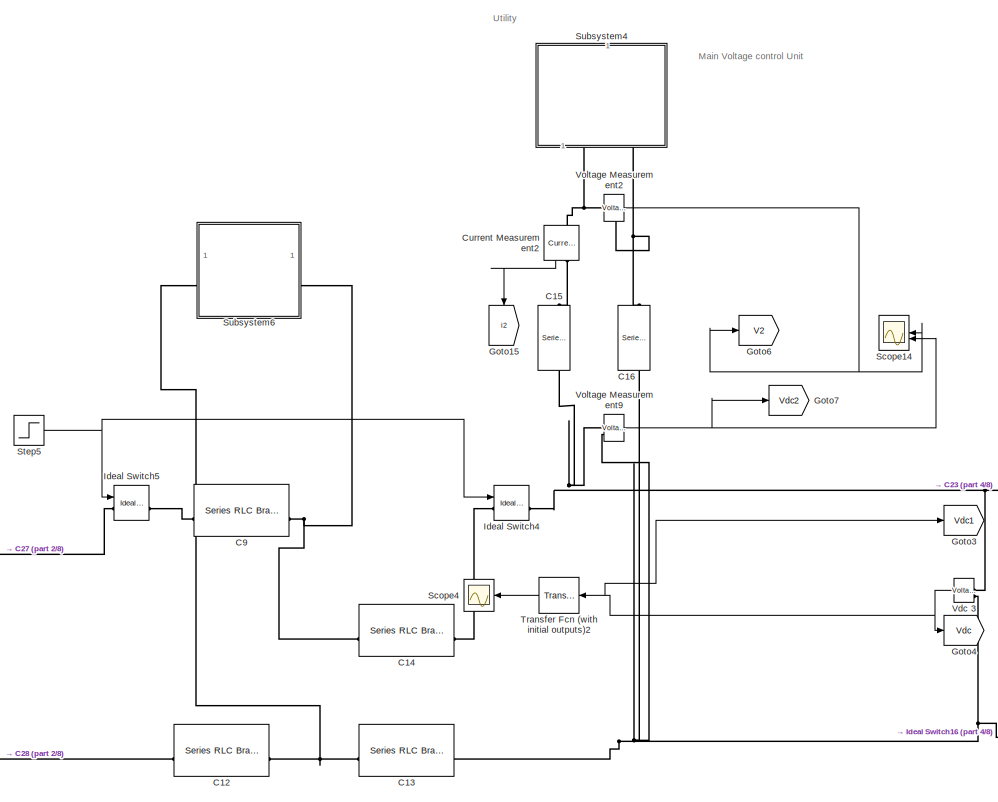
[diagram: root canvas - part 1/8, top center region]
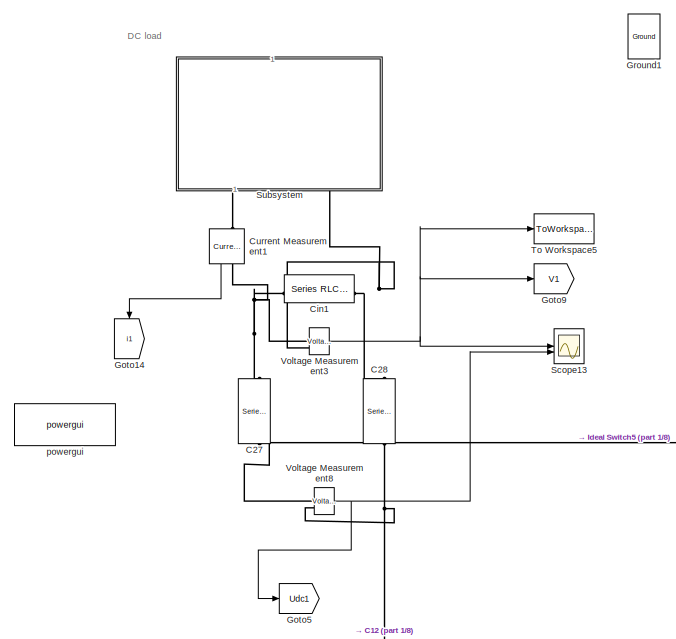
[diagram: root canvas - part 2/8, top center region]
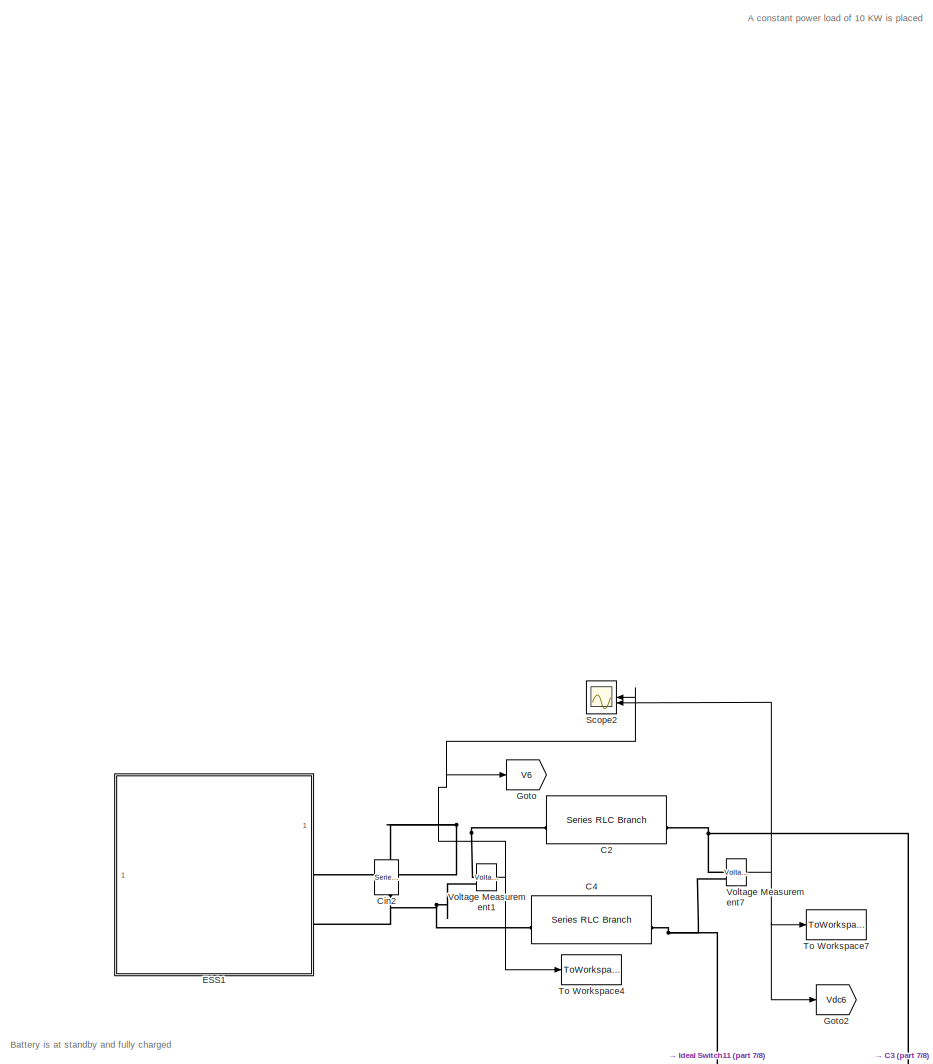
[diagram: root canvas - part 3/8, middle left region]
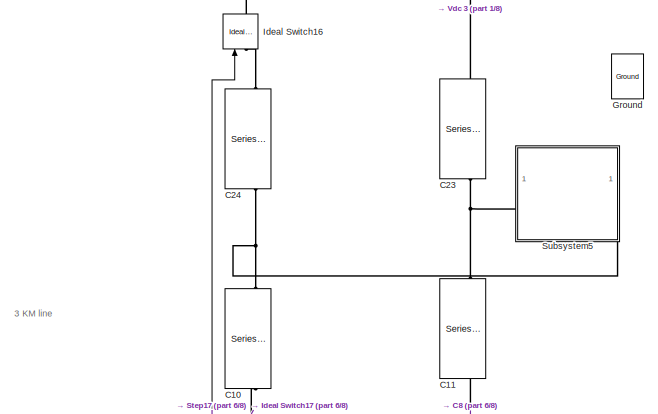
[diagram: root canvas - part 4/8, middle right region]
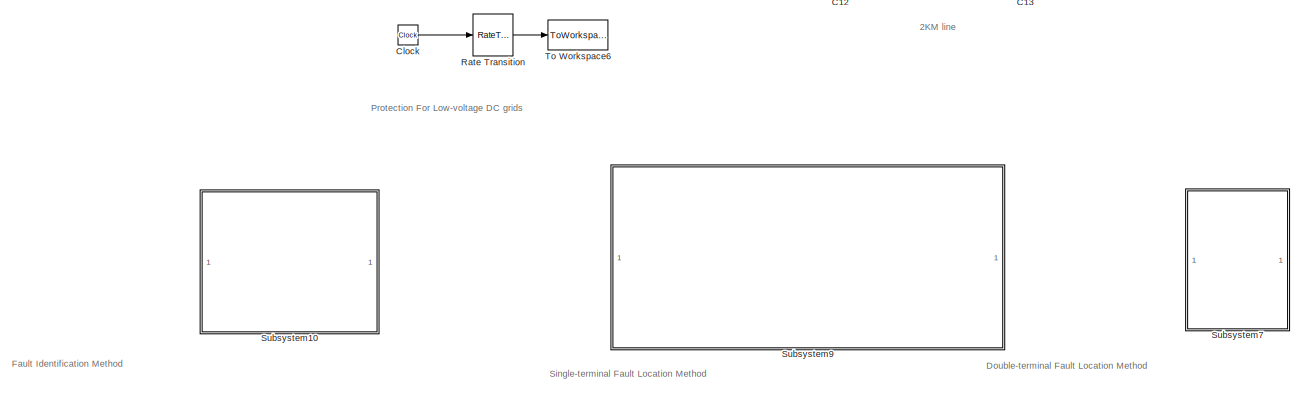
[diagram: root canvas - part 5/8, central region]
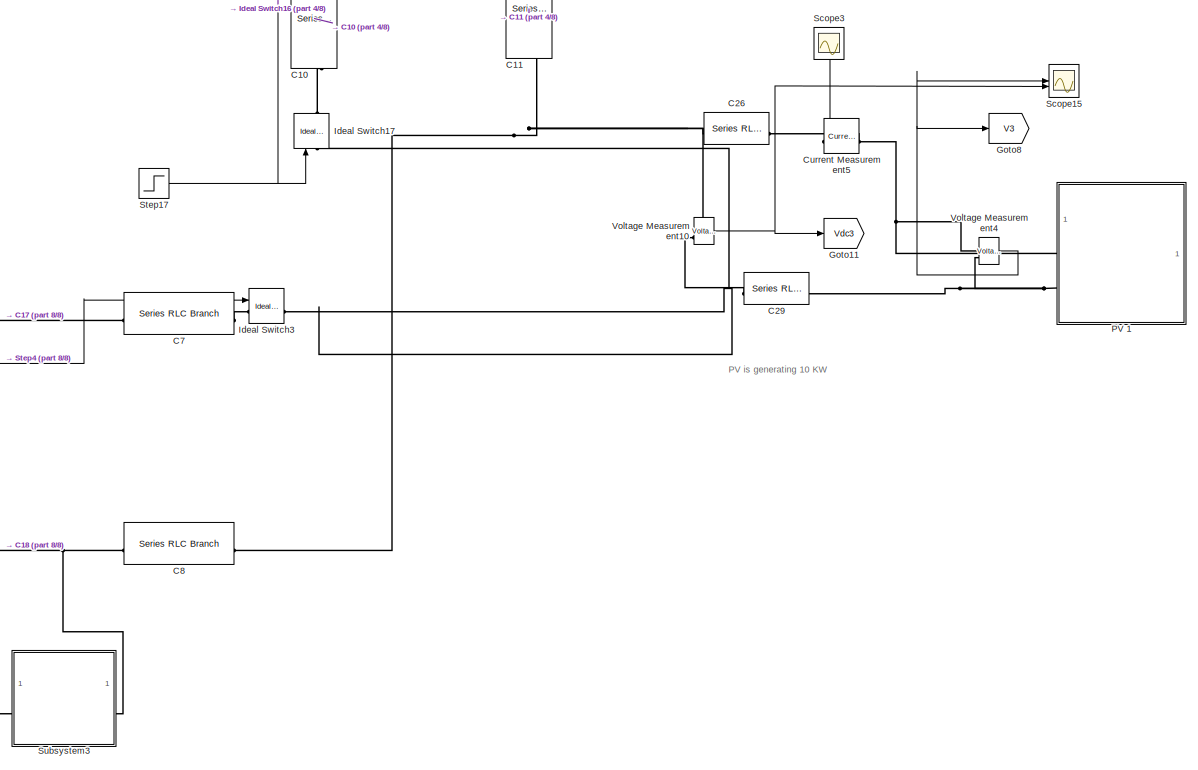
[diagram: root canvas - part 6/8, bottom right region]
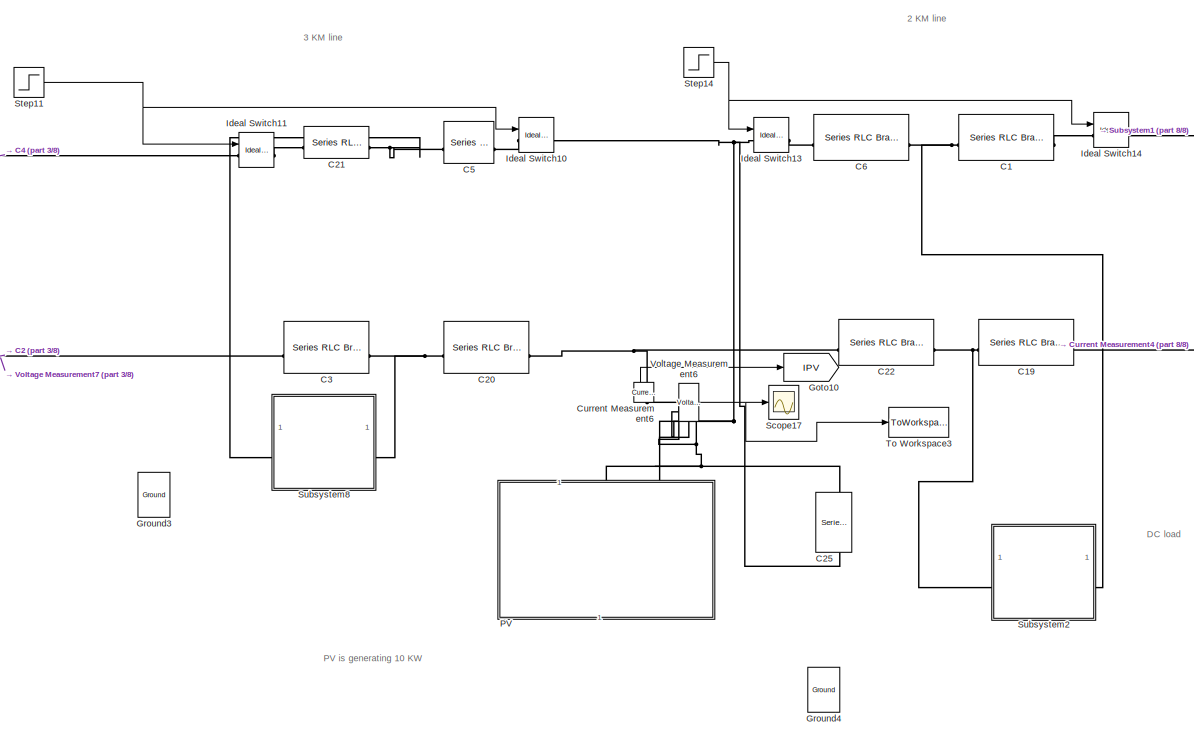
[diagram: root canvas - part 7/8, bottom center region]
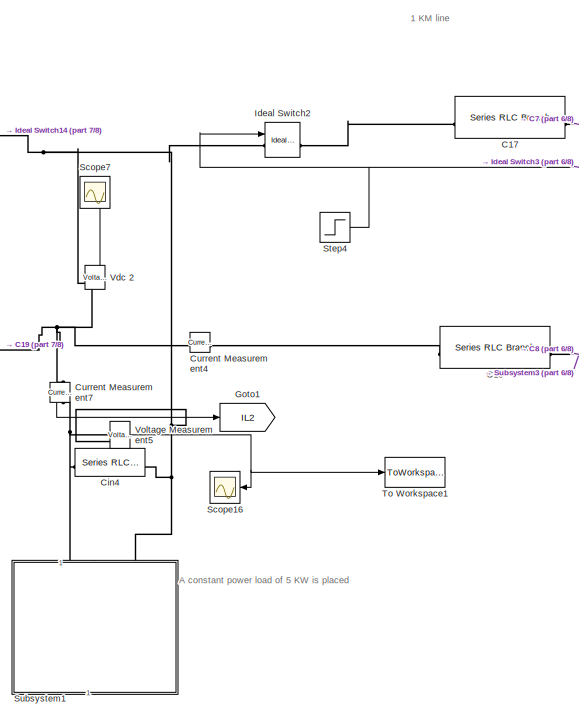
[diagram: root canvas - part 8/8, bottom center region]
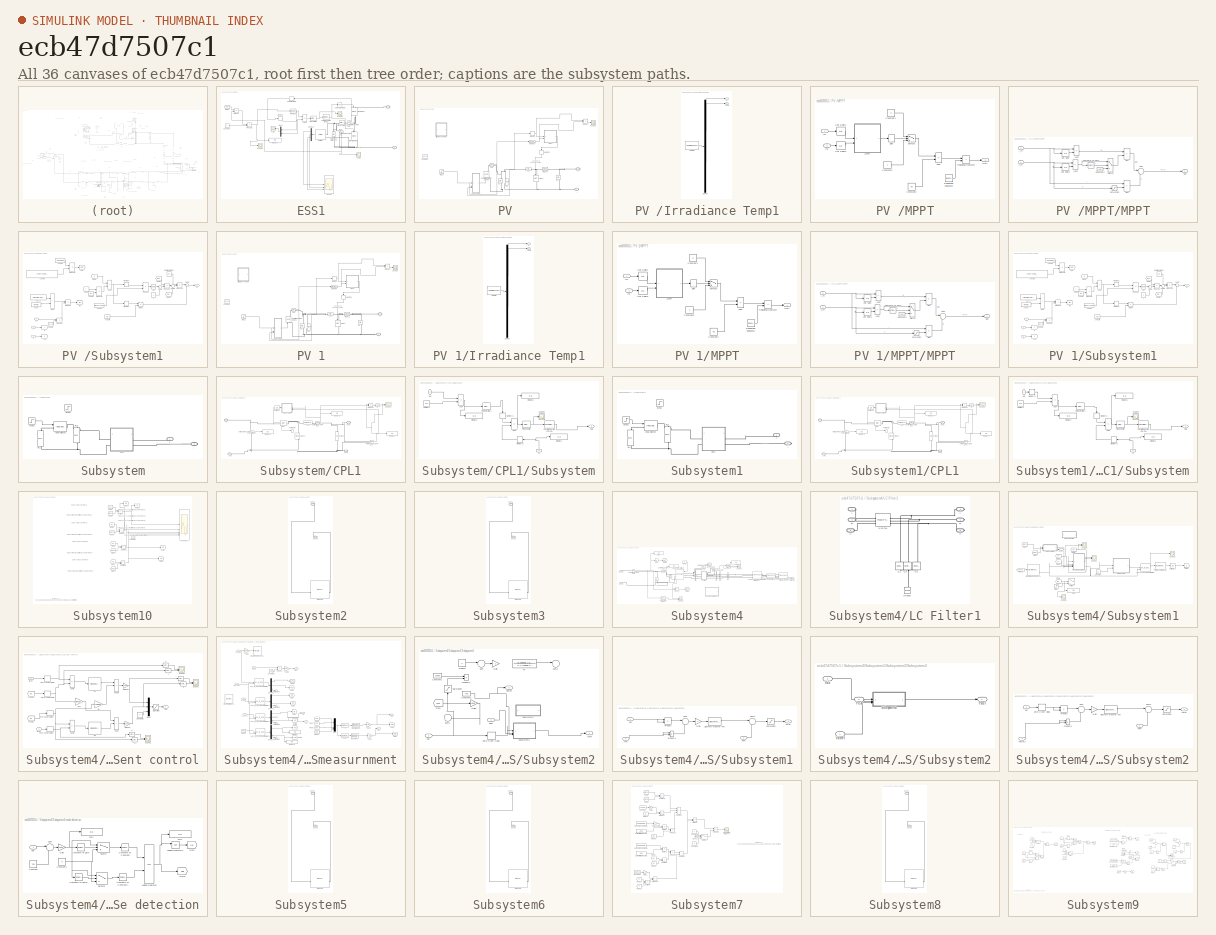
[diagram: thumbnail index - all 36 canvases of the model, root first then tree order]
MODEL slx_ecb47d7507c1
KIND model
CONFIG AbsTol = auto
CONFIG EnableMultiTasking = off
CONFIG FixedStep = auto
CONFIG InitFcn = Ts_Control=100e-6;\nfs=50000;\nTs=1/fs/10;\nTs_Power=Ts;\nTs_control=5*Ts;\nwnom=314.16;\nLf=5e-3;\nRf=0.1;\nCf=50e-6;\n\n\n% choosing crossover frequency \nfc=(1/10)*fs;\nwc=2*pi*fc;\nTi=1/wc; \nKpc=Lf/Ti;\n\nKic=Rf/Ti;\n\nx=[837.555 8.2389 0.057896 268.1361 0.74685 242.918 0.062838 291.0935]\n\n\nKvi=x(1);Kvp=x(2);Kcp=x(3);Kci=x(4);\nKvpb=x(5);Kvib=x(6);Kcpb=x(7);Kcib=x(8);\n\n\nx1=[0.202905850069502  0.158544693742674  ...<+175ch>
CONFIG MaxStep = auto
CONFIG MinStep = auto
CONFIG RelTol = 1e-3
CONFIG SampleTimeConstraint = Unconstrained
CONFIG SolverName = FixedStepAuto
CONFIG StartTime = 0.0
CONFIG StopTime = 6
BLOCK [Reference] C1  REF=spsSeriesRLCBranchLib/Series RLC Branch
  AttributesFormatString = \n
  LibrarySourceBlock = sps_lib/Passives/Series RLC Branch
  NameLocation = top
  SourceBlock = spsSeriesRLCBranchLib/Series RLC Branch
  SourceType = Series RLC Branch
BLOCK [Reference] C10  REF=spsSeriesRLCBranchLib/Series RLC Branch
  AttributesFormatString = \n
  LibrarySourceBlock = sps_lib/Passives/Series RLC Branch
  NameLocation = left
  SourceBlock = spsSeriesRLCBranchLib/Series RLC Branch
  SourceType = Series RLC Branch
BLOCK [Reference] C11  REF=spsSeriesRLCBranchLib/Series RLC Branch
  AttributesFormatString = \n
  LibrarySourceBlock = sps_lib/Passives/Series RLC Branch
  NameLocation = left
  SourceBlock = spsSeriesRLCBranchLib/Series RLC Branch
  SourceType = Series RLC Branch
BLOCK [Reference] C12  REF=spsSeriesRLCBranchLib/Series RLC Branch
  AttributesFormatString = \n
  LibrarySourceBlock = sps_lib/Passives/Series RLC Branch
  NameLocation = top
  SourceBlock = spsSeriesRLCBranchLib/Series RLC Branch
  SourceType = Series RLC Branch
BLOCK [Reference] C13  REF=spsSeriesRLCBranchLib/Series RLC Branch
  AttributesFormatString = \n
  LibrarySourceBlock = sps_lib/Passives/Series RLC Branch
  NameLocation = top
  SourceBlock = spsSeriesRLCBranchLib/Series RLC Branch
  SourceType = Series RLC Branch
BLOCK [Reference] C14  REF=spsSeriesRLCBranchLib/Series RLC Branch
  AttributesFormatString = \n
  LibrarySourceBlock = sps_lib/Passives/Series RLC Branch
  NameLocation = top
  SourceBlock = spsSeriesRLCBranchLib/Series RLC Branch
  SourceType = Series RLC Branch
BLOCK [Reference] C15  REF=spsSeriesRLCBranchLib/Series RLC Branch
  AttributesFormatString = \n
  LibrarySourceBlock = sps_lib/Passives/Series RLC Branch
  NameLocation = right
  SourceBlock = spsSeriesRLCBranchLib/Series RLC Branch
  SourceType = Series RLC Branch
BLOCK [Reference] C16  REF=spsSeriesRLCBranchLib/Series RLC Branch
  AttributesFormatString = \n
  LibrarySourceBlock = sps_lib/Passives/Series RLC Branch
  NameLocation = right
  SourceBlock = spsSeriesRLCBranchLib/Series RLC Branch
  SourceType = Series RLC Branch
BLOCK [Reference] C17  REF=spsSeriesRLCBranchLib/Series RLC Branch
  AttributesFormatString = \n
  LibrarySourceBlock = sps_lib/Passives/Series RLC Branch
  NameLocation = top
  SourceBlock = spsSeriesRLCBranchLib/Series RLC Branch
  SourceType = Series RLC Branch
BLOCK [Reference] C18  REF=spsSeriesRLCBranchLib/Series RLC Branch
  AttributesFormatString = \n
  LibrarySourceBlock = sps_lib/Passives/Series RLC Branch
  NameLocation = top
  SourceBlock = spsSeriesRLCBranchLib/Series RLC Branch
  SourceType = Series RLC Branch
BLOCK [Reference] C19  REF=spsSeriesRLCBranchLib/Series RLC Branch
  AttributesFormatString = \n
  LibrarySourceBlock = sps_lib/Passives/Series RLC Branch
  NameLocation = top
  SourceBlock = spsSeriesRLCBranchLib/Series RLC Branch
  SourceType = Series RLC Branch
BLOCK [Reference] C2  REF=spsSeriesRLCBranchLib/Series RLC Branch
  AttributesFormatString = \n
  LibrarySourceBlock = sps_lib/Passives/Series RLC Branch
  NameLocation = top
  SourceBlock = spsSeriesRLCBranchLib/Series RLC Branch
  SourceType = Series RLC Branch
BLOCK [Reference] C20  REF=spsSeriesRLCBranchLib/Series RLC Branch
  AttributesFormatString = \n
  LibrarySourceBlock = sps_lib/Passives/Series RLC Branch
  NameLocation = top
  SourceBlock = spsSeriesRLCBranchLib/Series RLC Branch
  SourceType = Series RLC Branch
BLOCK [Reference] C21  REF=spsSeriesRLCBranchLib/Series RLC Branch
  AttributesFormatString = \n
  LibrarySourceBlock = sps_lib/Passives/Series RLC Branch
  NameLocation = top
  SourceBlock = spsSeriesRLCBranchLib/Series RLC Branch
  SourceType = Series RLC Branch
BLOCK [Reference] C22  REF=spsSeriesRLCBranchLib/Series RLC Branch
  AttributesFormatString = \n
  LibrarySourceBlock = sps_lib/Passives/Series RLC Branch
  NameLocation = top
  SourceBlock = spsSeriesRLCBranchLib/Series RLC Branch
  SourceType = Series RLC Branch
BLOCK [Reference] C23  REF=spsSeriesRLCBranchLib/Series RLC Branch
  AttributesFormatString = \n
  LibrarySourceBlock = sps_lib/Passives/Series RLC Branch
  NameLocation = left
  SourceBlock = spsSeriesRLCBranchLib/Series RLC Branch
  SourceType = Series RLC Branch
BLOCK [Reference] C24  REF=spsSeriesRLCBranchLib/Series RLC Branch
  AttributesFormatString = \n
  LibrarySourceBlock = sps_lib/Passives/Series RLC Branch
  NameLocation = left
  SourceBlock = spsSeriesRLCBranchLib/Series RLC Branch
  SourceType = Series RLC Branch
BLOCK [Reference] C25  REF=spsSeriesRLCBranchLib/Series RLC Branch
  AttributesFormatString = \n
  LibrarySourceBlock = sps_lib/Passives/Series RLC Branch
  NameLocation = right
  SourceBlock = spsSeriesRLCBranchLib/Series RLC Branch
  SourceType = Series RLC Branch
BLOCK [Reference] C26  REF=spsSeriesRLCBranchLib/Series RLC Branch
  AttributesFormatString = \n
  LibrarySourceBlock = sps_lib/Passives/Series RLC Branch
  NameLocation = top
  SourceBlock = spsSeriesRLCBranchLib/Series RLC Branch
  SourceType = Series RLC Branch
BLOCK [Reference] C27  REF=spsSeriesRLCBranchLib/Series RLC Branch
  AttributesFormatString = \n
  LibrarySourceBlock = sps_lib/Passives/Series RLC Branch
  NameLocation = right
  SourceBlock = spsSeriesRLCBranchLib/Series RLC Branch
  SourceType = Series RLC Branch
BLOCK [Reference] C28  REF=spsSeriesRLCBranchLib/Series RLC Branch
  AttributesFormatString = \n
  LibrarySourceBlock = sps_lib/Passives/Series RLC Branch
  NameLocation = right
  SourceBlock = spsSeriesRLCBranchLib/Series RLC Branch
  SourceType = Series RLC Branch
BLOCK [Reference] C29  REF=spsSeriesRLCBranchLib/Series RLC Branch
  AttributesFormatString = \n
  LibrarySourceBlock = sps_lib/Passives/Series RLC Branch
  NameLocation = top
  SourceBlock = spsSeriesRLCBranchLib/Series RLC Branch
  SourceType = Series RLC Branch
BLOCK [Reference] C3  REF=spsSeriesRLCBranchLib/Series RLC Branch
  AttributesFormatString = \n
  LibrarySourceBlock = sps_lib/Passives/Series RLC Branch
  NameLocation = top
  SourceBlock = spsSeriesRLCBranchLib/Series RLC Branch
  SourceType = Series RLC Branch
BLOCK [Reference] C4  REF=spsSeriesRLCBranchLib/Series RLC Branch
  AttributesFormatString = \n
  LibrarySourceBlock = sps_lib/Passives/Series RLC Branch
  NameLocation = top
  SourceBlock = spsSeriesRLCBranchLib/Series RLC Branch
  SourceType = Series RLC Branch
BLOCK [Reference] C5  REF=spsSeriesRLCBranchLib/Series RLC Branch
  AttributesFormatString = \n
  LibrarySourceBlock = sps_lib/Passives/Series RLC Branch
  NameLocation = top
  SourceBlock = spsSeriesRLCBranchLib/Series RLC Branch
  SourceType = Series RLC Branch
BLOCK [Reference] C6  REF=spsSeriesRLCBranchLib/Series RLC Branch
  AttributesFormatString = \n
  LibrarySourceBlock = sps_lib/Passives/Series RLC Branch
  NameLocation = top
  SourceBlock = spsSeriesRLCBranchLib/Series RLC Branch
  SourceType = Series RLC Branch
BLOCK [Reference] C7  REF=spsSeriesRLCBranchLib/Series RLC Branch
  AttributesFormatString = \n
  LibrarySourceBlock = sps_lib/Passives/Series RLC Branch
  NameLocation = top
  SourceBlock = spsSeriesRLCBranchLib/Series RLC Branch
  SourceType = Series RLC Branch
BLOCK [Reference] C8  REF=spsSeriesRLCBranchLib/Series RLC Branch
  AttributesFormatString = \n
  LibrarySourceBlock = sps_lib/Passives/Series RLC Branch
  NameLocation = top
  SourceBlock = spsSeriesRLCBranchLib/Series RLC Branch
  SourceType = Series RLC Branch
BLOCK [Reference] C9  REF=spsSeriesRLCBranchLib/Series RLC Branch
  AttributesFormatString = \n
  LibrarySourceBlock = sps_lib/Passives/Series RLC Branch
  NameLocation = top
  SourceBlock = spsSeriesRLCBranchLib/Series RLC Branch
  SourceType = Series RLC Branch
BLOCK [Reference] Cin1  REF=spsSeriesRLCBranchLib/Series RLC Branch
  LibrarySourceBlock = sps_lib/Passives/Series RLC Branch
  SourceBlock = spsSeriesRLCBranchLib/Series RLC Branch
  SourceType = Series RLC Branch
BLOCK [Reference] Cin2  REF=spsSeriesRLCBranchLib/Series RLC Branch
  LibrarySourceBlock = sps_lib/Passives/Series RLC Branch
  NameLocation = left
  SourceBlock = spsSeriesRLCBranchLib/Series RLC Branch
  SourceType = Series RLC Branch
BLOCK [Reference] Cin4  REF=spsSeriesRLCBranchLib/Series RLC Branch
  LibrarySourceBlock = sps_lib/Passives/Series RLC Branch
  SourceBlock = spsSeriesRLCBranchLib/Series RLC Branch
  SourceType = Series RLC Branch
BLOCK [Clock] Clock
  Decimation = 6
  DisplayTime = on
BLOCK [Reference] Current Measurement1  REF=spsCurrentMeasurementLib/Current Measurement
  LibrarySourceBlock = sps_lib/Sensors and Measurements/Current Measurement
  NameLocation = left
  SourceBlock = spsCurrentMeasurementLib/Current Measurement
  SourceType = Current Measurement
BLOCK [Reference] Current Measurement2  REF=spsCurrentMeasurementLib/Current Measurement
  LibrarySourceBlock = sps_lib/Sensors and Measurements/Current Measurement
  NameLocation = left
  SourceBlock = spsCurrentMeasurementLib/Current Measurement
  SourceType = Current Measurement
BLOCK [Reference] Current Measurement4  REF=spsCurrentMeasurementLib/Current Measurement
  LibrarySourceBlock = sps_lib/Sensors and Measurements/Current Measurement
  SourceBlock = spsCurrentMeasurementLib/Current Measurement
  SourceType = Current Measurement
BLOCK [Reference] Current Measurement5  REF=spsCurrentMeasurementLib/Current Measurement
  LibrarySourceBlock = sps_lib/Sensors and Measurements/Current Measurement
  NameLocation = top
  SourceBlock = spsCurrentMeasurementLib/Current Measurement
  SourceType = Current Measurement
BLOCK [Reference] Current Measurement6  REF=spsCurrentMeasurementLib/Current Measurement
  LibrarySourceBlock = sps_lib/Sensors and Measurements/Current Measurement
  NameLocation = right
  SourceBlock = spsCurrentMeasurementLib/Current Measurement
  SourceType = Current Measurement
BLOCK [Reference] Current Measurement7  REF=spsCurrentMeasurementLib/Current Measurement
  LibrarySourceBlock = sps_lib/Sensors and Measurements/Current Measurement
  NameLocation = left
  SourceBlock = spsCurrentMeasurementLib/Current Measurement
  SourceType = Current Measurement
BLOCK [SubSystem] ESS1
  NameLocation = top
BLOCK [PMIOPort] ESS1/+
  NameLocation = top
  Side = Right
  Tag = PMCPort
BLOCK [PMIOPort] ESS1/-
  NameLocation = top
  Port = 2
  Side = Right
  Tag = PMCPort
BLOCK [Sum] ESS1/Add3
  IconShape = rectangular
  Inputs = +-
BLOCK [Reference] ESS1/Battery1  REF=spsBatteryLib/Battery
  LibrarySourceBlock = electricdrivelib/Extra Sources/Battery
  SourceBlock = spsBatteryLib/Battery
  SourceType = Battery
BLOCK [Constant] ESS1/Constant
  Value = 0
BLOCK [Reference] ESS1/Current Measurement4  REF=spsCurrentMeasurementLib/Current Measurement
  LibrarySourceBlock = sps_lib/Sensors and Measurements/Current Measurement
  SourceBlock = spsCurrentMeasurementLib/Current Measurement
  SourceType = Current Measurement
BLOCK [Demux] ESS1/Demux2
  NameLocation = top
  Outputs = 3
BLOCK [Display] ESS1/Display2
  Decimation = 1
BLOCK [From] ESS1/From3
  GotoTag = Vob
BLOCK [Reference] ESS1/IGBT//Diode  REF=spsIGBTDiodeLib/IGBT//Diode
  LibrarySourceBlock = sps_lib/Power Electronics/IGBT//Diode
  NameLocation = left
  SourceBlock = spsIGBTDiodeLib/IGBT//Diode
  SourceType = IGBT/Diode
BLOCK [Reference] ESS1/IGBT//Diode1  REF=spsIGBTDiodeLib/IGBT//Diode
  LibrarySourceBlock = sps_lib/Power Electronics/IGBT//Diode
  NameLocation = left
  SourceBlock = spsIGBTDiodeLib/IGBT//Diode
  SourceType = IGBT/Diode
BLOCK [Logic] ESS1/Logical Operator1
  AllPortsSameDT = off
  Operator = NOT
  OutDataTypeStr = boolean
BLOCK [Memory] ESS1/Memory1
BLOCK [Memory] ESS1/Memory2
BLOCK [Mux] ESS1/Mux4
  DisplayOption = bar
  Inputs = 2
  NameLocation = top
BLOCK [Reference] ESS1/PID Controller  REF=slpidlib/PID Controller
  SourceBlock = slpidlib/PID Controller
  SourceType = PID 1dof
BLOCK [Reference] ESS1/PWM Generator (DC-DC)  REF=spsPWMGeneratorDCDCLib/PWM Generator
(DC-DC)
  LibrarySourceBlock = sps_lib/Power Electronics/Power Electronics Control/PWM Generator\n(DC-DC)
  SourceBlock = spsPWMGeneratorDCDCLib/PWM Generator\n(DC-DC)
  SourceType = PWM Generator (DC-DC)
BLOCK [Scope] ESS1/P_B1
  Floating = off
  NameLocation = top
  NumInputPorts = 1
  ScopeSpecificationString = Simulink.scopes.TimeScopeBlockCfg('CurrentConfiguration', extmgr.ConfigurationSet(extmgr.Configuration('Core','General UI',true),extmgr.Configuration('Core','Source UI',true),extmgr.Configuration('Sources','WiredSimulink',true,'DataLoggingDecimation','100','DataLoggingDecimateData',true,'DataLoggingSaveFormat','Array','DataLoggingVariableName','ScopeData5'),extmgr.Configuration('Visuals','Time Dom...<+2211ch>
BLOCK [Scope] ESS1/P_B2
  Floating = off
  NumInputPorts = 1
  ScopeSpecificationString = Simulink.scopes.TimeScopeBlockCfg('CurrentConfiguration', extmgr.ConfigurationSet(extmgr.Configuration('Core','General UI',true),extmgr.Configuration('Core','Source UI',true),extmgr.Configuration('Sources','WiredSimulink',true,'DataLoggingVariableName','ScopeData3'),extmgr.Configuration('Visuals','Time Domain',true,'SerializedDisplays',{struct('MinYLimReal','350.25183','MaxYLimReal','359.93523','Y...<+1464ch>
BLOCK [Product] ESS1/Product
  Inputs = */
BLOCK [Product] ESS1/Product2
  Inputs = **
BLOCK [Scope] ESS1/Scope
  Floating = off
  NumInputPorts = 3
  ScopeSpecificationString = Simulink.scopes.TimeScopeBlockCfg('CurrentConfiguration', extmgr.ConfigurationSet(extmgr.Configuration('Core','General UI',true),extmgr.Configuration('Core','Source UI',true),extmgr.Configuration('Sources','WiredSimulink',true,'DataLoggingVariableName','ScopeData1','DataLoggingSaveFormat','StructureWithTime','DataLoggingDecimation','1','DataLoggingDecimateData',true),extmgr.Configuration('Visuals'...<+2991ch>
BLOCK [Scope] ESS1/Scope2
  Floating = off
  NumInputPorts = 1
  ScopeSpecificationString = Simulink.scopes.TimeScopeBlockCfg('CurrentConfiguration', extmgr.ConfigurationSet(extmgr.Configuration('Core','General UI',true),extmgr.Configuration('Core','Source UI',true),extmgr.Configuration('Sources','WiredSimulink',true,'DataLoggingVariableName','ScopeData2','DataLoggingSaveFormat','Array','DataLoggingDecimation','1','DataLoggingDecimateData',true),extmgr.Configuration('Visuals','Time Domai...<+1537ch>
BLOCK [Scope] ESS1/Scope4
  Floating = off
  NumInputPorts = 1
  ScopeSpecificationString = Simulink.scopes.TimeScopeBlockCfg('CurrentConfiguration', extmgr.ConfigurationSet(extmgr.Configuration('Core','General UI',true),extmgr.Configuration('Core','Source UI',true),extmgr.Configuration('Sources','WiredSimulink',true,'DataLoggingVariableName','ScopeData9','DataLoggingLimitDataPoints',true,'DataLoggingSaveFormat','Array','DataLoggingDecimation','1','DataLoggingDecimateData',true),extmgr.C...<+1521ch>
BLOCK [Reference] ESS1/Series RLC Branch  REF=spsSeriesRLCBranchLib/Series RLC Branch
  LibrarySourceBlock = sps_lib/Passives/Series RLC Branch
  SourceBlock = spsSeriesRLCBranchLib/Series RLC Branch
  SourceType = Series RLC Branch
BLOCK [Reference] ESS1/Series RLC Branch1  REF=spsSeriesRLCBranchLib/Series RLC Branch
  LibrarySourceBlock = sps_lib/Passives/Series RLC Branch
  NameLocation = left
  SourceBlock = spsSeriesRLCBranchLib/Series RLC Branch
  SourceType = Series RLC Branch
BLOCK [Reference] ESS1/Voltage Measurement2  REF=spsVoltageMeasurementLib/Voltage Measurement
  LibrarySourceBlock = sps_lib/Sensors and Measurements/Voltage Measurement
  SourceBlock = spsVoltageMeasurementLib/Voltage Measurement
  SourceType = Voltage Measurement
BLOCK [ZeroOrderHold] ESS1/Zero-Order Hold
  SampleTime = Ts
BLOCK [Goto] Goto
  GotoTag = V6
  TagVisibility = global
BLOCK [Goto] Goto1
  GotoTag = IL2
  NameLocation = top
  TagVisibility = global
BLOCK [Goto] Goto10
  GotoTag = IPV
  NameLocation = top
  TagVisibility = global
BLOCK [Goto] Goto11
  GotoTag = Vdc3
  TagVisibility = global
BLOCK [Goto] Goto14
  GotoTag = i1
  NameLocation = left
  TagVisibility = global
BLOCK [Goto] Goto15
  GotoTag = i2
  NameLocation = left
  TagVisibility = global
BLOCK [Goto] Goto2
  GotoTag = Vdc6
  TagVisibility = global
BLOCK [Goto] Goto3
  GotoTag = Vdc1
  TagVisibility = global
BLOCK [Goto] Goto4
  GotoTag = Vdc
  TagVisibility = global
BLOCK [Goto] Goto5
  GotoTag = Udc1
  TagVisibility = global
BLOCK [Goto] Goto6
  GotoTag = V2
  TagVisibility = global
BLOCK [Goto] Goto7
  GotoTag = Vdc2
  TagVisibility = global
BLOCK [Goto] Goto8
  GotoTag = V3
  TagVisibility = global
BLOCK [Goto] Goto9
  GotoTag = V1
  TagVisibility = global
BLOCK [Reference] Ground  REF=spsGroundLib/Ground
  LibrarySourceBlock = sps_lib/Utilities/Ground
  NameLocation = right
  SourceBlock = spsGroundLib/Ground
  SourceType = Ground
BLOCK [Reference] Ground1  REF=spsGroundLib/Ground
  LibrarySourceBlock = sps_lib/Utilities/Ground
  NameLocation = right
  SourceBlock = spsGroundLib/Ground
  SourceType = Ground
BLOCK [Reference] Ground3  REF=spsGroundLib/Ground
  LibrarySourceBlock = sps_lib/Utilities/Ground
  NameLocation = right
  SourceBlock = spsGroundLib/Ground
  SourceType = Ground
BLOCK [Reference] Ground4  REF=spsGroundLib/Ground
  LibrarySourceBlock = sps_lib/Utilities/Ground
  NameLocation = right
  SourceBlock = spsGroundLib/Ground
  SourceType = Ground
BLOCK [Reference] Ideal Switch10  REF=spsIdealSwitchLib/Ideal Switch
  LibrarySourceBlock = sps_lib/Power Electronics/Ideal Switch
  SourceBlock = spsIdealSwitchLib/Ideal Switch
  SourceType = Ideal Switch
BLOCK [Reference] Ideal Switch11  REF=spsIdealSwitchLib/Ideal Switch
  LibrarySourceBlock = sps_lib/Power Electronics/Ideal Switch
  SourceBlock = spsIdealSwitchLib/Ideal Switch
  SourceType = Ideal Switch
BLOCK [Reference] Ideal Switch13  REF=spsIdealSwitchLib/Ideal Switch
  LibrarySourceBlock = sps_lib/Power Electronics/Ideal Switch
  SourceBlock = spsIdealSwitchLib/Ideal Switch
  SourceType = Ideal Switch
BLOCK [Reference] Ideal Switch14  REF=spsIdealSwitchLib/Ideal Switch
  LibrarySourceBlock = sps_lib/Power Electronics/Ideal Switch
  SourceBlock = spsIdealSwitchLib/Ideal Switch
  SourceType = Ideal Switch
BLOCK [Reference] Ideal Switch16  REF=spsIdealSwitchLib/Ideal Switch
  LibrarySourceBlock = sps_lib/Power Electronics/Ideal Switch
  NameLocation = right
  SourceBlock = spsIdealSwitchLib/Ideal Switch
  SourceType = Ideal Switch
BLOCK [Reference] Ideal Switch17  REF=spsIdealSwitchLib/Ideal Switch
  LibrarySourceBlock = sps_lib/Power Electronics/Ideal Switch
  NameLocation = right
  SourceBlock = spsIdealSwitchLib/Ideal Switch
  SourceType = Ideal Switch
BLOCK [Reference] Ideal Switch2  REF=spsIdealSwitchLib/Ideal Switch
  LibrarySourceBlock = sps_lib/Power Electronics/Ideal Switch
  SourceBlock = spsIdealSwitchLib/Ideal Switch
  SourceType = Ideal Switch
BLOCK [Reference] Ideal Switch3  REF=spsIdealSwitchLib/Ideal Switch
  LibrarySourceBlock = sps_lib/Power Electronics/Ideal Switch
  SourceBlock = spsIdealSwitchLib/Ideal Switch
  SourceType = Ideal Switch
BLOCK [Reference] Ideal Switch4  REF=spsIdealSwitchLib/Ideal Switch
  LibrarySourceBlock = sps_lib/Power Electronics/Ideal Switch
  SourceBlock = spsIdealSwitchLib/Ideal Switch
  SourceType = Ideal Switch
BLOCK [Reference] Ideal Switch5  REF=spsIdealSwitchLib/Ideal Switch
  LibrarySourceBlock = sps_lib/Power Electronics/Ideal Switch
  SourceBlock = spsIdealSwitchLib/Ideal Switch
  SourceType = Ideal Switch
BLOCK [SubSystem] PV 
  NameLocation = right
BLOCK [PMIOPort] PV /+
  NameLocation = top
  Side = Right
  Tag = PMCPort
BLOCK [Reference] PV /C1  REF=spsSeriesRLCBranchLib/Series RLC Branch
  AttributesFormatString = \n
  LibrarySourceBlock = sps_lib/Passives/Series RLC Branch
  NameLocation = left
  SourceBlock = spsSeriesRLCBranchLib/Series RLC Branch
  SourceType = Series RLC Branch
BLOCK [Reference] PV /C3  REF=spsSeriesRLCBranchLib/Series RLC Branch
  AttributesFormatString = \n
  LibrarySourceBlock = sps_lib/Passives/Series RLC Branch
  NameLocation = left
  SourceBlock = spsSeriesRLCBranchLib/Series RLC Branch
  SourceType = Series RLC Branch
BLOCK [Reference] PV /CM2  REF=spsCurrentMeasurementLib/Current Measurement
  AttributesFormatString = \n
  LibrarySourceBlock = sps_lib/Sensors and Measurements/Current Measurement
  SourceBlock = spsCurrentMeasurementLib/Current Measurement
  SourceType = Current Measurement
  Tag = PoWeRsYsTeMmEaSuReMeNt
BLOCK [Constant] PV /Constant
  Value = 1000
BLOCK [Reference] PV /Controlled Current Source  REF=spsControlledCurrentSourceLib/Controlled Current Source
  LibrarySourceBlock = sps_lib/Sources/Controlled Current Source
  NameLocation = right
  SourceBlock = spsControlledCurrentSourceLib/Controlled Current Source
  SourceType = Controlled Current Source
BLOCK [Reference] PV /Diode1  REF=spsDiodeLib/Diode
  LibrarySourceBlock = sps_lib/Power Electronics/Diode
  SourceBlock = spsDiodeLib/Diode
  SourceType = Diode
BLOCK [Reference] PV /IGBT1  REF=spsIGBTLib/IGBT
  LibrarySourceBlock = sps_lib/Power Electronics/IGBT
  NameLocation = left
  SourceBlock = spsIGBTLib/IGBT
  SourceType = IGBT
BLOCK [SubSystem] PV /Irradiance Temp1
  ClipboardFcn = sigbuilder_block('clipboard');
  CloseFcn = sigbuilder_block('close');
  ContinueFcn = sigbuilder_block('continue')
  CopyFcn = sigbuilder_block('copy');
  DeleteFcn = sigbuilder_block('delete');
  LoadFcn = sigbuilder_block('load');
  MaskHideContents = on
  ModelCloseFcn = sigbuilder_block('modelClose');
  NameChangeFcn = sigbuilder_block('namechange');
  OpenFcn = sigbuilder_block('open',[216.75 153.75 550.5 395.25 ]);
  PauseFcn = sigbuilder_block('pause')
  PreSaveFcn = sigbuilder_block('preSave');
  StartFcn = sigbuilder_block('start');
  StopFcn = sigbuilder_block('stop');
  Tag = STV Subsys
BLOCK [Demux] PV /Irradiance Temp1/Demux
  DisplayOption = none
  Outputs = 2
  Tag = STV Demux
BLOCK [FromWorkspace] PV /Irradiance Temp1/FromWs
  Tag = STV FromWs
  VariableName = tuvar
BLOCK [Outport] PV /Irradiance Temp1/Ir
  Tag = STV Outport
BLOCK [Outport] PV /Irradiance Temp1/Temp
  Port = 2
  Tag = STV Outport
BLOCK [Reference] PV /L1  REF=spsSeriesRLCBranchLib/Series RLC Branch
  LibrarySourceBlock = sps_lib/Passives/Series RLC Branch
  SourceBlock = spsSeriesRLCBranchLib/Series RLC Branch
  SourceType = Series RLC Branch
BLOCK [SubSystem] PV /MPPT
BLOCK [Sum] PV /MPPT/Add1
  IconShape = rectangular
  Inputs = -+
BLOCK [Constant] PV /MPPT/Constant1
  Value = 0
BLOCK [Constant] PV /MPPT/Constant2
  Value = 0.5
BLOCK [Constant] PV /MPPT/Constant3
BLOCK [Inport] PV /MPPT/In1
BLOCK [Inport] PV /MPPT/In2
  Port = 2
BLOCK [SubSystem] PV /MPPT/MPPT
BLOCK [Sum] PV /MPPT/MPPT/Add1
  Inputs = |++
BLOCK [Sum] PV /MPPT/MPPT/Add2
  IconShape = rectangular
  Inputs = +-
BLOCK [Sum] PV /MPPT/MPPT/Add3
  IconShape = rectangular
  Inputs = +-
BLOCK [Reference] PV /MPPT/MPPT/Compare To Zero  REF=simulink/Logic and Bit
Operations/Compare
To Zero
  SourceBlock = simulink/Logic and Bit\nOperations/Compare\nTo Zero
  SourceType = Compare To Zero
BLOCK [Constant] PV /MPPT/MPPT/Constant2
  Value = 1e-6
BLOCK [Inport] PV /MPPT/MPPT/I_PV
  Port = 2
BLOCK [Saturate] PV /MPPT/MPPT/Saturation
  LowerLimit = eps
  UpperLimit = inf
BLOCK [Switch] PV /MPPT/MPPT/Switch2
  Criteria = u2 ~= 0
  InputSameDT = off
  SaturateOnIntegerOverflow = off
BLOCK [UnitDelay] PV /MPPT/MPPT/Unit Delay
  HasFrameUpgradeWarning = on
  SampleTime = -1
BLOCK [UnitDelay] PV /MPPT/MPPT/Unit Delay1
  HasFrameUpgradeWarning = on
  SampleTime = -1
BLOCK [Inport] PV /MPPT/MPPT/V_PV
BLOCK [Product] PV /MPPT/MPPT/div1
  Inputs = */
  RndMeth = Zero
BLOCK [Product] PV /MPPT/MPPT/div2
  Inputs = */
  RndMeth = Zero
BLOCK [Outport] PV /MPPT/MPPT/sign
BLOCK [Outport] PV /MPPT/Out1
BLOCK [RelationalOperator] PV /MPPT/Relational Operator
  InputSameDT = off
  Operator = <
  OutDataTypeStr = boolean
BLOCK [Reference] PV /MPPT/Repeating Sequence  REF=simulink/Sources/Repeating
Sequence
  SourceBlock = simulink/Sources/Repeating\nSequence
  SourceType = Repeating table
BLOCK [Signum] PV /MPPT/Sign
BLOCK [Switch] PV /MPPT/Switch2
  Criteria = u2 > Threshold
  InputSameDT = off
  SaturateOnIntegerOverflow = off
BLOCK [UnitDelay] PV /MPPT/Unit Delay1
  HasFrameUpgradeWarning = on
  SampleTime = 2e-6
BLOCK [UnitDelay] PV /MPPT/Unit Delay2
  HasFrameUpgradeWarning = on
  SampleTime = 2e-6
BLOCK [Memory] PV /Memory
  InheritSampleTime = on
BLOCK [Memory] PV /Memory1
  InheritSampleTime = on
  NameLocation = left
BLOCK [Memory] PV /Memory9
  InheritSampleTime = on
BLOCK [Product] PV /Product
BLOCK [Scope] PV /Scope2
  Floating = off
  NumInputPorts = 2
  ScopeSpecificationString = Simulink.scopes.TimeScopeBlockCfg('CurrentConfiguration', extmgr.ConfigurationSet(extmgr.Configuration('Core','General UI',true),extmgr.Configuration('Core','Source UI',true),extmgr.Configuration('Sources','WiredSimulink',true,'DataLoggingVariableName','ScopeData6'),extmgr.Configuration('Visuals','Time Domain',true,'SerializedDisplays',{struct('MinYLimReal','-1284.82318','MaxYLimReal','11563.40865...<+2114ch>
BLOCK [Step] PV /Step1
  After = 1000
  Before = 1000
  SampleTime = 0
  Time = 5
BLOCK [SubSystem] PV /Subsystem1
BLOCK [Constant] PV /Subsystem1/1
BLOCK [Product] PV /Subsystem1/Divide
  Inputs = */
BLOCK [From] PV /Subsystem1/From1
  GotoTag = V
BLOCK [From] PV /Subsystem1/From2
  GotoTag = I
BLOCK [From] PV /Subsystem1/From5
  GotoTag = Ipv
BLOCK [From] PV /Subsystem1/From6
  GotoTag = Isat
BLOCK [Inport] PV /Subsystem1/I
  Port = 2
BLOCK [Goto] PV /Subsystem1/I1
  GotoTag = I
BLOCK [Outport] PV /Subsystem1/I2
BLOCK [Goto] PV /Subsystem1/Ipv
  GotoTag = Ipv
BLOCK [Constant] PV /Subsystem1/Ipv_n
  Value = (Rs+Rp)*Isc_n/Rp
BLOCK [Goto] PV /Subsystem1/Isat
  GotoTag = Isat
BLOCK [Math] PV /Subsystem1/M3
  SignedPower = on
BLOCK [Memory] PV /Subsystem1/Memory1
BLOCK [Memory] PV /Subsystem1/Memory2
BLOCK [Product] PV /Subsystem1/Product1
  RndMeth = Zero
BLOCK [Product] PV /Subsystem1/Product10
  RndMeth = Zero
BLOCK [Product] PV /Subsystem1/Product11
  RndMeth = Zero
BLOCK [Product] PV /Subsystem1/Product2
  RndMeth = Zero
BLOCK [Product] PV /Subsystem1/Product3
  RndMeth = Zero
BLOCK [Product] PV /Subsystem1/Product4
  RndMeth = Zero
BLOCK [Product] PV /Subsystem1/Product5
  RndMeth = Zero
BLOCK [Sum] PV /Subsystem1/Sum
  IconShape = rectangular
BLOCK [Sum] PV /Subsystem1/Sum1
  Inputs = |+-
BLOCK [Sum] PV /Subsystem1/Sum2
  IconShape = rectangular
BLOCK [Sum] PV /Subsystem1/Sum3
  Inputs = |+-
BLOCK [Sum] PV /Subsystem1/Sum5
  Inputs = |-+
BLOCK [Inport] PV /Subsystem1/V
  Port = 3
BLOCK [Goto] PV /Subsystem1/V1
  GotoTag = V
BLOCK [Constant] PV /Subsystem1/const
  Value = Ki*(T-Tr)
BLOCK [Constant] PV /Subsystem1/const2
  Value = Rs
BLOCK [Constant] PV /Subsystem1/const3
  Value = (Tr/T)^3*exp(q*Eg*((1/Tr)-(1/T))/(A*k))
BLOCK [Constant] PV /Subsystem1/const4
  Value = q/(A*k*T*ns)
BLOCK [Constant] PV /Subsystem1/const6
  Value = 2.0793e-6
BLOCK [Constant] PV /Subsystem1/const7
  Value = 1/s_n
BLOCK [Constant] PV /Subsystem1/const8
  Value = Rp
BLOCK [Constant] PV /Subsystem1/parallel cells(np)
  Value = np
BLOCK [Inport] PV /Subsystem1/s
BLOCK [Reference] PV /VM1  REF=spsVoltageMeasurementLib/Voltage Measurement
  AttributesFormatString = \n
  LibrarySourceBlock = sps_lib/Sensors and Measurements/Voltage Measurement
  SourceBlock = spsVoltageMeasurementLib/Voltage Measurement
  SourceType = Voltage Measurement
  Tag = PoWeRsYsTeMmEaSuReMeNt
BLOCK [PMIOPort] PV /_
  NameLocation = top
  Port = 2
  Side = Right
  Tag = PMCPort
BLOCK [SubSystem] PV 1
  NameLocation = top
BLOCK [PMIOPort] PV 1/+
  NameLocation = top
  Side = Right
  Tag = PMCPort
BLOCK [Reference] PV 1/C1  REF=spsSeriesRLCBranchLib/Series RLC Branch
  AttributesFormatString = \n
  LibrarySourceBlock = sps_lib/Passives/Series RLC Branch
  NameLocation = left
  SourceBlock = spsSeriesRLCBranchLib/Series RLC Branch
  SourceType = Series RLC Branch
BLOCK [Reference] PV 1/C3  REF=spsSeriesRLCBranchLib/Series RLC Branch
  AttributesFormatString = \n
  LibrarySourceBlock = sps_lib/Passives/Series RLC Branch
  NameLocation = left
  SourceBlock = spsSeriesRLCBranchLib/Series RLC Branch
  SourceType = Series RLC Branch
BLOCK [Reference] PV 1/CM2  REF=spsCurrentMeasurementLib/Current Measurement
  AttributesFormatString = \n
  LibrarySourceBlock = sps_lib/Sensors and Measurements/Current Measurement
  SourceBlock = spsCurrentMeasurementLib/Current Measurement
  SourceType = Current Measurement
  Tag = PoWeRsYsTeMmEaSuReMeNt
BLOCK [Constant] PV 1/Constant
  Value = 1000
BLOCK [Reference] PV 1/Controlled Current Source  REF=spsControlledCurrentSourceLib/Controlled Current Source
  LibrarySourceBlock = sps_lib/Sources/Controlled Current Source
  NameLocation = right
  SourceBlock = spsControlledCurrentSourceLib/Controlled Current Source
  SourceType = Controlled Current Source
BLOCK [Reference] PV 1/Diode1  REF=spsDiodeLib/Diode
  LibrarySourceBlock = sps_lib/Power Electronics/Diode
  SourceBlock = spsDiodeLib/Diode
  SourceType = Diode
BLOCK [Reference] PV 1/IGBT1  REF=spsIGBTLib/IGBT
  LibrarySourceBlock = sps_lib/Power Electronics/IGBT
  NameLocation = left
  SourceBlock = spsIGBTLib/IGBT
  SourceType = IGBT
BLOCK [SubSystem] PV 1/Irradiance Temp1
  ClipboardFcn = sigbuilder_block('clipboard');
  CloseFcn = sigbuilder_block('close');
  ContinueFcn = sigbuilder_block('continue')
  CopyFcn = sigbuilder_block('copy');
  DeleteFcn = sigbuilder_block('delete');
  LoadFcn = sigbuilder_block('load');
  MaskHideContents = on
  ModelCloseFcn = sigbuilder_block('modelClose');
  NameChangeFcn = sigbuilder_block('namechange');
  OpenFcn = sigbuilder_block('open',[216.75 153.75 550.5 395.25 ]);
  PauseFcn = sigbuilder_block('pause')
  PreSaveFcn = sigbuilder_block('preSave');
  StartFcn = sigbuilder_block('start');
  StopFcn = sigbuilder_block('stop');
  Tag = STV Subsys
BLOCK [Demux] PV 1/Irradiance Temp1/Demux
  DisplayOption = none
  Outputs = 2
  Tag = STV Demux
BLOCK [FromWorkspace] PV 1/Irradiance Temp1/FromWs
  Tag = STV FromWs
  VariableName = tuvar
BLOCK [Outport] PV 1/Irradiance Temp1/Ir
  Tag = STV Outport
BLOCK [Outport] PV 1/Irradiance Temp1/Temp
  Port = 2
  Tag = STV Outport
BLOCK [Reference] PV 1/L1  REF=spsSeriesRLCBranchLib/Series RLC Branch
  LibrarySourceBlock = sps_lib/Passives/Series RLC Branch
  SourceBlock = spsSeriesRLCBranchLib/Series RLC Branch
  SourceType = Series RLC Branch
BLOCK [SubSystem] PV 1/MPPT
BLOCK [Sum] PV 1/MPPT/Add1
  IconShape = rectangular
  Inputs = -+
BLOCK [Constant] PV 1/MPPT/Constant1
  Value = 0
BLOCK [Constant] PV 1/MPPT/Constant2
  Value = 0.5
BLOCK [Constant] PV 1/MPPT/Constant3
BLOCK [Inport] PV 1/MPPT/In1
BLOCK [Inport] PV 1/MPPT/In2
  Port = 2
BLOCK [SubSystem] PV 1/MPPT/MPPT
BLOCK [Sum] PV 1/MPPT/MPPT/Add1
  Inputs = |++
BLOCK [Sum] PV 1/MPPT/MPPT/Add2
  IconShape = rectangular
  Inputs = +-
BLOCK [Sum] PV 1/MPPT/MPPT/Add3
  IconShape = rectangular
  Inputs = +-
BLOCK [Reference] PV 1/MPPT/MPPT/Compare To Zero  REF=simulink/Logic and Bit
Operations/Compare
To Zero
  SourceBlock = simulink/Logic and Bit\nOperations/Compare\nTo Zero
  SourceType = Compare To Zero
BLOCK [Constant] PV 1/MPPT/MPPT/Constant2
  Value = 1e-6
BLOCK [Inport] PV 1/MPPT/MPPT/I_PV
  Port = 2
BLOCK [Saturate] PV 1/MPPT/MPPT/Saturation
  LowerLimit = eps
  UpperLimit = inf
BLOCK [Switch] PV 1/MPPT/MPPT/Switch2
  Criteria = u2 ~= 0
  InputSameDT = off
  SaturateOnIntegerOverflow = off
BLOCK [UnitDelay] PV 1/MPPT/MPPT/Unit Delay
  HasFrameUpgradeWarning = on
  SampleTime = -1
BLOCK [UnitDelay] PV 1/MPPT/MPPT/Unit Delay1
  HasFrameUpgradeWarning = on
  SampleTime = -1
BLOCK [Inport] PV 1/MPPT/MPPT/V_PV
BLOCK [Product] PV 1/MPPT/MPPT/div1
  Inputs = */
  RndMeth = Zero
BLOCK [Product] PV 1/MPPT/MPPT/div2
  Inputs = */
  RndMeth = Zero
BLOCK [Outport] PV 1/MPPT/MPPT/sign
BLOCK [Outport] PV 1/MPPT/Out1
BLOCK [RelationalOperator] PV 1/MPPT/Relational Operator
  InputSameDT = off
  Operator = <
  OutDataTypeStr = boolean
BLOCK [Reference] PV 1/MPPT/Repeating Sequence  REF=simulink/Sources/Repeating
Sequence
  SourceBlock = simulink/Sources/Repeating\nSequence
  SourceType = Repeating table
BLOCK [Signum] PV 1/MPPT/Sign
BLOCK [Switch] PV 1/MPPT/Switch2
  Criteria = u2 > Threshold
  InputSameDT = off
  SaturateOnIntegerOverflow = off
BLOCK [UnitDelay] PV 1/MPPT/Unit Delay1
  HasFrameUpgradeWarning = on
  SampleTime = 2e-6
BLOCK [UnitDelay] PV 1/MPPT/Unit Delay2
  HasFrameUpgradeWarning = on
  SampleTime = 2e-6
BLOCK [Memory] PV 1/Memory
  InheritSampleTime = on
BLOCK [Memory] PV 1/Memory1
  InheritSampleTime = on
  NameLocation = left
BLOCK [Memory] PV 1/Memory9
  InheritSampleTime = on
BLOCK [Product] PV 1/Product
BLOCK [Scope] PV 1/Scope2
  Floating = off
  NumInputPorts = 2
  ScopeSpecificationString = Simulink.scopes.TimeScopeBlockCfg('CurrentConfiguration', extmgr.ConfigurationSet(extmgr.Configuration('Core','General UI',true),extmgr.Configuration('Core','Source UI',true),extmgr.Configuration('Sources','WiredSimulink',true,'DataLoggingVariableName','ScopeData6'),extmgr.Configuration('Visuals','Time Domain',true,'SerializedDisplays',{struct('MinYLimReal','-1284.82318','MaxYLimReal','11563.40865...<+2114ch>
BLOCK [Step] PV 1/Step1
  After = 1000
  Before = 1000
  SampleTime = 0
  Time = 5
BLOCK [SubSystem] PV 1/Subsystem1
BLOCK [Constant] PV 1/Subsystem1/1
BLOCK [Product] PV 1/Subsystem1/Divide
  Inputs = */
BLOCK [From] PV 1/Subsystem1/From1
  GotoTag = V
BLOCK [From] PV 1/Subsystem1/From2
  GotoTag = I
BLOCK [From] PV 1/Subsystem1/From5
  GotoTag = Ipv
BLOCK [From] PV 1/Subsystem1/From6
  GotoTag = Isat
BLOCK [Inport] PV 1/Subsystem1/I
  Port = 2
BLOCK [Goto] PV 1/Subsystem1/I1
  GotoTag = I
BLOCK [Outport] PV 1/Subsystem1/I2
BLOCK [Goto] PV 1/Subsystem1/Ipv
  GotoTag = Ipv
BLOCK [Constant] PV 1/Subsystem1/Ipv_n
  Value = (Rs+Rp)*Isc_n/Rp
BLOCK [Goto] PV 1/Subsystem1/Isat
  GotoTag = Isat
BLOCK [Math] PV 1/Subsystem1/M3
  SignedPower = on
BLOCK [Memory] PV 1/Subsystem1/Memory1
BLOCK [Memory] PV 1/Subsystem1/Memory2
BLOCK [Product] PV 1/Subsystem1/Product1
  RndMeth = Zero
BLOCK [Product] PV 1/Subsystem1/Product10
  RndMeth = Zero
BLOCK [Product] PV 1/Subsystem1/Product11
  RndMeth = Zero
BLOCK [Product] PV 1/Subsystem1/Product2
  RndMeth = Zero
BLOCK [Product] PV 1/Subsystem1/Product3
  RndMeth = Zero
BLOCK [Product] PV 1/Subsystem1/Product4
  RndMeth = Zero
BLOCK [Product] PV 1/Subsystem1/Product5
  RndMeth = Zero
BLOCK [Sum] PV 1/Subsystem1/Sum
  IconShape = rectangular
BLOCK [Sum] PV 1/Subsystem1/Sum1
  Inputs = |+-
BLOCK [Sum] PV 1/Subsystem1/Sum2
  IconShape = rectangular
BLOCK [Sum] PV 1/Subsystem1/Sum3
  Inputs = |+-
BLOCK [Sum] PV 1/Subsystem1/Sum5
  Inputs = |-+
BLOCK [Inport] PV 1/Subsystem1/V
  Port = 3
BLOCK [Goto] PV 1/Subsystem1/V1
  GotoTag = V
BLOCK [Constant] PV 1/Subsystem1/const
  Value = Ki*(T-Tr)
BLOCK [Constant] PV 1/Subsystem1/const2
  Value = Rs
BLOCK [Constant] PV 1/Subsystem1/const3
  Value = (Tr/T)^3*exp(q*Eg*((1/Tr)-(1/T))/(A*k))
BLOCK [Constant] PV 1/Subsystem1/const4
  Value = q/(A*k*T*ns)
BLOCK [Constant] PV 1/Subsystem1/const6
  Value = 2.0793e-6
BLOCK [Constant] PV 1/Subsystem1/const7
  Value = 1/s_n
BLOCK [Constant] PV 1/Subsystem1/const8
  Value = Rp
BLOCK [Constant] PV 1/Subsystem1/parallel cells(np)
  Value = np
BLOCK [Inport] PV 1/Subsystem1/s
BLOCK [Reference] PV 1/VM1  REF=spsVoltageMeasurementLib/Voltage Measurement
  AttributesFormatString = \n
  LibrarySourceBlock = sps_lib/Sensors and Measurements/Voltage Measurement
  SourceBlock = spsVoltageMeasurementLib/Voltage Measurement
  SourceType = Voltage Measurement
  Tag = PoWeRsYsTeMmEaSuReMeNt
BLOCK [PMIOPort] PV 1/_
  NameLocation = top
  Port = 2
  Side = Right
  Tag = PMCPort
BLOCK [RateTransition] Rate Transition
  OutPortSampleTime = Ts
BLOCK [Scope] Scope13
  Floating = off
  NumInputPorts = 2
  ScopeSpecificationString = Simulink.scopes.TimeScopeBlockCfg('CurrentConfiguration', extmgr.ConfigurationSet(extmgr.Configuration('Core','General UI',true),extmgr.Configuration('Core','Source UI',true),extmgr.Configuration('Sources','WiredSimulink',true,'DataLoggingVariableName','ScopeData1'),extmgr.Configuration('Visuals','Time Domain',true,'SerializedDisplays',{struct('MinYLimReal','670.13081','MaxYLimReal','703.3188','YL...<+1564ch>
BLOCK [Scope] Scope14
  Floating = off
  NameLocation = top
  NumInputPorts = 2
  ScopeSpecificationString = Simulink.scopes.TimeScopeBlockCfg('CurrentConfiguration', extmgr.ConfigurationSet(extmgr.Configuration('Core','General UI',true),extmgr.Configuration('Core','Source UI',true),extmgr.Configuration('Sources','WiredSimulink',true,'DataLoggingVariableName','ScopeData2'),extmgr.Configuration('Visuals','Time Domain',true,'SerializedDisplays',{struct('MinYLimReal','-4541.06166','MaxYLimReal','1288.48938'...<+1575ch>
BLOCK [Scope] Scope15
  Floating = off
  NumInputPorts = 2
  ScopeSpecificationString = Simulink.scopes.TimeScopeBlockCfg('CurrentConfiguration', extmgr.ConfigurationSet(extmgr.Configuration('Core','General UI',true),extmgr.Configuration('Core','Source UI',true),extmgr.Configuration('Sources','WiredSimulink',true,'DataLoggingVariableName','ScopeData3'),extmgr.Configuration('Visuals','Time Domain',true,'SerializedDisplays',{struct('MinYLimReal','636.00408','MaxYLimReal','791.28635','Y...<+1515ch>
BLOCK [Scope] Scope16
  Floating = off
  NameLocation = top
  NumInputPorts = 1
  ScopeSpecificationString = Simulink.scopes.TimeScopeBlockCfg('CurrentConfiguration', extmgr.ConfigurationSet(extmgr.Configuration('Core','General UI',true),extmgr.Configuration('Core','Source UI',true),extmgr.Configuration('Sources','WiredSimulink',true,'DataLoggingVariableName','ScopeData4','DataLogging',true,'DataLoggingSaveFormat','Array'),extmgr.Configuration('Visuals','Time Domain',true,'SerializedDisplays',{struct('Mi...<+1518ch>
BLOCK [Scope] Scope17
  Floating = off
  NumInputPorts = 1
  ScopeSpecificationString = Simulink.scopes.TimeScopeBlockCfg('CurrentConfiguration', extmgr.ConfigurationSet(extmgr.Configuration('Core','General UI',true),extmgr.Configuration('Core','Source UI',true),extmgr.Configuration('Sources','WiredSimulink',true,'DataLoggingVariableName','ScopeData5'),extmgr.Configuration('Visuals','Time Domain',true,'SerializedDisplays',{struct('MinYLimReal','682.3658','MaxYLimReal','816.7813','YLa...<+1456ch>
BLOCK [Scope] Scope2
  Floating = off
  NameLocation = top
  NumInputPorts = 2
  ScopeSpecificationString = Simulink.scopes.TimeScopeBlockCfg('CurrentConfiguration', extmgr.ConfigurationSet(extmgr.Configuration('Core','General UI',true),extmgr.Configuration('Core','Source UI',true),extmgr.Configuration('Sources','WiredSimulink',true,'DataLoggingVariableName','ScopeData3','DataLoggingSaveFormat','Array','DataLoggingDecimation','1','DataLoggingDecimateData',true),extmgr.Configuration('Visuals','Time Domai...<+1578ch>
BLOCK [Scope] Scope3
  Floating = off
  NumInputPorts = 1
  ScopeSpecificationString = Simulink.scopes.TimeScopeBlockCfg('CurrentConfiguration', extmgr.ConfigurationSet(extmgr.Configuration('Core','General UI',true),extmgr.Configuration('Core','Source UI',true),extmgr.Configuration('Sources','WiredSimulink',true,'DataLoggingVariableName','ScopeData5'),extmgr.Configuration('Visuals','Time Domain',true,'SerializedDisplays',{struct('MinYLimReal','-12.77172','MaxYLimReal','75.9811','YLa...<+1479ch>
BLOCK [Scope] Scope4
  Floating = off
  NameLocation = top
  NumInputPorts = 1
  ScopeSpecificationString = Simulink.scopes.TimeScopeBlockCfg('CurrentConfiguration', extmgr.ConfigurationSet(extmgr.Configuration('Core','General UI',true),extmgr.Configuration('Core','Source UI',true),extmgr.Configuration('Sources','WiredSimulink',true,'DataLoggingVariableName','ScopeData1','DataLoggingSaveFormat','Array','DataLoggingDecimation','1','DataLoggingDecimateData',true),extmgr.Configuration('Visuals','Time Domai...<+1552ch>
BLOCK [Scope] Scope7
  Floating = off
  NameLocation = top
  NumInputPorts = 1
  ScopeSpecificationString = Simulink.scopes.TimeScopeBlockCfg('CurrentConfiguration', extmgr.ConfigurationSet(extmgr.Configuration('Core','General UI',true),extmgr.Configuration('Core','Source UI',true),extmgr.Configuration('Sources','WiredSimulink',true,'DataLoggingVariableName','Vm','DataLogging',true,'DataLoggingSaveFormat','Array'),extmgr.Configuration('Visuals','Time Domain',true,'SerializedDisplays',{struct('MinYLimRea...<+1515ch>
BLOCK [Step] Step11
  After = 0
  Before = 1
  SampleTime = 0
  Time = 10
BLOCK [Step] Step14
  After = 0
  Before = 1
  SampleTime = 0
  Time = 10
BLOCK [Step] Step17
  After = 0
  Before = 1
  SampleTime = 0
  Time = 1.041
BLOCK [Step] Step4
  Before = 1
  SampleTime = 0
  Time = 10
BLOCK [Step] Step5
  After = 0
  Before = 1
  SampleTime = 0
  Time = 10
BLOCK [SubSystem] Subsystem
  NameLocation = left
BLOCK [PMIOPort] Subsystem/+
  NameLocation = right
  Side = Right
BLOCK [SubSystem] Subsystem/CPL1
  NameLocation = top
BLOCK [PMIOPort] Subsystem/CPL1/+Vin
  Port = 3
  Side = Left
  Tag = PMCPort
BLOCK [Reference] Subsystem/CPL1/2  REF=powerlib_extras/Control 
Blocks/1st-Order 
Filter
  SourceBlock = powerlib_extras/Control \nBlocks/1st-Order \nFilter
  SourceType = First-Order Filter
BLOCK [Reference] Subsystem/CPL1/Current Measurement  REF=spsCurrentMeasurementLib/Current Measurement
  LibrarySourceBlock = sps_lib/Sensors and Measurements/Current Measurement
  SourceBlock = spsCurrentMeasurementLib/Current Measurement
  SourceType = Current Measurement
BLOCK [Reference] Subsystem/CPL1/Diode1  REF=spsDiodeLib/Diode
  LibrarySourceBlock = sps_lib/Power Electronics/Diode
  NameLocation = right
  SourceBlock = spsDiodeLib/Diode
  SourceType = Diode
BLOCK [Display] Subsystem/CPL1/Display2
  Decimation = 1
BLOCK [Display] Subsystem/CPL1/Display3
  Decimation = 1
BLOCK [Display] Subsystem/CPL1/Display4
  Decimation = 1
BLOCK [Reference] Subsystem/CPL1/IGBT  REF=spsIGBTLib/IGBT
  LibrarySourceBlock = sps_lib/Power Electronics/IGBT
  SourceBlock = spsIGBTLib/IGBT
  SourceType = IGBT
BLOCK [Product] Subsystem/CPL1/Product1
  RndMeth = Zero
BLOCK [Reference] Subsystem/CPL1/SLB  REF=spsSeriesRLCBranchLib/Series RLC Branch
  LibrarySourceBlock = sps_lib/Passives/Series RLC Branch
  SourceBlock = spsSeriesRLCBranchLib/Series RLC Branch
  SourceType = Series RLC Branch
BLOCK [Scope] Subsystem/CPL1/Scope2
  Floating = off
  NumInputPorts = 2
  ScopeSpecificationString = Simulink.scopes.TimeScopeBlockCfg('CurrentConfiguration', extmgr.ConfigurationSet(extmgr.Configuration('Core','General UI',true),extmgr.Configuration('Core','Source UI',true),extmgr.Configuration('Sources','WiredSimulink',true,'DataLoggingVariableName','ScopeData2'),extmgr.Configuration('Visuals','Time Domain',true,'SerializedDisplays',{struct('MinYLimReal','226.47175','MaxYLimReal','245.08632','Y...<+2057ch>
BLOCK [SubSystem] Subsystem/CPL1/Subsystem
  NameLocation = top
BLOCK [Sum] Subsystem/CPL1/Subsystem/Add1
  IconShape = rectangular
  Inputs = +-
BLOCK [Sum] Subsystem/CPL1/Subsystem/Add4
  IconShape = rectangular
  Inputs = -+
BLOCK [Display] Subsystem/CPL1/Subsystem/Display1
  Decimation = 1
BLOCK [Display] Subsystem/CPL1/Subsystem/Display2
  Decimation = 1
BLOCK [Display] Subsystem/CPL1/Subsystem/Display5
  Decimation = 1
BLOCK [Inport] Subsystem/CPL1/Subsystem/IL
  NameLocation = right
BLOCK [Memory] Subsystem/CPL1/Subsystem/Memory1
  NameLocation = left
BLOCK [Memory] Subsystem/CPL1/Subsystem/Memory2
  NameLocation = top
BLOCK [Outport] Subsystem/CPL1/Subsystem/Out2
BLOCK [Reference] Subsystem/CPL1/Subsystem/PID Controller  REF=slpidlib/PID Controller
  SourceBlock = slpidlib/PID Controller
  SourceType = PID 1dof
BLOCK [Reference] Subsystem/CPL1/Subsystem/PID Controller1  REF=slpidlib/PID Controller
  SourceBlock = slpidlib/PID Controller
  SourceType = PID 1dof
BLOCK [Reference] Subsystem/CPL1/Subsystem/PWM Generator (DC-DC)  REF=spsPWMGeneratorDCDCLib/PWM Generator
(DC-DC)
  LibrarySourceBlock = sps_lib/Power Electronics/Power Electronics Control/PWM Generator\n(DC-DC)
  SourceBlock = spsPWMGeneratorDCDCLib/PWM Generator\n(DC-DC)
  SourceType = PWM Generator (DC-DC)
BLOCK [Scope] Subsystem/CPL1/Subsystem/Scope4
  Floating = off
  NumInputPorts = 1
  ScopeSpecificationString = Simulink.scopes.TimeScopeBlockCfg('CurrentConfiguration', extmgr.ConfigurationSet(extmgr.Configuration('Core','General UI',true),extmgr.Configuration('Core','Source UI',true),extmgr.Configuration('Sources','WiredSimulink',true,'DataLoggingVariableName','ScopeData11'),extmgr.Configuration('Visuals','Time Domain',true,'SerializedDisplays',{struct('MinYLimReal','-0.125','MaxYLimReal','1.125','YLabelR...<+1460ch>
BLOCK [Inport] Subsystem/CPL1/Subsystem/Vdc
  Port = 2
BLOCK [Constant] Subsystem/CPL1/Subsystem/power3
  Value = 240
BLOCK [Terminator] Subsystem/CPL1/Terminator
BLOCK [UnitDelay] Subsystem/CPL1/Unit Delay
  HasFrameUpgradeWarning = on
  NameLocation = top
  SampleTime = -1
BLOCK [Reference] Subsystem/CPL1/Voltage Measurement  REF=spsVoltageMeasurementLib/Voltage Measurement
  LibrarySourceBlock = sps_lib/Sensors and Measurements/Voltage Measurement
  SourceBlock = spsVoltageMeasurementLib/Voltage Measurement
  SourceType = Voltage Measurement
BLOCK [Reference] Subsystem/CPL1/Voltage Measurement1  REF=spsVoltageMeasurementLib/Voltage Measurement
  LibrarySourceBlock = sps_lib/Sensors and Measurements/Voltage Measurement
  SourceBlock = spsVoltageMeasurementLib/Voltage Measurement
  SourceType = Voltage Measurement
BLOCK [PMIOPort] Subsystem/CPL1/Vout+
  NameLocation = top
  Side = Right
  Tag = PMCPort
BLOCK [PMIOPort] Subsystem/CPL1/Vout_
  NameLocation = top
  Port = 2
  Side = Right
  Tag = PMCPort
BLOCK [PMIOPort] Subsystem/CPL1/_Vin
  Port = 4
  Side = Left
  Tag = PMCPort
BLOCK [Reference] Subsystem/CPL1/dc link1  REF=spsSeriesRLCBranchLib/Series RLC Branch
  LibrarySourceBlock = sps_lib/Passives/Series RLC Branch
  NameLocation = left
  SourceBlock = spsSeriesRLCBranchLib/Series RLC Branch
  SourceType = Series RLC Branch
BLOCK [Reference] Subsystem/Ideal Switch2  REF=spsIdealSwitchLib/Ideal Switch
  LibrarySourceBlock = sps_lib/Power Electronics/Ideal Switch
  SourceBlock = spsIdealSwitchLib/Ideal Switch
  SourceType = Ideal Switch
BLOCK [Reference] Subsystem/RL1  REF=spsSeriesRLCBranchLib/Series RLC Branch
  LibrarySourceBlock = sps_lib/Passives/Series RLC Branch
  NameLocation = left
  SourceBlock = spsSeriesRLCBranchLib/Series RLC Branch
  SourceType = Series RLC Branch
BLOCK [Reference] Subsystem/RL3  REF=spsSeriesRLCBranchLib/Series RLC Branch
  LibrarySourceBlock = sps_lib/Passives/Series RLC Branch
  NameLocation = left
  SourceBlock = spsSeriesRLCBranchLib/Series RLC Branch
  SourceType = Series RLC Branch
BLOCK [Step] Subsystem/Step1
  SampleTime = 0
  Time = 0.5
BLOCK [Step] Subsystem/Step2
  SampleTime = 0
  Time = 20
BLOCK [PMIOPort] Subsystem/_
  Port = 2
  Side = Right
BLOCK [SubSystem] Subsystem1
  NameLocation = right
BLOCK [PMIOPort] Subsystem1/+
  NameLocation = right
  Side = Right
BLOCK [SubSystem] Subsystem1/CPL1
  NameLocation = top
BLOCK [PMIOPort] Subsystem1/CPL1/+Vin
  Port = 3
  Side = Left
  Tag = PMCPort
BLOCK [Reference] Subsystem1/CPL1/2  REF=powerlib_extras/Control 
Blocks/1st-Order 
Filter
  SourceBlock = powerlib_extras/Control \nBlocks/1st-Order \nFilter
  SourceType = First-Order Filter
BLOCK [Reference] Subsystem1/CPL1/Current Measurement  REF=spsCurrentMeasurementLib/Current Measurement
  LibrarySourceBlock = sps_lib/Sensors and Measurements/Current Measurement
  SourceBlock = spsCurrentMeasurementLib/Current Measurement
  SourceType = Current Measurement
BLOCK [Reference] Subsystem1/CPL1/Diode1  REF=spsDiodeLib/Diode
  LibrarySourceBlock = sps_lib/Power Electronics/Diode
  NameLocation = right
  SourceBlock = spsDiodeLib/Diode
  SourceType = Diode
BLOCK [Display] Subsystem1/CPL1/Display2
  Decimation = 1
BLOCK [Display] Subsystem1/CPL1/Display3
  Decimation = 1
BLOCK [Display] Subsystem1/CPL1/Display4
  Decimation = 1
BLOCK [Reference] Subsystem1/CPL1/IGBT  REF=spsIGBTLib/IGBT
  LibrarySourceBlock = sps_lib/Power Electronics/IGBT
  SourceBlock = spsIGBTLib/IGBT
  SourceType = IGBT
BLOCK [Product] Subsystem1/CPL1/Product1
  RndMeth = Zero
BLOCK [Reference] Subsystem1/CPL1/SLB  REF=spsSeriesRLCBranchLib/Series RLC Branch
  LibrarySourceBlock = sps_lib/Passives/Series RLC Branch
  SourceBlock = spsSeriesRLCBranchLib/Series RLC Branch
  SourceType = Series RLC Branch
BLOCK [Scope] Subsystem1/CPL1/Scope2
  Floating = off
  NumInputPorts = 2
  ScopeSpecificationString = Simulink.scopes.TimeScopeBlockCfg('CurrentConfiguration', extmgr.ConfigurationSet(extmgr.Configuration('Core','General UI',true),extmgr.Configuration('Core','Source UI',true),extmgr.Configuration('Sources','WiredSimulink',true,'DataLoggingVariableName','ScopeData2'),extmgr.Configuration('Visuals','Time Domain',true,'SerializedDisplays',{struct('MinYLimReal','126.30619','MaxYLimReal','339.28073','Y...<+2078ch>
BLOCK [SubSystem] Subsystem1/CPL1/Subsystem
  NameLocation = top
BLOCK [Sum] Subsystem1/CPL1/Subsystem/Add1
  IconShape = rectangular
  Inputs = +-
BLOCK [Sum] Subsystem1/CPL1/Subsystem/Add4
  IconShape = rectangular
  Inputs = -+
BLOCK [Display] Subsystem1/CPL1/Subsystem/Display1
  Decimation = 1
BLOCK [Display] Subsystem1/CPL1/Subsystem/Display2
  Decimation = 1
BLOCK [Display] Subsystem1/CPL1/Subsystem/Display5
  Decimation = 1
BLOCK [Inport] Subsystem1/CPL1/Subsystem/IL
  NameLocation = right
BLOCK [Memory] Subsystem1/CPL1/Subsystem/Memory1
  NameLocation = left
BLOCK [Memory] Subsystem1/CPL1/Subsystem/Memory2
  NameLocation = top
BLOCK [Memory] Subsystem1/CPL1/Subsystem/Memory3
  InitialCondition = 240
BLOCK [Outport] Subsystem1/CPL1/Subsystem/Out2
BLOCK [Reference] Subsystem1/CPL1/Subsystem/PID Controller  REF=slpidlib/PID Controller
  SourceBlock = slpidlib/PID Controller
  SourceType = PID 1dof
BLOCK [Reference] Subsystem1/CPL1/Subsystem/PID Controller1  REF=slpidlib/PID Controller
  SourceBlock = slpidlib/PID Controller
  SourceType = PID 1dof
BLOCK [Reference] Subsystem1/CPL1/Subsystem/PWM Generator (DC-DC)  REF=spsPWMGeneratorDCDCLib/PWM Generator
(DC-DC)
  LibrarySourceBlock = sps_lib/Power Electronics/Power Electronics Control/PWM Generator\n(DC-DC)
  SourceBlock = spsPWMGeneratorDCDCLib/PWM Generator\n(DC-DC)
  SourceType = PWM Generator (DC-DC)
BLOCK [Scope] Subsystem1/CPL1/Subsystem/Scope4
  Floating = off
  NumInputPorts = 1
  ScopeSpecificationString = Simulink.scopes.TimeScopeBlockCfg('CurrentConfiguration', extmgr.ConfigurationSet(extmgr.Configuration('Core','General UI',true),extmgr.Configuration('Core','Source UI',true),extmgr.Configuration('Sources','WiredSimulink',true,'DataLoggingVariableName','ScopeData11'),extmgr.Configuration('Visuals','Time Domain',true,'SerializedDisplays',{struct('MinYLimReal','-0.125','MaxYLimReal','1.125','YLabelR...<+1460ch>
BLOCK [Inport] Subsystem1/CPL1/Subsystem/Vdc
  Port = 2
BLOCK [Constant] Subsystem1/CPL1/Subsystem/power3
  Value = 240
BLOCK [Terminator] Subsystem1/CPL1/Terminator
BLOCK [UnitDelay] Subsystem1/CPL1/Unit Delay
  HasFrameUpgradeWarning = on
  NameLocation = top
  SampleTime = -1
BLOCK [Reference] Subsystem1/CPL1/Voltage Measurement  REF=spsVoltageMeasurementLib/Voltage Measurement
  LibrarySourceBlock = sps_lib/Sensors and Measurements/Voltage Measurement
  SourceBlock = spsVoltageMeasurementLib/Voltage Measurement
  SourceType = Voltage Measurement
BLOCK [Reference] Subsystem1/CPL1/Voltage Measurement1  REF=spsVoltageMeasurementLib/Voltage Measurement
  LibrarySourceBlock = sps_lib/Sensors and Measurements/Voltage Measurement
  SourceBlock = spsVoltageMeasurementLib/Voltage Measurement
  SourceType = Voltage Measurement
BLOCK [PMIOPort] Subsystem1/CPL1/Vout+
  NameLocation = top
  Side = Right
  Tag = PMCPort
BLOCK [PMIOPort] Subsystem1/CPL1/Vout_
  NameLocation = top
  Port = 2
  Side = Right
  Tag = PMCPort
BLOCK [PMIOPort] Subsystem1/CPL1/_Vin
  Port = 4
  Side = Left
  Tag = PMCPort
BLOCK [Reference] Subsystem1/CPL1/dc link1  REF=spsSeriesRLCBranchLib/Series RLC Branch
  LibrarySourceBlock = sps_lib/Passives/Series RLC Branch
  NameLocation = left
  SourceBlock = spsSeriesRLCBranchLib/Series RLC Branch
  SourceType = Series RLC Branch
BLOCK [Reference] Subsystem1/Ideal Switch2  REF=spsIdealSwitchLib/Ideal Switch
  LibrarySourceBlock = sps_lib/Power Electronics/Ideal Switch
  SourceBlock = spsIdealSwitchLib/Ideal Switch
  SourceType = Ideal Switch
BLOCK [Reference] Subsystem1/RL1  REF=spsSeriesRLCBranchLib/Series RLC Branch
  LibrarySourceBlock = sps_lib/Passives/Series RLC Branch
  NameLocation = left
  SourceBlock = spsSeriesRLCBranchLib/Series RLC Branch
  SourceType = Series RLC Branch
BLOCK [Reference] Subsystem1/RL3  REF=spsSeriesRLCBranchLib/Series RLC Branch
  LibrarySourceBlock = sps_lib/Passives/Series RLC Branch
  NameLocation = left
  SourceBlock = spsSeriesRLCBranchLib/Series RLC Branch
  SourceType = Series RLC Branch
BLOCK [Step] Subsystem1/Step1
  SampleTime = 0
  Time = 0.5
BLOCK [Step] Subsystem1/Step2
  After = 0
  SampleTime = 0
  Time = 0
BLOCK [PMIOPort] Subsystem1/_
  Port = 2
  Side = Right
BLOCK [SubSystem] Subsystem10
BLOCK [Constant] Subsystem10/Constant
  Value = 300
BLOCK [From] Subsystem10/From
  GotoTag = Vdc6
  TagVisibility = global
BLOCK [From] Subsystem10/From1
  GotoTag = V6
  TagVisibility = global
BLOCK [From] Subsystem10/From2
  GotoTag = Udc1
  TagVisibility = global
BLOCK [From] Subsystem10/From3
  GotoTag = V1
  TagVisibility = global
BLOCK [From] Subsystem10/From4
  GotoTag = Vdc2
  TagVisibility = global
BLOCK [From] Subsystem10/From5
  GotoTag = V2
  TagVisibility = global
BLOCK [From] Subsystem10/From6
  GotoTag = V3
  TagVisibility = global
BLOCK [From] Subsystem10/From7
  GotoTag = Vdc3
  TagVisibility = global
BLOCK [Goto] Subsystem10/Goto1
  GotoTag = U3
  TagVisibility = global
BLOCK [Goto] Subsystem10/Goto12
  GotoTag = U1
  TagVisibility = global
BLOCK [Goto] Subsystem10/Goto13
  GotoTag = U2
  TagVisibility = global
BLOCK [Goto] Subsystem10/Goto2
  GotoTag = U6
  TagVisibility = global
BLOCK [Scope] Subsystem10/Scope1
  Floating = off
  NumInputPorts = 5
  ScopeSpecificationString = Simulink.scopes.TimeScopeBlockCfg('CurrentConfiguration', extmgr.ConfigurationSet(extmgr.Configuration('Core','General UI',true),extmgr.Configuration('Core','Source UI',true),extmgr.Configuration('Sources','WiredSimulink',true,'DataLoggingVariableName','ScopeData1'),extmgr.Configuration('Visuals','Time Domain',true,'SerializedDisplays',{struct('MinYLimReal','-922.51099','MaxYLimReal','1075.47891',...<+1531ch>
BLOCK [Sum] Subsystem10/Subtract
  IconShape = rectangular
  Inputs = +-
BLOCK [Sum] Subsystem10/Subtract1
  IconShape = rectangular
  Inputs = +-
BLOCK [Sum] Subsystem10/Subtract2
  IconShape = rectangular
  Inputs = +-
BLOCK [Sum] Subsystem10/Subtract3
  IconShape = rectangular
  Inputs = +-
BLOCK [SubSystem] Subsystem2
  Commented = on
BLOCK [Reference] Subsystem2/Breaker2  REF=spsBreakerLib/Breaker
  LibrarySourceBlock = sps_lib/Power Grid Elements/Breaker
  SourceBlock = spsBreakerLib/Breaker
  SourceType = Breaker
BLOCK [PMIOPort] Subsystem2/Conn1
  NameLocation = right
  Side = Right
BLOCK [PMIOPort] Subsystem2/Conn2
  NameLocation = right
  Port = 2
  Side = Left
BLOCK [SubSystem] Subsystem3
  Commented = on
BLOCK [Reference] Subsystem3/Breaker2  REF=spsBreakerLib/Breaker
  LibrarySourceBlock = sps_lib/Power Grid Elements/Breaker
  SourceBlock = spsBreakerLib/Breaker
  SourceType = Breaker
BLOCK [PMIOPort] Subsystem3/Conn1
  NameLocation = right
  Side = Right
BLOCK [PMIOPort] Subsystem3/Conn2
  NameLocation = right
  Port = 2
  Side = Left
BLOCK [SubSystem] Subsystem4
  NameLocation = right
BLOCK [Abs] Subsystem4/Abs
  SaturateOnIntegerOverflow = off
BLOCK [Reference] Subsystem4/Analog Filter Design  REF=dspfdesign/Analog
Filter Design
  SourceBlock = dspfdesign/Analog\nFilter Design
  SourceType = Analog Filter Design
BLOCK [Reference] Subsystem4/B3  REF=spsThreePhaseVIMeasurementLib/Three-Phase
V-I Measurement
  LibrarySourceBlock = sps_lib/Sensors and Measurements/Three-Phase\nV-I Measurement
  SourceBlock = spsThreePhaseVIMeasurementLib/Three-Phase\nV-I Measurement
  SourceType = Three-Phase VI Measurement
BLOCK [Reference] Subsystem4/B4  REF=spsThreePhaseVIMeasurementLib/Three-Phase
V-I Measurement
  LibrarySourceBlock = sps_lib/Sensors and Measurements/Three-Phase\nV-I Measurement
  SourceBlock = spsThreePhaseVIMeasurementLib/Three-Phase\nV-I Measurement
  SourceType = Three-Phase VI Measurement
BLOCK [Reference] Subsystem4/B5  REF=spsThreePhaseVIMeasurementLib/Three-Phase
V-I Measurement
  LibrarySourceBlock = sps_lib/Sensors and Measurements/Three-Phase\nV-I Measurement
  SourceBlock = spsThreePhaseVIMeasurementLib/Three-Phase\nV-I Measurement
  SourceType = Three-Phase VI Measurement
BLOCK [Reference] Subsystem4/B6  REF=spsThreePhaseVIMeasurementLib/Three-Phase
V-I Measurement
  LibrarySourceBlock = sps_lib/Sensors and Measurements/Three-Phase\nV-I Measurement
  SourceBlock = spsThreePhaseVIMeasurementLib/Three-Phase\nV-I Measurement
  SourceType = Three-Phase VI Measurement
BLOCK [Reference] Subsystem4/C1  REF=spsSeriesRLCBranchLib/Series RLC Branch
  AttributesFormatString = \n
  LibrarySourceBlock = sps_lib/Passives/Series RLC Branch
  NameLocation = left
  SourceBlock = spsSeriesRLCBranchLib/Series RLC Branch
  SourceType = Series RLC Branch
BLOCK [PMIOPort] Subsystem4/Conn1
  Side = Left
BLOCK [PMIOPort] Subsystem4/Conn2
  Port = 2
  Side = Left
BLOCK [Reference] Subsystem4/Current Measurement1  REF=spsCurrentMeasurementLib/Current Measurement
  LibrarySourceBlock = sps_lib/Sensors and Measurements/Current Measurement
  SourceBlock = spsCurrentMeasurementLib/Current Measurement
  SourceType = Current Measurement
BLOCK [Reference] Subsystem4/Current Measurement2  REF=spsCurrentMeasurementLib/Current Measurement
  LibrarySourceBlock = sps_lib/Sensors and Measurements/Current Measurement
  SourceBlock = spsCurrentMeasurementLib/Current Measurement
  SourceType = Current Measurement
BLOCK [From] Subsystem4/From1
  GotoTag = g
  TagVisibility = global
BLOCK [Goto] Subsystem4/Goto1
  GotoTag = Iext
  TagVisibility = global
BLOCK [Goto] Subsystem4/Goto2
  GotoTag = Pext
  TagVisibility = global
BLOCK [Reference] Subsystem4/Ground1  REF=spsGroundLib/Ground
  LibrarySourceBlock = sps_lib/Utilities/Ground
  NameLocation = right
  SourceBlock = spsGroundLib/Ground
  SourceType = Ground
BLOCK [SubSystem] Subsystem4/LC Filter1
BLOCK [Reference] Subsystem4/LC Filter1/0.15 mH   REF=spsThreePhaseSeriesRLCBranchLib/Three-Phase
Series RLC Branch
  AttributesFormatString = \n
  LibrarySourceBlock = sps_lib/Passives/Three-Phase\nSeries RLC Branch
  SourceBlock = spsThreePhaseSeriesRLCBranchLib/Three-Phase\nSeries RLC Branch
  SourceType = Three-Phase Series RLC Branch
BLOCK [PMIOPort] Subsystem4/LC Filter1/A
  Side = Left
BLOCK [PMIOPort] Subsystem4/LC Filter1/A 
  Port = 4
  Side = Right
BLOCK [PMIOPort] Subsystem4/LC Filter1/B
  Port = 2
  Side = Left
BLOCK [PMIOPort] Subsystem4/LC Filter1/B 
  Port = 5
  Side = Right
BLOCK [PMIOPort] Subsystem4/LC Filter1/C
  Port = 3
  Side = Left
BLOCK [PMIOPort] Subsystem4/LC Filter1/C 
  Port = 6
  Side = Right
BLOCK [Reference] Subsystem4/LC Filter1/C1  REF=spsSeriesRLCBranchLib/Series RLC Branch
  AttributesFormatString = \n
  LibrarySourceBlock = sps_lib/Passives/Series RLC Branch
  NameLocation = left
  SourceBlock = spsSeriesRLCBranchLib/Series RLC Branch
  SourceType = Series RLC Branch
BLOCK [Reference] Subsystem4/LC Filter1/C2  REF=spsSeriesRLCBranchLib/Series RLC Branch
  AttributesFormatString = \n
  LibrarySourceBlock = sps_lib/Passives/Series RLC Branch
  NameLocation = left
  SourceBlock = spsSeriesRLCBranchLib/Series RLC Branch
  SourceType = Series RLC Branch
BLOCK [Reference] Subsystem4/LC Filter1/C3  REF=spsSeriesRLCBranchLib/Series RLC Branch
  AttributesFormatString = \n
  LibrarySourceBlock = sps_lib/Passives/Series RLC Branch
  NameLocation = left
  SourceBlock = spsSeriesRLCBranchLib/Series RLC Branch
  SourceType = Series RLC Branch
BLOCK [Reference] Subsystem4/LC Filter1/Ground  REF=spsGroundLib/Ground
  LibrarySourceBlock = sps_lib/Utilities/Ground
  NameLocation = right
  SourceBlock = spsGroundLib/Ground
  SourceType = Ground
BLOCK [Display] Subsystem4/Pm1
  Decimation = 1
BLOCK [Display] Subsystem4/Pm2
  Decimation = 1
BLOCK [Display] Subsystem4/Pm3
  Decimation = 1
BLOCK [Product] Subsystem4/Product
BLOCK [Reference] Subsystem4/RMS2  REF=powerlib_extras/Measurements/RMS
  SourceBlock = powerlib_extras/Measurements/RMS
  SourceType = RMS
BLOCK [Scope] Subsystem4/Scope1
  Floating = off
  NumInputPorts = 2
  ScopeSpecificationString = Simulink.scopes.TimeScopeBlockCfg('CurrentConfiguration', extmgr.ConfigurationSet(extmgr.Configuration('Core','General UI',true),extmgr.Configuration('Core','Source UI',true),extmgr.Configuration('Sources','WiredSimulink',true,'DataLoggingVariableName','ScopeData1'),extmgr.Configuration('Visuals','Time Domain',true,'SerializedDisplays',{struct('MinYLimReal','694.47653','MaxYLimReal','703.5999','YL...<+2129ch>
BLOCK [Scope] Subsystem4/Scope3
  Floating = off
  NumInputPorts = 2
  ScopeSpecificationString = Simulink.scopes.TimeScopeBlockCfg('CurrentConfiguration', extmgr.ConfigurationSet(extmgr.Configuration('Core','General UI',true),extmgr.Configuration('Core','Source UI',true),extmgr.Configuration('Sources','WiredSimulink',true,'DataLoggingVariableName','ScopeData4'),extmgr.Configuration('Visuals','Time Domain',true,'SerializedDisplays',{struct('MinYLimReal','-907.65548','MaxYLimReal','924.29563','...<+1430ch>
BLOCK [Scope] Subsystem4/Scope7
  Floating = off
  NumInputPorts = 2
  ScopeSpecificationString = Simulink.scopes.TimeScopeBlockCfg('CurrentConfiguration', extmgr.ConfigurationSet(extmgr.Configuration('Core','General UI',true),extmgr.Configuration('Core','Source UI',true),extmgr.Configuration('Sources','WiredSimulink',true,'DataLoggingVariableName','ScopeData5'),extmgr.Configuration('Visuals','Time Domain',true,'SerializedDisplays',{struct('MinYLimReal','-56.69066','MaxYLimReal','510.21594','Y...<+2104ch>
BLOCK [Reference] Subsystem4/Source impedance 100 MVA short circuit level  REF=spsThreePhaseSeriesRLCBranchLib/Three-Phase
Series RLC Branch
  AttributesFormatString = \n
  LibrarySourceBlock = sps_lib/Passives/Three-Phase\nSeries RLC Branch
  SourceBlock = spsThreePhaseSeriesRLCBranchLib/Three-Phase\nSeries RLC Branch
  SourceType = Three-Phase Series RLC Branch
BLOCK [SubSystem] Subsystem4/Subsystem1
BLOCK [Constant] Subsystem4/Subsystem1/Constant
  Value = 12
BLOCK [SubSystem] Subsystem4/Subsystem1/Current control
BLOCK [Reference] Subsystem4/Subsystem1/Current control/1  REF=powerlib_extras/Control 
Blocks/1st-Order 
Filter
  SourceBlock = powerlib_extras/Control \nBlocks/1st-Order \nFilter
  SourceType = First-Order Filter
BLOCK [Gain] Subsystem4/Subsystem1/Current control/1//Base1
  Gain = 2/700
BLOCK [Gain] Subsystem4/Subsystem1/Current control/1//Base2
  Gain = 2/700
BLOCK [Reference] Subsystem4/Subsystem1/Current control/2  REF=powerlib_extras/Control 
Blocks/1st-Order 
Filter
  SourceBlock = powerlib_extras/Control \nBlocks/1st-Order \nFilter
  SourceType = First-Order Filter
BLOCK [Reference] Subsystem4/Subsystem1/Current control/3  REF=powerlib_extras/Control 
Blocks/1st-Order 
Filter
  SourceBlock = powerlib_extras/Control \nBlocks/1st-Order \nFilter
  SourceType = First-Order Filter
BLOCK [Reference] Subsystem4/Subsystem1/Current control/4  REF=powerlib_extras/Control 
Blocks/1st-Order 
Filter
  SourceBlock = powerlib_extras/Control \nBlocks/1st-Order \nFilter
  SourceType = First-Order Filter
BLOCK [Reference] Subsystem4/Subsystem1/Current control/5  REF=powerlib_extras/Control 
Blocks/1st-Order 
Filter
  SourceBlock = powerlib_extras/Control \nBlocks/1st-Order \nFilter
  SourceType = First-Order Filter
BLOCK [Reference] Subsystem4/Subsystem1/Current control/6  REF=powerlib_extras/Control 
Blocks/1st-Order 
Filter
  SourceBlock = powerlib_extras/Control \nBlocks/1st-Order \nFilter
  SourceType = First-Order Filter
BLOCK [Constant] Subsystem4/Subsystem1/Current control/Constant2
  Value = 0
BLOCK [From] Subsystem4/Subsystem1/Current control/From1
  GotoTag = Ilq
  TagVisibility = global
BLOCK [From] Subsystem4/Subsystem1/Current control/From11
  GotoTag = Ild
  TagVisibility = global
BLOCK [Inport] Subsystem4/Subsystem1/Current control/Idref
BLOCK [Inport] Subsystem4/Subsystem1/Current control/Iqref
  Port = 2
BLOCK [Mux] Subsystem4/Subsystem1/Current control/Mux3
  DisplayOption = bar
  Inputs = 3
BLOCK [Reference] Subsystem4/Subsystem1/Current control/PI1  REF=slpidlib/PID Controller
  SourceBlock = slpidlib/PID Controller
  SourceType = PID 1dof
BLOCK [Reference] Subsystem4/Subsystem1/Current control/PI2  REF=slpidlib/PID Controller
  SourceBlock = slpidlib/PID Controller
  SourceType = PID 1dof
BLOCK [Saturate] Subsystem4/Subsystem1/Current control/Saturation
  LowerLimit = -1
  UpperLimit = 1
BLOCK [Scope] Subsystem4/Subsystem1/Current control/Scope1
  Floating = off
  NumInputPorts = 2
  ScopeSpecificationString = Simulink.scopes.TimeScopeBlockCfg('CurrentConfiguration', extmgr.ConfigurationSet(extmgr.Configuration('Core','General UI',true),extmgr.Configuration('Core','Source UI',true),extmgr.Configuration('Sources','WiredSimulink',true,'DataLoggingVariableName','ScopeData6'),extmgr.Configuration('Visuals','Time Domain',true,'SerializedDisplays',{struct('MinYLimReal','-0.15455','MaxYLimReal','1.28642','YLab...<+2119ch>
BLOCK [Scope] Subsystem4/Subsystem1/Current control/Scope2
  Floating = off
  NumInputPorts = 2
  ScopeSpecificationString = Simulink.scopes.TimeScopeBlockCfg('CurrentConfiguration', extmgr.ConfigurationSet(extmgr.Configuration('Core','General UI',true),extmgr.Configuration('Core','Source UI',true),extmgr.Configuration('Sources','WiredSimulink',true,'DataLoggingVariableName','ScopeData1'),extmgr.Configuration('Visuals','Time Domain',true,'SerializedDisplays',{struct('MinYLimReal','5.86793','MaxYLimReal','15.52474','YLab...<+2167ch>
BLOCK [Scope] Subsystem4/Subsystem1/Current control/Scope5
  Floating = off
  NumInputPorts = 2
  ScopeSpecificationString = Simulink.scopes.TimeScopeBlockCfg('CurrentConfiguration', extmgr.ConfigurationSet(extmgr.Configuration('Core','General UI',true),extmgr.Configuration('Core','Source UI',true),extmgr.Configuration('Sources','WiredSimulink',true,'DataLoggingVariableName','ScopeData8'),extmgr.Configuration('Visuals','Time Domain',true,'SerializedDisplays',{struct('MinYLimReal','-6.28148','MaxYLimReal','28.29149','YLa...<+2103ch>
BLOCK [Sum] Subsystem4/Subsystem1/Current control/Sum1
  IconShape = rectangular
  Inputs = +++
BLOCK [Sum] Subsystem4/Subsystem1/Current control/Sum10
  IconShape = rectangular
  Inputs = +++
BLOCK [Sum] Subsystem4/Subsystem1/Current control/Sum8
  IconShape = rectangular
  Inputs = +-
BLOCK [Sum] Subsystem4/Subsystem1/Current control/Sum9
  IconShape = rectangular
  Inputs = -+
BLOCK [Outport] Subsystem4/Subsystem1/Current control/Vdq
BLOCK [ZeroOrderHold] Subsystem4/Subsystem1/Current control/Zero-Order Hold
  SampleTime = Ts
BLOCK [ZeroOrderHold] Subsystem4/Subsystem1/Current control/Zero-Order Hold1
  SampleTime = Ts
BLOCK [ZeroOrderHold] Subsystem4/Subsystem1/Current control/Zero-Order Hold2
  SampleTime = Ts
BLOCK [ZeroOrderHold] Subsystem4/Subsystem1/Current control/Zero-Order Hold3
  SampleTime = Ts
BLOCK [Gain] Subsystem4/Subsystem1/Current control/wL
  Gain = -1*wnom*Lf
BLOCK [Gain] Subsystem4/Subsystem1/Current control/wL1
  Gain = 1*wnom*Lf
BLOCK [Reference] Subsystem4/Subsystem1/Discrete 3-phase PLL1  REF=powerlib_extras/Discrete 
Control Blocks/Discrete
3-phase PLL
  SourceBlock = powerlib_extras/Discrete \nControl Blocks/Discrete\n3-phase PLL
  SourceType = Discrete 3-phase PLL
BLOCK [From] Subsystem4/Subsystem1/From1
  GotoTag = Inv
  TagVisibility = global
BLOCK [From] Subsystem4/Subsystem1/From18
  CloseFcn = tagdialog Close
  GotoTag = Vabcg
  TagVisibility = global
BLOCK [From] Subsystem4/Subsystem1/From2
  GotoTag = Vo
  TagVisibility = global
BLOCK [From] Subsystem4/Subsystem1/From3
  GotoTag = IL
  TagVisibility = global
BLOCK [From] Subsystem4/Subsystem1/From4
  GotoTag = Vdc1
  TagVisibility = global
BLOCK [From] Subsystem4/Subsystem1/From5
  GotoTag = Pext
  TagVisibility = global
BLOCK [From] Subsystem4/Subsystem1/From6
  GotoTag = Io
  TagVisibility = global
BLOCK [Goto] Subsystem4/Subsystem1/Goto1
  GotoTag = g
  TagVisibility = global
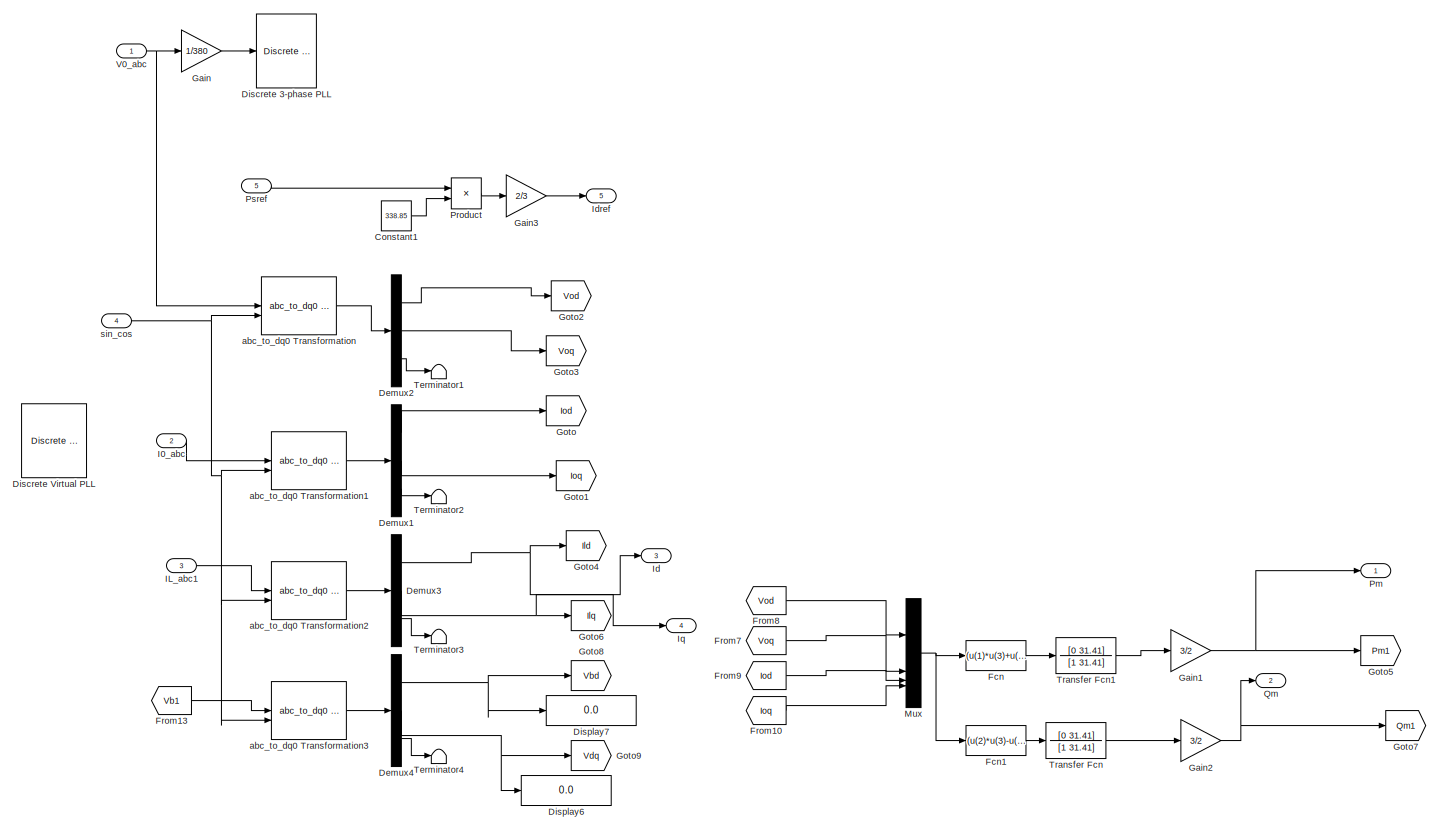
[diagram: Subsystem4/Subsystem1/PLL_measurnment - part 1/1, most of the canvas]
BLOCK [SubSystem] Subsystem4/Subsystem1/PLL_measurnment
BLOCK [Constant] Subsystem4/Subsystem1/PLL_measurnment/Constant1
  Value = 338.85
BLOCK [Demux] Subsystem4/Subsystem1/PLL_measurnment/Demux1
  Outputs = 3
BLOCK [Demux] Subsystem4/Subsystem1/PLL_measurnment/Demux2
  Outputs = 3
BLOCK [Demux] Subsystem4/Subsystem1/PLL_measurnment/Demux3
  Outputs = 3
BLOCK [Demux] Subsystem4/Subsystem1/PLL_measurnment/Demux4
  Outputs = 3
BLOCK [Reference] Subsystem4/Subsystem1/PLL_measurnment/Discrete 3-phase PLL  REF=powerlib_extras/Discrete 
Control Blocks/Discrete
3-phase PLL
  SourceBlock = powerlib_extras/Discrete \nControl Blocks/Discrete\n3-phase PLL
  SourceType = Discrete 3-phase PLL
BLOCK [Reference] Subsystem4/Subsystem1/PLL_measurnment/Discrete Virtual PLL  REF=powerlib_extras/Discrete 
Control Blocks/Discrete
Virtual PLL
  SourceBlock = powerlib_extras/Discrete \nControl Blocks/Discrete\nVirtual PLL
  SourceType = Discrete Virtual PLL
BLOCK [Display] Subsystem4/Subsystem1/PLL_measurnment/Display6
  Decimation = 1
BLOCK [Display] Subsystem4/Subsystem1/PLL_measurnment/Display7
  Decimation = 1
BLOCK [Fcn] Subsystem4/Subsystem1/PLL_measurnment/Fcn
  Expr = (u(1)*u(3)+u(2)*u(4))
BLOCK [Fcn] Subsystem4/Subsystem1/PLL_measurnment/Fcn1
  Expr = (u(2)*u(3)-u(1)*u(4))
BLOCK [From] Subsystem4/Subsystem1/PLL_measurnment/From10
  GotoTag = Ioq
  TagVisibility = global
BLOCK [From] Subsystem4/Subsystem1/PLL_measurnment/From13
  GotoTag = Vb1
  TagVisibility = global
BLOCK [From] Subsystem4/Subsystem1/PLL_measurnment/From7
  GotoTag = Voq
  TagVisibility = global
BLOCK [From] Subsystem4/Subsystem1/PLL_measurnment/From8
  GotoTag = Vod
  TagVisibility = global
BLOCK [From] Subsystem4/Subsystem1/PLL_measurnment/From9
  GotoTag = Iod
  TagVisibility = global
BLOCK [Gain] Subsystem4/Subsystem1/PLL_measurnment/Gain
  Gain = 1/380
BLOCK [Gain] Subsystem4/Subsystem1/PLL_measurnment/Gain1
  Gain = 3/2
BLOCK [Gain] Subsystem4/Subsystem1/PLL_measurnment/Gain2
  Gain = 3/2
BLOCK [Gain] Subsystem4/Subsystem1/PLL_measurnment/Gain3
  Gain = 2/3
BLOCK [Goto] Subsystem4/Subsystem1/PLL_measurnment/Goto
  GotoTag = Iod
  TagVisibility = global
BLOCK [Goto] Subsystem4/Subsystem1/PLL_measurnment/Goto1
  GotoTag = Ioq
  TagVisibility = global
BLOCK [Goto] Subsystem4/Subsystem1/PLL_measurnment/Goto2
  GotoTag = Vod
  TagVisibility = global
BLOCK [Goto] Subsystem4/Subsystem1/PLL_measurnment/Goto3
  GotoTag = Voq
  TagVisibility = global
BLOCK [Goto] Subsystem4/Subsystem1/PLL_measurnment/Goto4
  GotoTag = Ild
  TagVisibility = global
BLOCK [Goto] Subsystem4/Subsystem1/PLL_measurnment/Goto5
  GotoTag = Pm1
  TagVisibility = global
BLOCK [Goto] Subsystem4/Subsystem1/PLL_measurnment/Goto6
  GotoTag = Ilq
  TagVisibility = global
BLOCK [Goto] Subsystem4/Subsystem1/PLL_measurnment/Goto7
  GotoTag = Qm1
  TagVisibility = global
BLOCK [Goto] Subsystem4/Subsystem1/PLL_measurnment/Goto8
  GotoTag = Vbd
  TagVisibility = global
BLOCK [Goto] Subsystem4/Subsystem1/PLL_measurnment/Goto9
  GotoTag = Vdq
  TagVisibility = global
BLOCK [Inport] Subsystem4/Subsystem1/PLL_measurnment/I0_abc
  Port = 2
BLOCK [Inport] Subsystem4/Subsystem1/PLL_measurnment/IL_abc1
  Port = 3
BLOCK [Outport] Subsystem4/Subsystem1/PLL_measurnment/Id
  Port = 3
BLOCK [Outport] Subsystem4/Subsystem1/PLL_measurnment/Idref
  Port = 5
BLOCK [Outport] Subsystem4/Subsystem1/PLL_measurnment/Iq
  Port = 4
BLOCK [Mux] Subsystem4/Subsystem1/PLL_measurnment/Mux
  DisplayOption = bar
BLOCK [Outport] Subsystem4/Subsystem1/PLL_measurnment/Pm
BLOCK [Product] Subsystem4/Subsystem1/PLL_measurnment/Product
  Inputs = */
BLOCK [Inport] Subsystem4/Subsystem1/PLL_measurnment/Psref
  Port = 5
BLOCK [Outport] Subsystem4/Subsystem1/PLL_measurnment/Qm
  Port = 2
BLOCK [Terminator] Subsystem4/Subsystem1/PLL_measurnment/Terminator1
BLOCK [Terminator] Subsystem4/Subsystem1/PLL_measurnment/Terminator2
BLOCK [Terminator] Subsystem4/Subsystem1/PLL_measurnment/Terminator3
BLOCK [Terminator] Subsystem4/Subsystem1/PLL_measurnment/Terminator4
BLOCK [TransferFcn] Subsystem4/Subsystem1/PLL_measurnment/Transfer Fcn
  Denominator = [1 31.41]
  Numerator = [0 31.41]
BLOCK [TransferFcn] Subsystem4/Subsystem1/PLL_measurnment/Transfer Fcn1
  Denominator = [1 31.41]
  Numerator = [0 31.41]
BLOCK [Inport] Subsystem4/Subsystem1/PLL_measurnment/V0_abc
BLOCK [Reference] Subsystem4/Subsystem1/PLL_measurnment/abc_to_dq0 Transformation  REF=powerlib_extras/Measurements/abc_to_dq0
Transformation
  SourceBlock = powerlib_extras/Measurements/abc_to_dq0\nTransformation
  SourceType = abc to dq0 Transformation
BLOCK [Reference] Subsystem4/Subsystem1/PLL_measurnment/abc_to_dq0 Transformation1  REF=powerlib_extras/Measurements/abc_to_dq0
Transformation
  SourceBlock = powerlib_extras/Measurements/abc_to_dq0\nTransformation
  SourceType = abc to dq0 Transformation
BLOCK [Reference] Subsystem4/Subsystem1/PLL_measurnment/abc_to_dq0 Transformation2  REF=powerlib_extras/Measurements/abc_to_dq0
Transformation
  SourceBlock = powerlib_extras/Measurements/abc_to_dq0\nTransformation
  SourceType = abc to dq0 Transformation
BLOCK [Reference] Subsystem4/Subsystem1/PLL_measurnment/abc_to_dq0 Transformation3  REF=powerlib_extras/Measurements/abc_to_dq0
Transformation
  SourceBlock = powerlib_extras/Measurements/abc_to_dq0\nTransformation
  SourceType = abc to dq0 Transformation
BLOCK [Inport] Subsystem4/Subsystem1/PLL_measurnment/sin_cos
  Port = 4
BLOCK [Reference] Subsystem4/Subsystem1/PWM Generator 8 kHz  REF=powerlib_extras/Discrete 
Control Blocks/Discrete
PWM Generator
  NameLocation = top
  SourceBlock = powerlib_extras/Discrete \nControl Blocks/Discrete\nPWM Generator
  SourceType = Discrete PWM Generator
BLOCK [Display] Subsystem4/Subsystem1/Pm3
  Decimation = 1
BLOCK [Scope] Subsystem4/Subsystem1/Scope1
  Floating = off
  NumInputPorts = 2
  ScopeSpecificationString = Simulink.scopes.TimeScopeBlockCfg('CurrentConfiguration', extmgr.ConfigurationSet(extmgr.Configuration('Core','General UI',true),extmgr.Configuration('Core','Source UI',true),extmgr.Configuration('Sources','WiredSimulink',true,'DataLoggingVariableName','ScopeData3','DataLoggingSaveFormat','Array','DataLoggingDecimation','1','DataLoggingDecimateData',true),extmgr.Configuration('Visuals','Time Domai...<+2214ch>
BLOCK [Scope] Subsystem4/Subsystem1/Scope2
  Floating = off
  NumInputPorts = 2
  ScopeSpecificationString = Simulink.scopes.TimeScopeBlockCfg('CurrentConfiguration', extmgr.ConfigurationSet(extmgr.Configuration('Core','General UI',true),extmgr.Configuration('Core','Source UI',true),extmgr.Configuration('Sources','WiredSimulink',true,'DataLoggingVariableName','ScopeData2','DataLoggingSaveFormat','Array','DataLoggingDecimation','1','DataLoggingDecimateData',true),extmgr.Configuration('Visuals','Time Domai...<+2251ch>
BLOCK [Scope] Subsystem4/Subsystem1/Scope3
  Floating = off
  NumInputPorts = 2
  ScopeSpecificationString = Simulink.scopes.TimeScopeBlockCfg('CurrentConfiguration', extmgr.ConfigurationSet(extmgr.Configuration('Core','General UI',true),extmgr.Configuration('Core','Source UI',true),extmgr.Configuration('Sources','WiredSimulink',true,'DataLoggingVariableName','ScopeData8'),extmgr.Configuration('Visuals','Time Domain',true,'SerializedDisplays',{struct('MinYLimReal','-3.53325','MaxYLimReal','3.51501','YLab...<+1502ch>
BLOCK [Scope] Subsystem4/Subsystem1/Scope4
  Floating = off
  NumInputPorts = 2
  ScopeSpecificationString = Simulink.scopes.TimeScopeBlockCfg('CurrentConfiguration', extmgr.ConfigurationSet(extmgr.Configuration('Core','General UI',true),extmgr.Configuration('Core','Source UI',true),extmgr.Configuration('Sources','WiredSimulink',true,'DataLoggingVariableName','ScopeData1'),extmgr.Configuration('Visuals','Time Domain',true,'SerializedDisplays',{struct('MinYLimReal','-1179.12232','MaxYLimReal','825.83638',...<+2167ch>
BLOCK [Step] Subsystem4/Subsystem1/Step1
  After = 0
  SampleTime = 0
  Time = 0.2
BLOCK [SubSystem] Subsystem4/Subsystem1/Subsystem2
BLOCK [Constant] Subsystem4/Subsystem1/Subsystem2/Constant1
  Value = 10000
BLOCK [Constant] Subsystem4/Subsystem1/Subsystem2/Constant2
  Value = 700
BLOCK [From] Subsystem4/Subsystem1/Subsystem2/From
  GotoTag = Iext
  TagVisibility = global
BLOCK [Gain] Subsystem4/Subsystem1/Subsystem2/Gain
  Gain = -1
BLOCK [Gain] Subsystem4/Subsystem1/Subsystem2/Gain1
  Gain = 0.005
BLOCK [Outport] Subsystem4/Subsystem1/Subsystem2/Idfef
BLOCK [TransferFcn] Subsystem4/Subsystem1/Subsystem2/Kv
  Denominator = [1 1.772e05 0]
  Numerator = [6.996e05 1.596e07]
BLOCK [Inport] Subsystem4/Subsystem1/Subsystem2/Pext
BLOCK [Product] Subsystem4/Subsystem1/Subsystem2/Product
BLOCK [Product] Subsystem4/Subsystem1/Subsystem2/Product1
  Inputs = */
BLOCK [Saturate] Subsystem4/Subsystem1/Subsystem2/Saturation
  LowerLimit = -1e6
  NameLocation = right
  UpperLimit = 1e6
BLOCK [SubSystem] Subsystem4/Subsystem1/Subsystem2/Subsystem1
BLOCK [DiscreteTransferFcn] Subsystem4/Subsystem1/Subsystem2/Subsystem1/Discrete Transfer Fcn
  Denominator = [1 -1.928  0.928]
  InputPortMap = u0
  Numerator = [0.0242 1.28e-05 -0.02419]
  SampleTime = Ts
BLOCK [Gain] Subsystem4/Subsystem1/Subsystem2/Subsystem1/Gain
  Gain = -1
BLOCK [Inport] Subsystem4/Subsystem1/Subsystem2/Subsystem1/Pext
  Port = 2
BLOCK [Product] Subsystem4/Subsystem1/Subsystem2/Subsystem1/Product
BLOCK [Product] Subsystem4/Subsystem1/Subsystem2/Subsystem1/Product1
BLOCK [Outport] Subsystem4/Subsystem1/Subsystem2/Subsystem1/Psref
BLOCK [Saturate] Subsystem4/Subsystem1/Subsystem2/Subsystem1/Saturation
  LowerLimit = -100e3
  UpperLimit = 100e3
BLOCK [Sum] Subsystem4/Subsystem1/Subsystem2/Subsystem1/Sum
  Inputs = |-+
BLOCK [Sum] Subsystem4/Subsystem1/Subsystem2/Subsystem1/Sum2
  Inputs = |++
BLOCK [Inport] Subsystem4/Subsystem1/Subsystem2/Subsystem1/Vdc
BLOCK [Inport] Subsystem4/Subsystem1/Subsystem2/Subsystem1/Vref
  Port = 3
BLOCK [SubSystem] Subsystem4/Subsystem1/Subsystem2/Subsystem2
BLOCK [Inport] Subsystem4/Subsystem1/Subsystem2/Subsystem2/Pext
  Port = 2
BLOCK [Outport] Subsystem4/Subsystem1/Subsystem2/Subsystem2/Psref
BLOCK [SubSystem] Subsystem4/Subsystem1/Subsystem2/Subsystem2/Subsystem2
BLOCK [DiscreteTransferFcn] Subsystem4/Subsystem1/Subsystem2/Subsystem2/Subsystem2/Discrete Transfer Fcn
  Denominator = [1 -1.757 0.7568]
  InputPortMap = u0
  Numerator = [1.684  0.0002401  -1.684]
BLOCK [Gain] Subsystem4/Subsystem1/Subsystem2/Subsystem2/Subsystem2/Gain
  Gain = -1
BLOCK [Inport] Subsystem4/Subsystem1/Subsystem2/Subsystem2/Subsystem2/Pext
  Port = 2
BLOCK [Product] Subsystem4/Subsystem1/Subsystem2/Subsystem2/Subsystem2/Product
BLOCK [Product] Subsystem4/Subsystem1/Subsystem2/Subsystem2/Subsystem2/Product1
BLOCK [Outport] Subsystem4/Subsystem1/Subsystem2/Subsystem2/Subsystem2/Psref
BLOCK [Saturate] Subsystem4/Subsystem1/Subsystem2/Subsystem2/Subsystem2/Saturation
  LowerLimit = -100e3
  UpperLimit = 100e3
BLOCK [Sum] Subsystem4/Subsystem1/Subsystem2/Subsystem2/Subsystem2/Sum
  Inputs = |-+
BLOCK [Sum] Subsystem4/Subsystem1/Subsystem2/Subsystem2/Subsystem2/Sum2
  Inputs = |++
BLOCK [Inport] Subsystem4/Subsystem1/Subsystem2/Subsystem2/Subsystem2/Vdc
BLOCK [Inport] Subsystem4/Subsystem1/Subsystem2/Subsystem2/Subsystem2/Vdcref1
  Port = 3
BLOCK [ZeroOrderHold] Subsystem4/Subsystem1/Subsystem2/Subsystem2/Subsystem2/Zero-Order Hold1
  SampleTime = Ts
BLOCK [Inport] Subsystem4/Subsystem1/Subsystem2/Subsystem2/Vdc
  Port = 3
BLOCK [Inport] Subsystem4/Subsystem1/Subsystem2/Subsystem2/Vdcref
BLOCK [Sum] Subsystem4/Subsystem1/Subsystem2/Sum
  Inputs = |-+
BLOCK [Sum] Subsystem4/Subsystem1/Subsystem2/Sum1
  Inputs = |+-
BLOCK [Sum] Subsystem4/Subsystem1/Subsystem2/Sum2
  Inputs = |++
BLOCK [Inport] Subsystem4/Subsystem1/Subsystem2/Vdc
  Port = 2
BLOCK [Outport] Subsystem4/Subsystem1/Subsystem2/Vdcref
  Port = 2
BLOCK [ZeroOrderHold] Subsystem4/Subsystem1/Subsystem2/Zero-Order Hold1
  SampleTime = Ts
BLOCK [Switch] Subsystem4/Subsystem1/Switch1
  Criteria = u2 > Threshold
  InputSameDT = off
  SaturateOnIntegerOverflow = off
BLOCK [UnitDelay] Subsystem4/Subsystem1/Unit Delay1
  HasFrameUpgradeWarning = on
  SampleTime = Ts
BLOCK [Outport] Subsystem4/Subsystem1/Vdcref
BLOCK [Reference] Subsystem4/Subsystem1/dq0_to_abc Transformation  REF=powerlib_extras/Measurements/dq0_to_abc
Transformation
  SourceBlock = powerlib_extras/Measurements/dq0_to_abc\nTransformation
  SourceType = dq0 to abc Transformation
BLOCK [SubSystem] Subsystem4/Subsystem1/mode detection
BLOCK [Reference] Subsystem4/Subsystem1/mode detection/Compare To Constant  REF=simulink/Logic and Bit
Operations/Compare
To Constant
  SourceBlock = simulink/Logic and Bit\nOperations/Compare\nTo Constant
  SourceType = Compare To Constant
BLOCK [Reference] Subsystem4/Subsystem1/mode detection/Compare To Constant1  REF=simulink/Logic and Bit
Operations/Compare
To Constant
  SourceBlock = simulink/Logic and Bit\nOperations/Compare\nTo Constant
  SourceType = Compare To Constant
BLOCK [Reference] Subsystem4/Subsystem1/mode detection/Compare To Zero  REF=simulink/Logic and Bit
Operations/Compare
To Zero
  SourceBlock = simulink/Logic and Bit\nOperations/Compare\nTo Zero
  SourceType = Compare To Zero
BLOCK [Reference] Subsystem4/Subsystem1/mode detection/Compare To Zero1  REF=simulink/Logic and Bit
Operations/Compare
To Zero
  SourceBlock = simulink/Logic and Bit\nOperations/Compare\nTo Zero
  SourceType = Compare To Zero
BLOCK [Constant] Subsystem4/Subsystem1/mode detection/Constant
  Value = 700
BLOCK [Constant] Subsystem4/Subsystem1/mode detection/Constant1
  Value = 0
BLOCK [Gain] Subsystem4/Subsystem1/mode detection/Gain
  Gain = 1/700
BLOCK [Goto] Subsystem4/Subsystem1/mode detection/Goto
  GotoTag = Inv
  TagVisibility = global
BLOCK [Goto] Subsystem4/Subsystem1/mode detection/Goto1
  GotoTag = Bat
  TagVisibility = global
BLOCK [Logic] Subsystem4/Subsystem1/mode detection/Logical Operator
  AllPortsSameDT = off
  Operator = OR
  OutDataTypeStr = boolean
BLOCK [Logic] Subsystem4/Subsystem1/mode detection/Logical Operator1
  AllPortsSameDT = off
  Operator = NOT
  OutDataTypeStr = boolean
BLOCK [Display] Subsystem4/Subsystem1/mode detection/Pm1
  Decimation = 1
BLOCK [Display] Subsystem4/Subsystem1/mode detection/Pm2
  Decimation = 1
BLOCK [Sum] Subsystem4/Subsystem1/mode detection/Sum
  Inputs = |-+
BLOCK [Switch] Subsystem4/Subsystem1/mode detection/Switch
  Criteria = u2 > Threshold
  InputSameDT = off
  SaturateOnIntegerOverflow = off
BLOCK [Switch] Subsystem4/Subsystem1/mode detection/Switch1
  Criteria = u2 > Threshold
  InputSameDT = off
  SaturateOnIntegerOverflow = off
BLOCK [Inport] Subsystem4/Subsystem1/mode detection/Vdc
BLOCK [Reference] Subsystem4/Three-Phase Programmable Voltage Source  REF=spsThreePhaseProgrammableVoltageSourceLib/Three-Phase
Programmable
Voltage Source
  LibrarySourceBlock = sps_lib/Sources/Three-Phase\nProgrammable\nVoltage Source
  NameLocation = top
  SourceBlock = spsThreePhaseProgrammableVoltageSourceLib/Three-Phase\nProgrammable\nVoltage Source
  SourceType = Three-Phase Programmable Voltage Source
BLOCK [Reference] Subsystem4/Three-Phase Transformer (Two Windings)  REF=spsThreePhaseTransformerTwoWindingsLib/Three-Phase
Transformer
(Two Windings)
  LibrarySourceBlock = sps_lib/Power Grid Elements/Three-Phase\nTransformer\n(Two Windings)
  SourceBlock = spsThreePhaseTransformerTwoWindingsLib/Three-Phase\nTransformer\n(Two Windings)
  SourceType = Three-Phase Transformer (Two Windings)
BLOCK [Reference] Subsystem4/Universal Bridge  REF=spsUniversalBridgeLib/Universal Bridge
  LibrarySourceBlock = sps_lib/Power Electronics/Universal Bridge
  NameLocation = top
  SourceBlock = spsUniversalBridgeLib/Universal Bridge
  SourceType = Universal Bridge
BLOCK [Reference] Subsystem4/Vdc 1  REF=spsVoltageMeasurementLib/Voltage Measurement
  AttributesFormatString = \n
  LibrarySourceBlock = sps_lib/Sensors and Measurements/Voltage Measurement
  NameLocation = top
  SourceBlock = spsVoltageMeasurementLib/Voltage Measurement
  SourceType = Voltage Measurement
  Tag = PoWeRsYsTeMmEaSuReMeNt
BLOCK [Reference] Subsystem4/Voltage Measurement1  REF=spsVoltageMeasurementLib/Voltage Measurement
  LibrarySourceBlock = sps_lib/Sensors and Measurements/Voltage Measurement
  SourceBlock = spsVoltageMeasurementLib/Voltage Measurement
  SourceType = Voltage Measurement
BLOCK [Reference] Subsystem4/Voltage Measurement2  REF=spsVoltageMeasurementLib/Voltage Measurement
  LibrarySourceBlock = sps_lib/Sensors and Measurements/Voltage Measurement
  SourceBlock = spsVoltageMeasurementLib/Voltage Measurement
  SourceType = Voltage Measurement
BLOCK [SubSystem] Subsystem5
  Commented = on
BLOCK [Reference] Subsystem5/Breaker2  REF=spsBreakerLib/Breaker
  LibrarySourceBlock = sps_lib/Power Grid Elements/Breaker
  SourceBlock = spsBreakerLib/Breaker
  SourceType = Breaker
BLOCK [PMIOPort] Subsystem5/Conn1
  NameLocation = right
  Side = Right
BLOCK [PMIOPort] Subsystem5/Conn2
  NameLocation = right
  Port = 2
  Side = Left
BLOCK [SubSystem] Subsystem6
BLOCK [Reference] Subsystem6/Breaker2  REF=spsBreakerLib/Breaker
  LibrarySourceBlock = sps_lib/Power Grid Elements/Breaker
  SourceBlock = spsBreakerLib/Breaker
  SourceType = Breaker
BLOCK [PMIOPort] Subsystem6/Conn1
  NameLocation = right
  Side = Right
BLOCK [PMIOPort] Subsystem6/Conn2
  NameLocation = right
  Port = 2
  Side = Left
BLOCK [SubSystem] Subsystem7
BLOCK [Scope] Subsystem7/Calculated Distance
  Floating = off
  NumInputPorts = 1
  ScopeSpecificationString = Simulink.scopes.TimeScopeBlockCfg('CurrentConfiguration', extmgr.ConfigurationSet(extmgr.Configuration('Core','General UI',true),extmgr.Configuration('Core','Source UI',true),extmgr.Configuration('Sources','WiredSimulink',true,'DataLoggingVariableName','ScopeData1','DataLogging',true,'DataLoggingSaveFormat','Array'),extmgr.Configuration('Visuals','Time Domain',true,'SerializedDisplays',{struct('Mi...<+1514ch>
BLOCK [Clock] Subsystem7/Clock2
  Decimation = 6
  DisplayTime = on
BLOCK [Constant] Subsystem7/Constant
  Value = 0.3293
BLOCK [Constant] Subsystem7/Constant1
  Value = 0.3293
BLOCK [Constant] Subsystem7/Constant2
BLOCK [Constant] Subsystem7/Constant3
  Value = 0
BLOCK [Constant] Subsystem7/Current limitng reactor 1
  Value = 1e-3
BLOCK [Constant] Subsystem7/Current limitng reactor 2
  Value = 1e-3
BLOCK [Product] Subsystem7/Divide1
  Inputs = */
BLOCK [Product] Subsystem7/Divide2
  Inputs = */
BLOCK [Product] Subsystem7/Divide3
  Inputs = */
BLOCK [From] Subsystem7/From10
  GotoTag = i2
  TagVisibility = global
BLOCK [From] Subsystem7/From11
  GotoTag = U2
  TagVisibility = global
BLOCK [From] Subsystem7/From12
  GotoTag = i1
  TagVisibility = global
BLOCK [From] Subsystem7/From13
  GotoTag = i2
  TagVisibility = global
BLOCK [From] Subsystem7/From14
  GotoTag = U2
  TagVisibility = global
BLOCK [From] Subsystem7/From15
  GotoTag = U1
  TagVisibility = global
BLOCK [From] Subsystem7/From8
  GotoTag = Udc1
  TagVisibility = global
BLOCK [From] Subsystem7/From9
  GotoTag = Vdc2
  TagVisibility = global
BLOCK [Gain] Subsystem7/Gain
  Gain = 2*2
BLOCK [Gain] Subsystem7/Gain1
  Gain = 2
BLOCK [Product] Subsystem7/Product
BLOCK [Product] Subsystem7/Product1
BLOCK [Product] Subsystem7/Product2
BLOCK [Product] Subsystem7/Product3
BLOCK [Product] Subsystem7/Product4
BLOCK [Sum] Subsystem7/Subtract4
  IconShape = rectangular
  Inputs = +-
BLOCK [Sum] Subsystem7/Subtract5
  IconShape = rectangular
  Inputs = +++
BLOCK [Sum] Subsystem7/Subtract6
  IconShape = rectangular
BLOCK [Sum] Subsystem7/Subtract7
  IconShape = rectangular
BLOCK [Sum] Subsystem7/Subtract8
  IconShape = rectangular
BLOCK [Switch] Subsystem7/Switch1
  Criteria = u2 > Threshold
  InputSameDT = off
  SaturateOnIntegerOverflow = off
  Threshold = 1.04
BLOCK [Gain] Subsystem7/Total Length
  Gain = 2
BLOCK [Constant] Subsystem7/inductance per km1
  Value = 522.026e-6
BLOCK [Constant] Subsystem7/inductance per km2
  Value = 522.026e-6
BLOCK [SubSystem] Subsystem8
  Commented = on
BLOCK [Reference] Subsystem8/Breaker2  REF=spsBreakerLib/Breaker
  LibrarySourceBlock = sps_lib/Power Grid Elements/Breaker
  SourceBlock = spsBreakerLib/Breaker
  SourceType = Breaker
BLOCK [PMIOPort] Subsystem8/Conn1
  NameLocation = right
  Side = Right
BLOCK [PMIOPort] Subsystem8/Conn2
  NameLocation = right
  Port = 2
  Side = Left
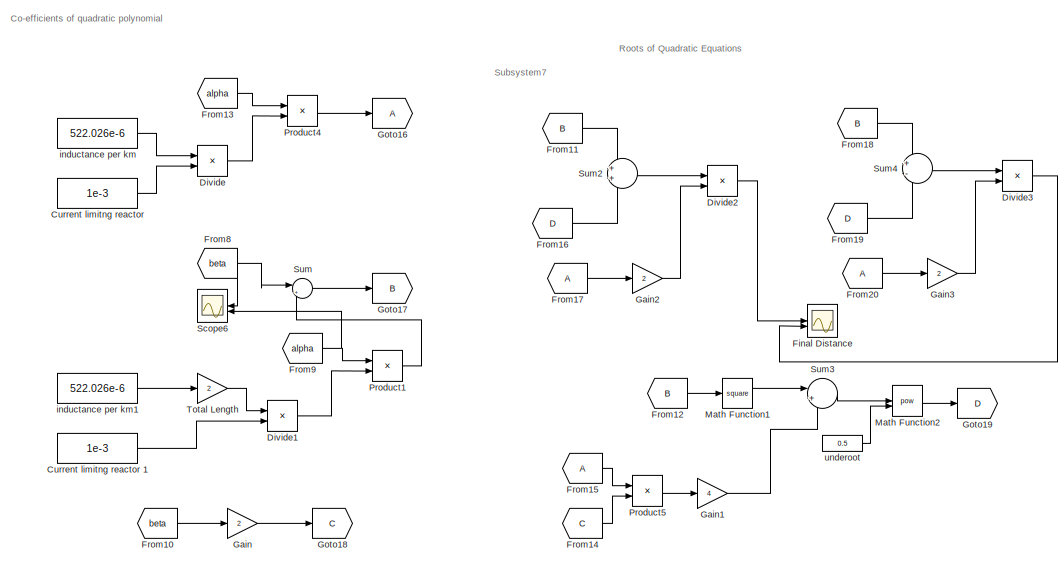
[diagram: Subsystem9 - part 1/2, middle right region]
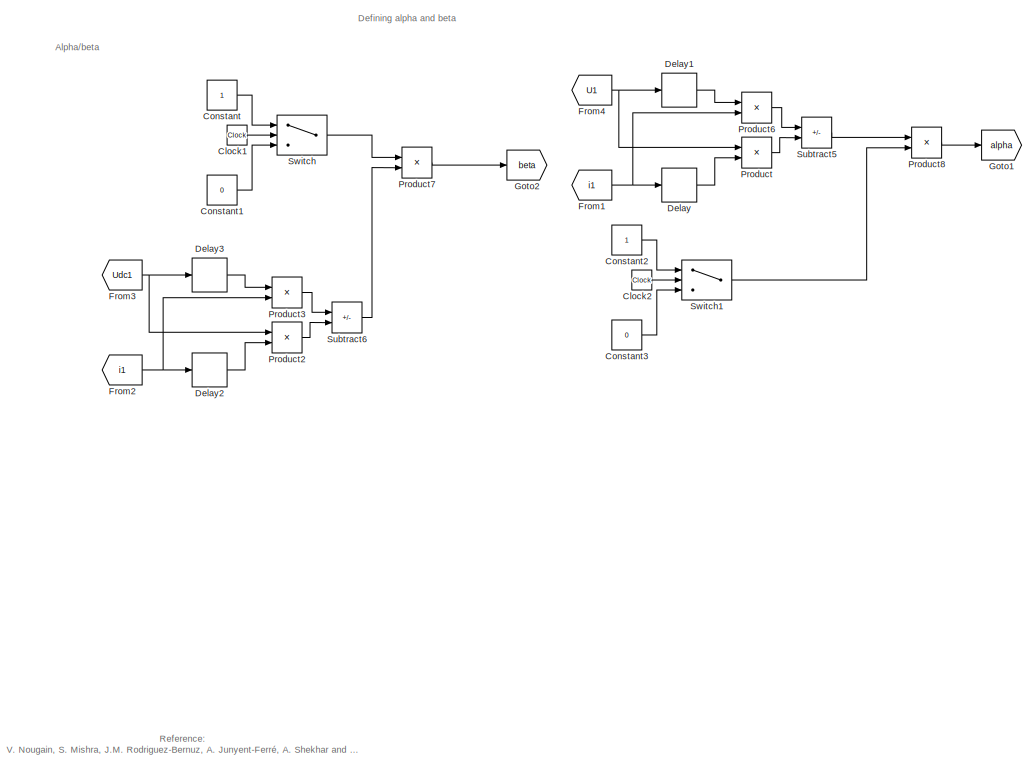
[diagram: Subsystem9 - part 2/2, left side, full height]
BLOCK [SubSystem] Subsystem9
BLOCK [Clock] Subsystem9/Clock1
  Decimation = 6
  DisplayTime = on
BLOCK [Clock] Subsystem9/Clock2
  Decimation = 6
  DisplayTime = on
BLOCK [Constant] Subsystem9/Constant
BLOCK [Constant] Subsystem9/Constant1
  Value = 0
BLOCK [Constant] Subsystem9/Constant2
BLOCK [Constant] Subsystem9/Constant3
  Value = 0
BLOCK [Constant] Subsystem9/Current limitng reactor 
  Value = 1e-3
BLOCK [Constant] Subsystem9/Current limitng reactor 1
  Value = 1e-3
BLOCK [Delay] Subsystem9/Delay
  DelayLength = 7
  InitialCondition = 0
  InputPortMap = u0
BLOCK [Delay] Subsystem9/Delay1
  DelayLength = 7
  InitialCondition = 0
  InputPortMap = u0
BLOCK [Delay] Subsystem9/Delay2
  DelayLength = 7
  InitialCondition = 0
  InputPortMap = u0
BLOCK [Delay] Subsystem9/Delay3
  DelayLength = 7
  InitialCondition = 0
  InputPortMap = u0
BLOCK [Product] Subsystem9/Divide
  Inputs = */
BLOCK [Product] Subsystem9/Divide1
  Inputs = */
BLOCK [Product] Subsystem9/Divide2
  Inputs = */
BLOCK [Product] Subsystem9/Divide3
  Inputs = */
BLOCK [Scope] Subsystem9/Final Distance
  Floating = off
  NumInputPorts = 2
  ScopeSpecificationString = Simulink.scopes.TimeScopeBlockCfg('CurrentConfiguration', extmgr.ConfigurationSet(extmgr.Configuration('Core','General UI',true),extmgr.Configuration('Core','Source UI',true),extmgr.Configuration('Sources','WiredSimulink',true,'DataLoggingVariableName','ScopeData1'),extmgr.Configuration('Visuals','Time Domain',true,'SerializedDisplays',{struct('MinYLimReal','-1.15191','MaxYLimReal','0.85989','YLab...<+1517ch>
BLOCK [From] Subsystem9/From1
  GotoTag = i1
  TagVisibility = global
BLOCK [From] Subsystem9/From10
  GotoTag = beta
  TagVisibility = global
BLOCK [From] Subsystem9/From11
  GotoTag = B
  TagVisibility = global
BLOCK [From] Subsystem9/From12
  GotoTag = B
  TagVisibility = global
BLOCK [From] Subsystem9/From13
  GotoTag = alpha
  TagVisibility = global
BLOCK [From] Subsystem9/From14
  GotoTag = C
  TagVisibility = global
BLOCK [From] Subsystem9/From15
  TagVisibility = global
BLOCK [From] Subsystem9/From16
  GotoTag = D
  TagVisibility = global
BLOCK [From] Subsystem9/From17
  TagVisibility = global
BLOCK [From] Subsystem9/From18
  GotoTag = B
  TagVisibility = global
BLOCK [From] Subsystem9/From19
  GotoTag = D
  TagVisibility = global
BLOCK [From] Subsystem9/From2
  GotoTag = i1
  TagVisibility = global
BLOCK [From] Subsystem9/From20
  TagVisibility = global
BLOCK [From] Subsystem9/From3
  GotoTag = Udc1
  TagVisibility = global
BLOCK [From] Subsystem9/From4
  GotoTag = U1
  TagVisibility = global
BLOCK [From] Subsystem9/From8
  GotoTag = beta
  TagVisibility = global
BLOCK [From] Subsystem9/From9
  GotoTag = alpha
  TagVisibility = global
BLOCK [Gain] Subsystem9/Gain
  Gain = 2
BLOCK [Gain] Subsystem9/Gain1
  Gain = 4
BLOCK [Gain] Subsystem9/Gain2
  Gain = 2
BLOCK [Gain] Subsystem9/Gain3
  Gain = 2
BLOCK [Goto] Subsystem9/Goto1
  GotoTag = alpha
  TagVisibility = global
BLOCK [Goto] Subsystem9/Goto16
  TagVisibility = global
BLOCK [Goto] Subsystem9/Goto17
  GotoTag = B
  TagVisibility = global
BLOCK [Goto] Subsystem9/Goto18
  GotoTag = C
  TagVisibility = global
BLOCK [Goto] Subsystem9/Goto19
  GotoTag = D
  TagVisibility = global
BLOCK [Goto] Subsystem9/Goto2
  GotoTag = beta
  TagVisibility = global
BLOCK [Math] Subsystem9/Math Function1
  Operator = square
BLOCK [Math] Subsystem9/Math Function2
  Operator = pow
BLOCK [Product] Subsystem9/Product
BLOCK [Product] Subsystem9/Product1
BLOCK [Product] Subsystem9/Product2
BLOCK [Product] Subsystem9/Product3
BLOCK [Product] Subsystem9/Product4
BLOCK [Product] Subsystem9/Product5
BLOCK [Product] Subsystem9/Product6
BLOCK [Product] Subsystem9/Product7
BLOCK [Product] Subsystem9/Product8
BLOCK [Scope] Subsystem9/Scope6
  Floating = off
  NameLocation = top
  NumInputPorts = 2
  ScopeSpecificationString = Simulink.scopes.TimeScopeBlockCfg('CurrentConfiguration', extmgr.ConfigurationSet(extmgr.Configuration('Core','General UI',true),extmgr.Configuration('Core','Source UI',true),extmgr.Configuration('Sources','WiredSimulink',true,'DataLoggingVariableName','ScopeData3','DataLoggingSaveFormat','Array','DataLoggingDecimation','1','DataLoggingDecimateData',true),extmgr.Configuration('Visuals','Time Domai...<+1598ch>
BLOCK [Sum] Subsystem9/Subtract5
  IconShape = rectangular
  Inputs = -+
BLOCK [Sum] Subsystem9/Subtract6
  IconShape = rectangular
  Inputs = -+
BLOCK [Sum] Subsystem9/Sum
  Inputs = |++
BLOCK [Sum] Subsystem9/Sum2
BLOCK [Sum] Subsystem9/Sum3
  Inputs = |+-
BLOCK [Sum] Subsystem9/Sum4
  Inputs = +-
BLOCK [Switch] Subsystem9/Switch
  Criteria = u2 > Threshold
  InputSameDT = off
  SaturateOnIntegerOverflow = off
  Threshold = 1.04
BLOCK [Switch] Subsystem9/Switch1
  Criteria = u2 > Threshold
  InputSameDT = off
  SaturateOnIntegerOverflow = off
  Threshold = 1.04
BLOCK [Gain] Subsystem9/Total Length
  Gain = 2
BLOCK [Constant] Subsystem9/inductance per km
  Value = 522.026e-6
BLOCK [Constant] Subsystem9/inductance per km1
  Value = 522.026e-6
BLOCK [Constant] Subsystem9/underoot
  Value = 0.5
BLOCK [ToWorkspace] To Workspace1
  Decimation = 6
  FixptAsFi = on
  MaxDataPoints = inf
  SampleTime = -1
  SaveFormat = Structure With Time
  VariableName = V4
BLOCK [ToWorkspace] To Workspace3
  Decimation = 6
  FixptAsFi = on
  MaxDataPoints = inf
  SampleTime = -1
  SaveFormat = Structure With Time
  VariableName = V5
BLOCK [ToWorkspace] To Workspace4
  Decimation = 6
  FixptAsFi = on
  MaxDataPoints = inf
  SampleTime = -1
  SaveFormat = Structure With Time
  VariableName = V6
BLOCK [ToWorkspace] To Workspace5
  Decimation = 6
  FixptAsFi = on
  MaxDataPoints = inf
  SampleTime = -1
  SaveFormat = Structure With Time
  VariableName = V1
BLOCK [ToWorkspace] To Workspace6
  Decimation = 6
  FixptAsFi = on
  MaxDataPoints = inf
  SampleTime = -1
  SaveFormat = Structure With Time
  VariableName = d
BLOCK [ToWorkspace] To Workspace7
  Decimation = 6
  FixptAsFi = on
  MaxDataPoints = inf
  SampleTime = -1
  SaveFormat = Structure With Time
  VariableName = Vdc6
BLOCK [Reference] Transfer Fcn (with initial outputs)2  REF=simulink_extras/Additional
Linear/Transfer Fcn
(with initial outputs)
  NameLocation = top
  SourceBlock = simulink_extras/Additional\nLinear/Transfer Fcn\n(with initial outputs)
  SourceType = Transfer Function with Initial Outputs
BLOCK [Reference] Vdc 2  REF=spsVoltageMeasurementLib/Voltage Measurement
  AttributesFormatString = \n
  LibrarySourceBlock = sps_lib/Sensors and Measurements/Voltage Measurement
  SourceBlock = spsVoltageMeasurementLib/Voltage Measurement
  SourceType = Voltage Measurement
  Tag = PoWeRsYsTeMmEaSuReMeNt
BLOCK [Reference] Vdc 3  REF=spsVoltageMeasurementLib/Voltage Measurement
  AttributesFormatString = \n
  LibrarySourceBlock = sps_lib/Sensors and Measurements/Voltage Measurement
  NameLocation = top
  SourceBlock = spsVoltageMeasurementLib/Voltage Measurement
  SourceType = Voltage Measurement
  Tag = PoWeRsYsTeMmEaSuReMeNt
BLOCK [Reference] Voltage Measurement1  REF=spsVoltageMeasurementLib/Voltage Measurement
  LibrarySourceBlock = sps_lib/Sensors and Measurements/Voltage Measurement
  SourceBlock = spsVoltageMeasurementLib/Voltage Measurement
  SourceType = Voltage Measurement
BLOCK [Reference] Voltage Measurement10  REF=spsVoltageMeasurementLib/Voltage Measurement
  LibrarySourceBlock = sps_lib/Sensors and Measurements/Voltage Measurement
  NameLocation = top
  SourceBlock = spsVoltageMeasurementLib/Voltage Measurement
  SourceType = Voltage Measurement
BLOCK [Reference] Voltage Measurement2  REF=spsVoltageMeasurementLib/Voltage Measurement
  LibrarySourceBlock = sps_lib/Sensors and Measurements/Voltage Measurement
  NameLocation = top
  SourceBlock = spsVoltageMeasurementLib/Voltage Measurement
  SourceType = Voltage Measurement
BLOCK [Reference] Voltage Measurement3  REF=spsVoltageMeasurementLib/Voltage Measurement
  LibrarySourceBlock = sps_lib/Sensors and Measurements/Voltage Measurement
  NameLocation = top
  SourceBlock = spsVoltageMeasurementLib/Voltage Measurement
  SourceType = Voltage Measurement
BLOCK [Reference] Voltage Measurement4  REF=spsVoltageMeasurementLib/Voltage Measurement
  LibrarySourceBlock = sps_lib/Sensors and Measurements/Voltage Measurement
  NameLocation = top
  SourceBlock = spsVoltageMeasurementLib/Voltage Measurement
  SourceType = Voltage Measurement
BLOCK [Reference] Voltage Measurement5  REF=spsVoltageMeasurementLib/Voltage Measurement
  LibrarySourceBlock = sps_lib/Sensors and Measurements/Voltage Measurement
  NameLocation = top
  SourceBlock = spsVoltageMeasurementLib/Voltage Measurement
  SourceType = Voltage Measurement
BLOCK [Reference] Voltage Measurement6  REF=spsVoltageMeasurementLib/Voltage Measurement
  LibrarySourceBlock = sps_lib/Sensors and Measurements/Voltage Measurement
  NameLocation = top
  SourceBlock = spsVoltageMeasurementLib/Voltage Measurement
  SourceType = Voltage Measurement
BLOCK [Reference] Voltage Measurement7  REF=spsVoltageMeasurementLib/Voltage Measurement
  LibrarySourceBlock = sps_lib/Sensors and Measurements/Voltage Measurement
  SourceBlock = spsVoltageMeasurementLib/Voltage Measurement
  SourceType = Voltage Measurement
BLOCK [Reference] Voltage Measurement8  REF=spsVoltageMeasurementLib/Voltage Measurement
  LibrarySourceBlock = sps_lib/Sensors and Measurements/Voltage Measurement
  NameLocation = top
  SourceBlock = spsVoltageMeasurementLib/Voltage Measurement
  SourceType = Voltage Measurement
BLOCK [Reference] Voltage Measurement9  REF=spsVoltageMeasurementLib/Voltage Measurement
  LibrarySourceBlock = sps_lib/Sensors and Measurements/Voltage Measurement
  NameLocation = top
  SourceBlock = spsVoltageMeasurementLib/Voltage Measurement
  SourceType = Voltage Measurement
BLOCK [Reference] powergui  REF=sps_lib/powergui
  LibrarySourceBlock = sps_lib/powergui
  Priority = 1
  SourceBlock = sps_lib/powergui
  SourceType = PSB option menu block
ANNOTATION (root): 1 KM line
ANNOTATION (root): 2 KM line
ANNOTATION (root): 2KM line
ANNOTATION (root): 3 KM line
ANNOTATION (root): A constant power load of 10 KW is placed
ANNOTATION (root): A constant power load of 5 KW is placed
ANNOTATION (root): Battery is at standby and fully charged
ANNOTATION (root): Main Voltage control Unit
ANNOTATION (root): PV is generating 10 KW
ANNOTATION (root): Fault Identification Method
ANNOTATION (root): Protection For Low-voltage DC grids
ANNOTATION (root): Double-terminal Fault Location Method
ANNOTATION (root): Single-terminal Fault Location Method
ANNOTATION (root): DC load
ANNOTATION (root): Utility
ANNOTATION PV : 5 kHz - 500V Boost Converter
ANNOTATION PV 1: 5 kHz - 500V Boost Converter
ANNOTATION Subsystem10: Reference: V. Nougain, S. Mishra, G. S. Misyris and S. Chatzivasileiadis, "Multiterminal DC Fault Identification for MMC-HVDC Systems Based on Modal Analysis—A Localized Protection Scheme," in IEEE Journal of Emerging and Selected Topics in Power Electronics , vol. 9, no. 6, pp. 6650-6661, Dec. 2021, doi: 10.1109/JESTPE.2021.3068800.
ANNOTATION Subsystem10: DC link Voltage at Terminal 1
ANNOTATION Subsystem10: DC link Voltage at Terminal 2
ANNOTATION Subsystem10: DC link Voltage at Terminal 3
ANNOTATION Subsystem10: DC link Voltage at Terminal 6
ANNOTATION Subsystem10: Threshold defined for the fault Identification
ANNOTATION Subsystem10: Voltage across Current limiting reactor at Terminal 1
ANNOTATION Subsystem10: Voltage across Current limiting reactor at Terminal 2
ANNOTATION Subsystem10: Voltage across Current limiting reactor at Terminal 3
ANNOTATION Subsystem10: Voltage across Current limiting reactor at Terminal 6
ANNOTATION Subsystem10: Voltage after Current Limiting reactor at Terminal 1
ANNOTATION Subsystem10: Voltage after Current Limiting reactor at Terminal 2
ANNOTATION Subsystem10: Voltage after Current Limiting reactor at Terminal 3
ANNOTATION Subsystem10: Voltage after Current Limiting reactor at Terminal 6
ANNOTATION Subsystem7: Reference: V. Nougain, S. Mishra, S. S. Nag and A. Lekić, "Fault Location Algorithm for Multi-Terminal Radial Medium Voltage DC Microgrid," in IEEE Transactions on Power Delivery , vol. 38, no. 6, pp. 4476-4488, Dec. 2023, doi: 10.1109/TPWRD.2023.3318689.
ANNOTATION Subsystem9: Reference: V. Nougain, S. Mishra, J.M. Rodriguez-Bernuz, A. Junyent-Ferré, A. Shekhar and A. Lekić, "Adaptive Single-Terminal Fault Location for DC Microgrids" (Under Review).
ANNOTATION Subsystem9: Co-efficients of quadratic polynomial
ANNOTATION Subsystem9: Defining alpha and beta
ANNOTATION Subsystem9: Roots of Quadratic Equations
ANNOTATION Subsystem9: Alpha/beta
ANNOTATION Subsystem9: Subsystem7
LINE Clock:1 -> Rate Transition:1
LINE Current Measurement1:1 -> Goto14:1
LINE Current Measurement2:1 -> Goto15:1
LINE Current Measurement5:1 -> Scope3:1
LINE Current Measurement6:1 -> Goto10:1
LINE Current Measurement7:1 -> Goto1:1
LINE ESS1/Add3:1 -> ESS1/PID Controller:1
LINE ESS1/Battery1:1 -> ESS1/Demux2:1
LINE ESS1/Constant:1 -> ESS1/Product2:2
LINE ESS1/Current Measurement4:1 -> ESS1/Zero-Order Hold:1
LINE ESS1/Demux2:1 -> ESS1/Scope:1
LINE ESS1/Demux2:2 -> ESS1/Scope:2
LINE ESS1/Demux2:3 -> ESS1/Scope:3
LINE ESS1/From3:1 -> ESS1/Product:1
LINE ESS1/Logical Operator1:1 -> ESS1/IGBT//Diode:1
NET ESS1/Memory1:1 -> ESS1/Add3:2, ESS1/Mux4:2
NET ESS1/Memory2:1 -> ESS1/Add3:1, ESS1/Mux4:1
LINE ESS1/Mux4:1 -> ESS1/P_B1:1
NET ESS1/PID Controller:1 -> ESS1/PWM Generator (DC-DC):1, ESS1/Scope4:1
NET ESS1/PWM Generator (DC-DC):1 -> ESS1/IGBT//Diode1:1, ESS1/Logical Operator1:1
NET ESS1/Product2:1 -> ESS1/Display2:1, ESS1/Memory2:1, ESS1/Scope2:1
LINE ESS1/Product:1 -> ESS1/Product2:1
NET ESS1/Voltage Measurement2:1 -> ESS1/P_B2:1, ESS1/Product:2
LINE ESS1/Zero-Order Hold:1 -> ESS1/Memory1:1
NET PV /CM2:1 -> PV /Memory9:1, PV /Subsystem1:2
LINE PV /MPPT/Add1:1 -> PV /MPPT/Relational Operator:1
LINE PV /MPPT/Constant1:1 -> PV /MPPT/Switch2:1
LINE PV /MPPT/Constant2:1 -> PV /MPPT/Add1:2
LINE PV /MPPT/Constant3:1 -> PV /MPPT/Switch2:3
LINE PV /MPPT/In1:1 -> PV /MPPT/Unit Delay1:1
LINE PV /MPPT/In2:1 -> PV /MPPT/Unit Delay2:1
LINE PV /MPPT/MPPT/Add1:1 -> PV /MPPT/MPPT/sign:1
LINE PV /MPPT/MPPT/Add2:1 -> PV /MPPT/MPPT/div1:1
NET PV /MPPT/MPPT/Add3:1 -> PV /MPPT/MPPT/Compare To Zero:1, PV /MPPT/MPPT/Switch2:1
LINE PV /MPPT/MPPT/Compare To Zero:1 -> PV /MPPT/MPPT/Switch2:2
LINE PV /MPPT/MPPT/Constant2:1 -> PV /MPPT/MPPT/Switch2:3
NET PV /MPPT/MPPT/I_PV:1 -> PV /MPPT/MPPT/Add2:1, PV /MPPT/MPPT/Unit Delay:1, PV /MPPT/MPPT/div2:1
LINE PV /MPPT/MPPT/Saturation:1 -> PV /MPPT/MPPT/div2:2
LINE PV /MPPT/MPPT/Switch2:1 -> PV /MPPT/MPPT/div1:2
LINE PV /MPPT/MPPT/Unit Delay1:1 -> PV /MPPT/MPPT/Add3:2
LINE PV /MPPT/MPPT/Unit Delay:1 -> PV /MPPT/MPPT/Add2:2
NET PV /MPPT/MPPT/V_PV:1 -> PV /MPPT/MPPT/Add3:1, PV /MPPT/MPPT/Saturation:1, PV /MPPT/MPPT/Unit Delay1:1
LINE PV /MPPT/MPPT/div1:1 -> PV /MPPT/MPPT/Add1:1
LINE PV /MPPT/MPPT/div2:1 -> PV /MPPT/MPPT/Add1:2
LINE PV /MPPT/MPPT:1 -> PV /MPPT/Sign:1
LINE PV /MPPT/Relational Operator:1 -> PV /MPPT/Out1:1
LINE PV /MPPT/Repeating Sequence:1 -> PV /MPPT/Relational Operator:2
LINE PV /MPPT/Sign:1 -> PV /MPPT/Switch2:2
LINE PV /MPPT/Switch2:1 -> PV /MPPT/Add1:1
LINE PV /MPPT/Unit Delay1:1 -> PV /MPPT/MPPT:1
LINE PV /MPPT/Unit Delay2:1 -> PV /MPPT/MPPT:2
LINE PV /MPPT:1 -> PV /Memory1:1
LINE PV /Memory1:1 -> PV /IGBT1:1
NET PV /Memory9:1 -> PV /MPPT:2, PV /Product:2
NET PV /Memory:1 -> PV /MPPT:1, PV /Product:1
LINE PV /Product:1 -> PV /Scope2:1
LINE PV /Step1:1 -> PV /Subsystem1:1
LINE PV /Subsystem1/1:1 -> PV /Subsystem1/Sum1:2
LINE PV /Subsystem1/Divide:1 -> PV /Subsystem1/Sum3:2
LINE PV /Subsystem1/From1:1 -> PV /Subsystem1/Sum2:1
LINE PV /Subsystem1/From2:1 -> PV /Subsystem1/Product4:1
LINE PV /Subsystem1/From5:1 -> PV /Subsystem1/Sum5:2
LINE PV /Subsystem1/From6:1 -> PV /Subsystem1/Product10:1
LINE PV /Subsystem1/I:1 -> PV /Subsystem1/I1:1
LINE PV /Subsystem1/Ipv_n:1 -> PV /Subsystem1/Sum:1
LINE PV /Subsystem1/M3:1 -> PV /Subsystem1/Sum1:1
LINE PV /Subsystem1/Memory1:1 -> PV /Subsystem1/Divide:1
LINE PV /Subsystem1/Memory2:1 -> PV /Subsystem1/Product5:1
LINE PV /Subsystem1/Product10:1 -> PV /Subsystem1/Sum5:1
LINE PV /Subsystem1/Product11:1 -> PV /Subsystem1/Sum3:1
LINE PV /Subsystem1/Product1:1 -> PV /Subsystem1/Ipv:1
LINE PV /Subsystem1/Product2:1 -> PV /Subsystem1/Product1:2
LINE PV /Subsystem1/Product3:1 -> PV /Subsystem1/Isat:1
LINE PV /Subsystem1/Product4:1 -> PV /Subsystem1/Sum2:2
LINE PV /Subsystem1/Product5:1 -> PV /Subsystem1/M3:1
LINE PV /Subsystem1/Sum1:1 -> PV /Subsystem1/Product10:2
NET PV /Subsystem1/Sum2:1 -> PV /Subsystem1/Memory1:1, PV /Subsystem1/Memory2:1
LINE PV /Subsystem1/Sum3:1 -> PV /Subsystem1/I2:1
LINE PV /Subsystem1/Sum5:1 -> PV /Subsystem1/Product11:2
LINE PV /Subsystem1/Sum:1 -> PV /Subsystem1/Product1:1
LINE PV /Subsystem1/V:1 -> PV /Subsystem1/V1:1
LINE PV /Subsystem1/const2:1 -> PV /Subsystem1/Product4:2
LINE PV /Subsystem1/const3:1 -> PV /Subsystem1/Product3:2
LINE PV /Subsystem1/const4:1 -> PV /Subsystem1/Product5:2
LINE PV /Subsystem1/const6:1 -> PV /Subsystem1/Product3:1
LINE PV /Subsystem1/const7:1 -> PV /Subsystem1/Product2:2
LINE PV /Subsystem1/const8:1 -> PV /Subsystem1/Divide:2
LINE PV /Subsystem1/const:1 -> PV /Subsystem1/Sum:2
LINE PV /Subsystem1/parallel cells(np):1 -> PV /Subsystem1/Product11:1
LINE PV /Subsystem1/s:1 -> PV /Subsystem1/Product2:1
LINE PV /Subsystem1:1 -> PV /Controlled Current Source:1
NET PV /VM1:1 -> PV /Memory:1, PV /Subsystem1:3
NET PV 1/CM2:1 -> PV 1/Memory9:1, PV 1/Subsystem1:2
LINE PV 1/MPPT/Add1:1 -> PV 1/MPPT/Relational Operator:1
LINE PV 1/MPPT/Constant1:1 -> PV 1/MPPT/Switch2:1
LINE PV 1/MPPT/Constant2:1 -> PV 1/MPPT/Add1:2
LINE PV 1/MPPT/Constant3:1 -> PV 1/MPPT/Switch2:3
LINE PV 1/MPPT/In1:1 -> PV 1/MPPT/Unit Delay1:1
LINE PV 1/MPPT/In2:1 -> PV 1/MPPT/Unit Delay2:1
LINE PV 1/MPPT/MPPT/Add1:1 -> PV 1/MPPT/MPPT/sign:1
LINE PV 1/MPPT/MPPT/Add2:1 -> PV 1/MPPT/MPPT/div1:1
NET PV 1/MPPT/MPPT/Add3:1 -> PV 1/MPPT/MPPT/Compare To Zero:1, PV 1/MPPT/MPPT/Switch2:1
LINE PV 1/MPPT/MPPT/Compare To Zero:1 -> PV 1/MPPT/MPPT/Switch2:2
LINE PV 1/MPPT/MPPT/Constant2:1 -> PV 1/MPPT/MPPT/Switch2:3
NET PV 1/MPPT/MPPT/I_PV:1 -> PV 1/MPPT/MPPT/Add2:1, PV 1/MPPT/MPPT/Unit Delay:1, PV 1/MPPT/MPPT/div2:1
LINE PV 1/MPPT/MPPT/Saturation:1 -> PV 1/MPPT/MPPT/div2:2
LINE PV 1/MPPT/MPPT/Switch2:1 -> PV 1/MPPT/MPPT/div1:2
LINE PV 1/MPPT/MPPT/Unit Delay1:1 -> PV 1/MPPT/MPPT/Add3:2
LINE PV 1/MPPT/MPPT/Unit Delay:1 -> PV 1/MPPT/MPPT/Add2:2
NET PV 1/MPPT/MPPT/V_PV:1 -> PV 1/MPPT/MPPT/Add3:1, PV 1/MPPT/MPPT/Saturation:1, PV 1/MPPT/MPPT/Unit Delay1:1
LINE PV 1/MPPT/MPPT/div1:1 -> PV 1/MPPT/MPPT/Add1:1
LINE PV 1/MPPT/MPPT/div2:1 -> PV 1/MPPT/MPPT/Add1:2
LINE PV 1/MPPT/MPPT:1 -> PV 1/MPPT/Sign:1
LINE PV 1/MPPT/Relational Operator:1 -> PV 1/MPPT/Out1:1
LINE PV 1/MPPT/Repeating Sequence:1 -> PV 1/MPPT/Relational Operator:2
LINE PV 1/MPPT/Sign:1 -> PV 1/MPPT/Switch2:2
LINE PV 1/MPPT/Switch2:1 -> PV 1/MPPT/Add1:1
LINE PV 1/MPPT/Unit Delay1:1 -> PV 1/MPPT/MPPT:1
LINE PV 1/MPPT/Unit Delay2:1 -> PV 1/MPPT/MPPT:2
LINE PV 1/MPPT:1 -> PV 1/Memory1:1
LINE PV 1/Memory1:1 -> PV 1/IGBT1:1
NET PV 1/Memory9:1 -> PV 1/MPPT:2, PV 1/Product:2
NET PV 1/Memory:1 -> PV 1/MPPT:1, PV 1/Product:1
LINE PV 1/Product:1 -> PV 1/Scope2:1
LINE PV 1/Step1:1 -> PV 1/Subsystem1:1
LINE PV 1/Subsystem1/1:1 -> PV 1/Subsystem1/Sum1:2
LINE PV 1/Subsystem1/Divide:1 -> PV 1/Subsystem1/Sum3:2
LINE PV 1/Subsystem1/From1:1 -> PV 1/Subsystem1/Sum2:1
LINE PV 1/Subsystem1/From2:1 -> PV 1/Subsystem1/Product4:1
LINE PV 1/Subsystem1/From5:1 -> PV 1/Subsystem1/Sum5:2
LINE PV 1/Subsystem1/From6:1 -> PV 1/Subsystem1/Product10:1
LINE PV 1/Subsystem1/I:1 -> PV 1/Subsystem1/I1:1
LINE PV 1/Subsystem1/Ipv_n:1 -> PV 1/Subsystem1/Sum:1
LINE PV 1/Subsystem1/M3:1 -> PV 1/Subsystem1/Sum1:1
LINE PV 1/Subsystem1/Memory1:1 -> PV 1/Subsystem1/Divide:1
LINE PV 1/Subsystem1/Memory2:1 -> PV 1/Subsystem1/Product5:1
LINE PV 1/Subsystem1/Product10:1 -> PV 1/Subsystem1/Sum5:1
LINE PV 1/Subsystem1/Product11:1 -> PV 1/Subsystem1/Sum3:1
LINE PV 1/Subsystem1/Product1:1 -> PV 1/Subsystem1/Ipv:1
LINE PV 1/Subsystem1/Product2:1 -> PV 1/Subsystem1/Product1:2
LINE PV 1/Subsystem1/Product3:1 -> PV 1/Subsystem1/Isat:1
LINE PV 1/Subsystem1/Product4:1 -> PV 1/Subsystem1/Sum2:2
LINE PV 1/Subsystem1/Product5:1 -> PV 1/Subsystem1/M3:1
LINE PV 1/Subsystem1/Sum1:1 -> PV 1/Subsystem1/Product10:2
NET PV 1/Subsystem1/Sum2:1 -> PV 1/Subsystem1/Memory1:1, PV 1/Subsystem1/Memory2:1
LINE PV 1/Subsystem1/Sum3:1 -> PV 1/Subsystem1/I2:1
LINE PV 1/Subsystem1/Sum5:1 -> PV 1/Subsystem1/Product11:2
LINE PV 1/Subsystem1/Sum:1 -> PV 1/Subsystem1/Product1:1
LINE PV 1/Subsystem1/V:1 -> PV 1/Subsystem1/V1:1
LINE PV 1/Subsystem1/const2:1 -> PV 1/Subsystem1/Product4:2
LINE PV 1/Subsystem1/const3:1 -> PV 1/Subsystem1/Product3:2
LINE PV 1/Subsystem1/const4:1 -> PV 1/Subsystem1/Product5:2
LINE PV 1/Subsystem1/const6:1 -> PV 1/Subsystem1/Product3:1
LINE PV 1/Subsystem1/const7:1 -> PV 1/Subsystem1/Product2:2
LINE PV 1/Subsystem1/const8:1 -> PV 1/Subsystem1/Divide:2
LINE PV 1/Subsystem1/const:1 -> PV 1/Subsystem1/Sum:2
LINE PV 1/Subsystem1/parallel cells(np):1 -> PV 1/Subsystem1/Product11:1
LINE PV 1/Subsystem1/s:1 -> PV 1/Subsystem1/Product2:1
LINE PV 1/Subsystem1:1 -> PV 1/Controlled Current Source:1
NET PV 1/VM1:1 -> PV 1/Memory:1, PV 1/Subsystem1:3
LINE Rate Transition:1 -> To Workspace6:1
NET Step11:1 -> Ideal Switch10:1, Ideal Switch11:1
NET Step14:1 -> Ideal Switch13:1, Ideal Switch14:1
NET Step17:1 -> Ideal Switch16:1, Ideal Switch17:1
NET Step4:1 -> Ideal Switch2:1, Ideal Switch3:1
NET Step5:1 -> Ideal Switch4:1, Ideal Switch5:1
LINE Subsystem/CPL1/2:1 -> Subsystem/CPL1/Scope2:2
NET Subsystem/CPL1/Current Measurement:1 -> Subsystem/CPL1/Display3:1, Subsystem/CPL1/Product1:2, Subsystem/CPL1/Subsystem:1
LINE Subsystem/CPL1/IGBT:1 -> Subsystem/CPL1/Terminator:1
LINE Subsystem/CPL1/Product1:1 -> Subsystem/CPL1/2:1
NET Subsystem/CPL1/Subsystem/Add1:1 -> Subsystem/CPL1/Subsystem/Display5:1, Subsystem/CPL1/Subsystem/PID Controller:1
NET Subsystem/CPL1/Subsystem/Add4:1 -> Subsystem/CPL1/Subsystem/Display2:1, Subsystem/CPL1/Subsystem/PID Controller1:1
NET Subsystem/CPL1/Subsystem/IL:1 -> Subsystem/CPL1/Subsystem/Display1:1, Subsystem/CPL1/Subsystem/Memory2:1
LINE Subsystem/CPL1/Subsystem/Memory1:1 -> Subsystem/CPL1/Subsystem/Add1:1
LINE Subsystem/CPL1/Subsystem/Memory2:1 -> Subsystem/CPL1/Subsystem/Add1:2
LINE Subsystem/CPL1/Subsystem/PID Controller1:1 -> Subsystem/CPL1/Subsystem/Memory1:1
NET Subsystem/CPL1/Subsystem/PID Controller:1 -> Subsystem/CPL1/Subsystem/PWM Generator (DC-DC):1, Subsystem/CPL1/Subsystem/Scope4:1
LINE Subsystem/CPL1/Subsystem/PWM Generator (DC-DC):1 -> Subsystem/CPL1/Subsystem/Out2:1
LINE Subsystem/CPL1/Subsystem/Vdc:1 -> Subsystem/CPL1/Subsystem/Add4:1
LINE Subsystem/CPL1/Subsystem/power3:1 -> Subsystem/CPL1/Subsystem/Add4:2
LINE Subsystem/CPL1/Subsystem:1 -> Subsystem/CPL1/Unit Delay:1
LINE Subsystem/CPL1/Unit Delay:1 -> Subsystem/CPL1/IGBT:1
LINE Subsystem/CPL1/Voltage Measurement1:1 -> Subsystem/CPL1/Display4:1
NET Subsystem/CPL1/Voltage Measurement:1 -> Subsystem/CPL1/Display2:1, Subsystem/CPL1/Product1:1, Subsystem/CPL1/Scope2:1, Subsystem/CPL1/Subsystem:2
LINE Subsystem/Step2:1 -> Subsystem/Ideal Switch2:1
LINE Subsystem1/CPL1/2:1 -> Subsystem1/CPL1/Scope2:2
NET Subsystem1/CPL1/Current Measurement:1 -> Subsystem1/CPL1/Display3:1, Subsystem1/CPL1/Product1:2, Subsystem1/CPL1/Subsystem:1
LINE Subsystem1/CPL1/IGBT:1 -> Subsystem1/CPL1/Terminator:1
LINE Subsystem1/CPL1/Product1:1 -> Subsystem1/CPL1/2:1
NET Subsystem1/CPL1/Subsystem/Add1:1 -> Subsystem1/CPL1/Subsystem/Display5:1, Subsystem1/CPL1/Subsystem/PID Controller:1
NET Subsystem1/CPL1/Subsystem/Add4:1 -> Subsystem1/CPL1/Subsystem/Display2:1, Subsystem1/CPL1/Subsystem/PID Controller1:1
NET Subsystem1/CPL1/Subsystem/IL:1 -> Subsystem1/CPL1/Subsystem/Display1:1, Subsystem1/CPL1/Subsystem/Memory2:1
LINE Subsystem1/CPL1/Subsystem/Memory1:1 -> Subsystem1/CPL1/Subsystem/Add1:1
LINE Subsystem1/CPL1/Subsystem/Memory2:1 -> Subsystem1/CPL1/Subsystem/Add1:2
LINE Subsystem1/CPL1/Subsystem/Memory3:1 -> Subsystem1/CPL1/Subsystem/Add4:1
LINE Subsystem1/CPL1/Subsystem/PID Controller1:1 -> Subsystem1/CPL1/Subsystem/Memory1:1
NET Subsystem1/CPL1/Subsystem/PID Controller:1 -> Subsystem1/CPL1/Subsystem/PWM Generator (DC-DC):1, Subsystem1/CPL1/Subsystem/Scope4:1
LINE Subsystem1/CPL1/Subsystem/PWM Generator (DC-DC):1 -> Subsystem1/CPL1/Subsystem/Out2:1
LINE Subsystem1/CPL1/Subsystem/Vdc:1 -> Subsystem1/CPL1/Subsystem/Memory3:1
LINE Subsystem1/CPL1/Subsystem/power3:1 -> Subsystem1/CPL1/Subsystem/Add4:2
LINE Subsystem1/CPL1/Subsystem:1 -> Subsystem1/CPL1/Unit Delay:1
LINE Subsystem1/CPL1/Unit Delay:1 -> Subsystem1/CPL1/IGBT:1
LINE Subsystem1/CPL1/Voltage Measurement1:1 -> Subsystem1/CPL1/Display4:1
NET Subsystem1/CPL1/Voltage Measurement:1 -> Subsystem1/CPL1/Display2:1, Subsystem1/CPL1/Product1:1, Subsystem1/CPL1/Scope2:1, Subsystem1/CPL1/Subsystem:2
LINE Subsystem1/Step2:1 -> Subsystem1/Ideal Switch2:1
LINE Subsystem10/Constant:1 -> Subsystem10/Scope1:5
LINE Subsystem10/From1:1 -> Subsystem10/Subtract3:1
LINE Subsystem10/From2:1 -> Subsystem10/Subtract:2
LINE Subsystem10/From3:1 -> Subsystem10/Subtract:1
LINE Subsystem10/From4:1 -> Subsystem10/Subtract1:2
LINE Subsystem10/From5:1 -> Subsystem10/Subtract1:1
LINE Subsystem10/From6:1 -> Subsystem10/Subtract2:1
LINE Subsystem10/From7:1 -> Subsystem10/Subtract2:2
LINE Subsystem10/From:1 -> Subsystem10/Subtract3:2
NET Subsystem10/Subtract1:1 -> Subsystem10/Goto13:1, Subsystem10/Scope1:2
NET Subsystem10/Subtract2:1 -> Subsystem10/Goto1:1, Subsystem10/Scope1:3
NET Subsystem10/Subtract3:1 -> Subsystem10/Goto2:1, Subsystem10/Scope1:4
NET Subsystem10/Subtract:1 -> Subsystem10/Goto12:1, Subsystem10/Scope1:1
LINE Subsystem4/Abs:1 -> Subsystem4/Goto1:1
LINE Subsystem4/Analog Filter Design:1 -> Subsystem4/Scope1:2
LINE Subsystem4/Current Measurement1:1 -> Subsystem4/Pm1:1
NET Subsystem4/Current Measurement2:1 -> Subsystem4/Abs:1, Subsystem4/Analog Filter Design:1, Subsystem4/Pm2:1, Subsystem4/Product:2
LINE Subsystem4/From1:1 -> Subsystem4/Universal Bridge:1
LINE Subsystem4/Product:1 -> Subsystem4/Goto2:1
NET Subsystem4/RMS2:1 -> Subsystem4/Pm3:1, Subsystem4/Scope7:1
LINE Subsystem4/Subsystem1/Constant:1 -> Subsystem4/Subsystem1/Current control:2
NET Subsystem4/Subsystem1/Current control/1//Base1:1 -> Subsystem4/Subsystem1/Current control/3:1, Subsystem4/Subsystem1/Current control/Mux3:2
NET Subsystem4/Subsystem1/Current control/1//Base2:1 -> Subsystem4/Subsystem1/Current control/4:1, Subsystem4/Subsystem1/Current control/Mux3:1
LINE Subsystem4/Subsystem1/Current control/1:1 -> Subsystem4/Subsystem1/Current control/Scope5:2
LINE Subsystem4/Subsystem1/Current control/2:1 -> Subsystem4/Subsystem1/Current control/Scope5:1
LINE Subsystem4/Subsystem1/Current control/3:1 -> Subsystem4/Subsystem1/Current control/Scope1:2
LINE Subsystem4/Subsystem1/Current control/4:1 -> Subsystem4/Subsystem1/Current control/Scope1:1
LINE Subsystem4/Subsystem1/Current control/5:1 -> Subsystem4/Subsystem1/Current control/Scope2:2
LINE Subsystem4/Subsystem1/Current control/6:1 -> Subsystem4/Subsystem1/Current control/Scope2:1
LINE Subsystem4/Subsystem1/Current control/Constant2:1 -> Subsystem4/Subsystem1/Current control/Mux3:3
LINE Subsystem4/Subsystem1/Current control/From11:1 -> Subsystem4/Subsystem1/Current control/Zero-Order Hold:1
LINE Subsystem4/Subsystem1/Current control/From1:1 -> Subsystem4/Subsystem1/Current control/Zero-Order Hold2:1
LINE Subsystem4/Subsystem1/Current control/Idref:1 -> Subsystem4/Subsystem1/Current control/Zero-Order Hold1:1
LINE Subsystem4/Subsystem1/Current control/Iqref:1 -> Subsystem4/Subsystem1/Current control/Zero-Order Hold3:1
LINE Subsystem4/Subsystem1/Current control/Mux3:1 -> Subsystem4/Subsystem1/Current control/Saturation:1
LINE Subsystem4/Subsystem1/Current control/PI1:1 -> Subsystem4/Subsystem1/Current control/Sum10:1
LINE Subsystem4/Subsystem1/Current control/PI2:1 -> Subsystem4/Subsystem1/Current control/Sum1:2
LINE Subsystem4/Subsystem1/Current control/Saturation:1 -> Subsystem4/Subsystem1/Current control/Vdq:1
LINE Subsystem4/Subsystem1/Current control/Sum10:1 -> Subsystem4/Subsystem1/Current control/1//Base2:1
LINE Subsystem4/Subsystem1/Current control/Sum1:1 -> Subsystem4/Subsystem1/Current control/1//Base1:1
LINE Subsystem4/Subsystem1/Current control/Sum8:1 -> Subsystem4/Subsystem1/Current control/PI1:1
LINE Subsystem4/Subsystem1/Current control/Sum9:1 -> Subsystem4/Subsystem1/Current control/PI2:1
NET Subsystem4/Subsystem1/Current control/Zero-Order Hold1:1 -> Subsystem4/Subsystem1/Current control/2:1, Subsystem4/Subsystem1/Current control/Sum8:1
NET Subsystem4/Subsystem1/Current control/Zero-Order Hold2:1 -> Subsystem4/Subsystem1/Current control/5:1, Subsystem4/Subsystem1/Current control/Sum9:1, Subsystem4/Subsystem1/Current control/wL:1
NET Subsystem4/Subsystem1/Current control/Zero-Order Hold3:1 -> Subsystem4/Subsystem1/Current control/6:1, Subsystem4/Subsystem1/Current control/Sum9:2
NET Subsystem4/Subsystem1/Current control/Zero-Order Hold:1 -> Subsystem4/Subsystem1/Current control/1:1, Subsystem4/Subsystem1/Current control/Sum8:2, Subsystem4/Subsystem1/Current control/wL1:1
LINE Subsystem4/Subsystem1/Current control/wL1:1 -> Subsystem4/Subsystem1/Current control/Sum1:1
LINE Subsystem4/Subsystem1/Current control/wL:1 -> Subsystem4/Subsystem1/Current control/Sum10:2
LINE Subsystem4/Subsystem1/Current control:1 -> Subsystem4/Subsystem1/dq0_to_abc Transformation:1
NET Subsystem4/Subsystem1/Discrete 3-phase PLL1:3 -> Subsystem4/Subsystem1/PLL_measurnment:4, Subsystem4/Subsystem1/dq0_to_abc Transformation:2
LINE Subsystem4/Subsystem1/From18:1 -> Subsystem4/Subsystem1/Discrete 3-phase PLL1:1
NET Subsystem4/Subsystem1/From1:1 -> Subsystem4/Subsystem1/Pm3:1, Subsystem4/Subsystem1/Scope1:1, Subsystem4/Subsystem1/Switch1:2
NET Subsystem4/Subsystem1/From2:1 -> Subsystem4/Subsystem1/PLL_measurnment:1, Subsystem4/Subsystem1/Scope4:1
LINE Subsystem4/Subsystem1/From3:1 -> Subsystem4/Subsystem1/PLL_measurnment:3
LINE Subsystem4/Subsystem1/From4:1 -> Subsystem4/Subsystem1/Subsystem2:2
LINE Subsystem4/Subsystem1/From5:1 -> Subsystem4/Subsystem1/Subsystem2:1
NET Subsystem4/Subsystem1/From6:1 -> Subsystem4/Subsystem1/PLL_measurnment:2, Subsystem4/Subsystem1/Scope4:2
LINE Subsystem4/Subsystem1/PLL_measurnment/Constant1:1 -> Subsystem4/Subsystem1/PLL_measurnment/Product:2
LINE Subsystem4/Subsystem1/PLL_measurnment/Demux1:1 -> Subsystem4/Subsystem1/PLL_measurnment/Goto:1
LINE Subsystem4/Subsystem1/PLL_measurnment/Demux1:2 -> Subsystem4/Subsystem1/PLL_measurnment/Goto1:1
LINE Subsystem4/Subsystem1/PLL_measurnment/Demux1:3 -> Subsystem4/Subsystem1/PLL_measurnment/Terminator2:1
LINE Subsystem4/Subsystem1/PLL_measurnment/Demux2:1 -> Subsystem4/Subsystem1/PLL_measurnment/Goto2:1
LINE Subsystem4/Subsystem1/PLL_measurnment/Demux2:2 -> Subsystem4/Subsystem1/PLL_measurnment/Goto3:1
LINE Subsystem4/Subsystem1/PLL_measurnment/Demux2:3 -> Subsystem4/Subsystem1/PLL_measurnment/Terminator1:1
NET Subsystem4/Subsystem1/PLL_measurnment/Demux3:1 -> Subsystem4/Subsystem1/PLL_measurnment/Goto4:1, Subsystem4/Subsystem1/PLL_measurnment/Id:1
NET Subsystem4/Subsystem1/PLL_measurnment/Demux3:2 -> Subsystem4/Subsystem1/PLL_measurnment/Goto6:1, Subsystem4/Subsystem1/PLL_measurnment/Iq:1
LINE Subsystem4/Subsystem1/PLL_measurnment/Demux3:3 -> Subsystem4/Subsystem1/PLL_measurnment/Terminator3:1
NET Subsystem4/Subsystem1/PLL_measurnment/Demux4:1 -> Subsystem4/Subsystem1/PLL_measurnment/Display7:1, Subsystem4/Subsystem1/PLL_measurnment/Goto8:1
NET Subsystem4/Subsystem1/PLL_measurnment/Demux4:2 -> Subsystem4/Subsystem1/PLL_measurnment/Display6:1, Subsystem4/Subsystem1/PLL_measurnment/Goto9:1
LINE Subsystem4/Subsystem1/PLL_measurnment/Demux4:3 -> Subsystem4/Subsystem1/PLL_measurnment/Terminator4:1
LINE Subsystem4/Subsystem1/PLL_measurnment/Fcn1:1 -> Subsystem4/Subsystem1/PLL_measurnment/Transfer Fcn:1
LINE Subsystem4/Subsystem1/PLL_measurnment/Fcn:1 -> Subsystem4/Subsystem1/PLL_measurnment/Transfer Fcn1:1
LINE Subsystem4/Subsystem1/PLL_measurnment/From10:1 -> Subsystem4/Subsystem1/PLL_measurnment/Mux:4
LINE Subsystem4/Subsystem1/PLL_measurnment/From13:1 -> Subsystem4/Subsystem1/PLL_measurnment/abc_to_dq0 Transformation3:1
LINE Subsystem4/Subsystem1/PLL_measurnment/From7:1 -> Subsystem4/Subsystem1/PLL_measurnment/Mux:2
LINE Subsystem4/Subsystem1/PLL_measurnment/From8:1 -> Subsystem4/Subsystem1/PLL_measurnment/Mux:1
LINE Subsystem4/Subsystem1/PLL_measurnment/From9:1 -> Subsystem4/Subsystem1/PLL_measurnment/Mux:3
NET Subsystem4/Subsystem1/PLL_measurnment/Gain1:1 -> Subsystem4/Subsystem1/PLL_measurnment/Goto5:1, Subsystem4/Subsystem1/PLL_measurnment/Pm:1
NET Subsystem4/Subsystem1/PLL_measurnment/Gain2:1 -> Subsystem4/Subsystem1/PLL_measurnment/Goto7:1, Subsystem4/Subsystem1/PLL_measurnment/Qm:1
LINE Subsystem4/Subsystem1/PLL_measurnment/Gain3:1 -> Subsystem4/Subsystem1/PLL_measurnment/Idref:1
LINE Subsystem4/Subsystem1/PLL_measurnment/Gain:1 -> Subsystem4/Subsystem1/PLL_measurnment/Discrete 3-phase PLL:1
LINE Subsystem4/Subsystem1/PLL_measurnment/I0_abc:1 -> Subsystem4/Subsystem1/PLL_measurnment/abc_to_dq0 Transformation1:1
LINE Subsystem4/Subsystem1/PLL_measurnment/IL_abc1:1 -> Subsystem4/Subsystem1/PLL_measurnment/abc_to_dq0 Transformation2:1
NET Subsystem4/Subsystem1/PLL_measurnment/Mux:1 -> Subsystem4/Subsystem1/PLL_measurnment/Fcn1:1, Subsystem4/Subsystem1/PLL_measurnment/Fcn:1
LINE Subsystem4/Subsystem1/PLL_measurnment/Product:1 -> Subsystem4/Subsystem1/PLL_measurnment/Gain3:1
LINE Subsystem4/Subsystem1/PLL_measurnment/Psref:1 -> Subsystem4/Subsystem1/PLL_measurnment/Product:1
LINE Subsystem4/Subsystem1/PLL_measurnment/Transfer Fcn1:1 -> Subsystem4/Subsystem1/PLL_measurnment/Gain1:1
LINE Subsystem4/Subsystem1/PLL_measurnment/Transfer Fcn:1 -> Subsystem4/Subsystem1/PLL_measurnment/Gain2:1
NET Subsystem4/Subsystem1/PLL_measurnment/V0_abc:1 -> Subsystem4/Subsystem1/PLL_measurnment/Gain:1, Subsystem4/Subsystem1/PLL_measurnment/abc_to_dq0 Transformation:1
LINE Subsystem4/Subsystem1/PLL_measurnment/abc_to_dq0 Transformation1:1 -> Subsystem4/Subsystem1/PLL_measurnment/Demux1:1
LINE Subsystem4/Subsystem1/PLL_measurnment/abc_to_dq0 Transformation2:1 -> Subsystem4/Subsystem1/PLL_measurnment/Demux3:1
LINE Subsystem4/Subsystem1/PLL_measurnment/abc_to_dq0 Transformation3:1 -> Subsystem4/Subsystem1/PLL_measurnment/Demux4:1
LINE Subsystem4/Subsystem1/PLL_measurnment/abc_to_dq0 Transformation:1 -> Subsystem4/Subsystem1/PLL_measurnment/Demux2:1
NET Subsystem4/Subsystem1/PLL_measurnment/sin_cos:1 -> Subsystem4/Subsystem1/PLL_measurnment/abc_to_dq0 Transformation1:2, Subsystem4/Subsystem1/PLL_measurnment/abc_to_dq0 Transformation2:2, Subsystem4/Subsystem1/PLL_measurnment/abc_to_dq0 Transformation3:2, Subsystem4/Subsystem1/PLL_measurnment/abc_to_dq0 Transformation:2
LINE Subsystem4/Subsystem1/PLL_measurnment:1 -> Subsystem4/Subsystem1/Scope2:1
LINE Subsystem4/Subsystem1/PLL_measurnment:2 -> Subsystem4/Subsystem1/Scope2:2
LINE Subsystem4/Subsystem1/PLL_measurnment:5 -> Subsystem4/Subsystem1/Current control:1
LINE Subsystem4/Subsystem1/PWM Generator 8 kHz:1 -> Subsystem4/Subsystem1/Unit Delay1:1
LINE Subsystem4/Subsystem1/Step1:1 -> Subsystem4/Subsystem1/Switch1:3
LINE Subsystem4/Subsystem1/Subsystem2/Constant1:1 -> Subsystem4/Subsystem1/Subsystem2/Product1:1
NET Subsystem4/Subsystem1/Subsystem2/Constant2:1 -> Subsystem4/Subsystem1/Subsystem2/Subsystem1:3, Subsystem4/Subsystem1/Subsystem2/Vdcref:1
LINE Subsystem4/Subsystem1/Subsystem2/From:1 -> Subsystem4/Subsystem1/Subsystem2/Gain1:1
LINE Subsystem4/Subsystem1/Subsystem2/Gain1:1 -> Subsystem4/Subsystem1/Subsystem2/Sum1:2
LINE Subsystem4/Subsystem1/Subsystem2/Kv:1 -> Subsystem4/Subsystem1/Subsystem2/Sum2:1
LINE Subsystem4/Subsystem1/Subsystem2/Pext:1 -> Subsystem4/Subsystem1/Subsystem2/Subsystem1:2
LINE Subsystem4/Subsystem1/Subsystem2/Product:1 -> Subsystem4/Subsystem1/Subsystem2/Sum:1
LINE Subsystem4/Subsystem1/Subsystem2/Saturation:1 -> Subsystem4/Subsystem1/Subsystem2/Product1:2
LINE Subsystem4/Subsystem1/Subsystem2/Subsystem1/Discrete Transfer Fcn:1 -> Subsystem4/Subsystem1/Subsystem2/Subsystem1/Sum2:1
LINE Subsystem4/Subsystem1/Subsystem2/Subsystem1/Gain:1 -> Subsystem4/Subsystem1/Subsystem2/Subsystem1/Discrete Transfer Fcn:1
LINE Subsystem4/Subsystem1/Subsystem2/Subsystem1/Pext:1 -> Subsystem4/Subsystem1/Subsystem2/Subsystem1/Sum2:2
LINE Subsystem4/Subsystem1/Subsystem2/Subsystem1/Product1:1 -> Subsystem4/Subsystem1/Subsystem2/Subsystem1/Sum:2
LINE Subsystem4/Subsystem1/Subsystem2/Subsystem1/Product:1 -> Subsystem4/Subsystem1/Subsystem2/Subsystem1/Sum:1
LINE Subsystem4/Subsystem1/Subsystem2/Subsystem1/Saturation:1 -> Subsystem4/Subsystem1/Subsystem2/Subsystem1/Psref:1
LINE Subsystem4/Subsystem1/Subsystem2/Subsystem1/Sum2:1 -> Subsystem4/Subsystem1/Subsystem2/Subsystem1/Saturation:1
LINE Subsystem4/Subsystem1/Subsystem2/Subsystem1/Sum:1 -> Subsystem4/Subsystem1/Subsystem2/Subsystem1/Gain:1
NET Subsystem4/Subsystem1/Subsystem2/Subsystem1/Vdc:1 -> Subsystem4/Subsystem1/Subsystem2/Subsystem1/Product:1, Subsystem4/Subsystem1/Subsystem2/Subsystem1/Product:2
NET Subsystem4/Subsystem1/Subsystem2/Subsystem1/Vref:1 -> Subsystem4/Subsystem1/Subsystem2/Subsystem1/Product1:1, Subsystem4/Subsystem1/Subsystem2/Subsystem1/Product1:2
LINE Subsystem4/Subsystem1/Subsystem2/Subsystem1:1 -> Subsystem4/Subsystem1/Subsystem2/Idfef:1
LINE Subsystem4/Subsystem1/Subsystem2/Subsystem2/Pext:1 -> Subsystem4/Subsystem1/Subsystem2/Subsystem2/Subsystem2:2
LINE Subsystem4/Subsystem1/Subsystem2/Subsystem2/Subsystem2/Discrete Transfer Fcn:1 -> Subsystem4/Subsystem1/Subsystem2/Subsystem2/Subsystem2/Sum2:1
LINE Subsystem4/Subsystem1/Subsystem2/Subsystem2/Subsystem2/Gain:1 -> Subsystem4/Subsystem1/Subsystem2/Subsystem2/Subsystem2/Discrete Transfer Fcn:1
LINE Subsystem4/Subsystem1/Subsystem2/Subsystem2/Subsystem2/Pext:1 -> Subsystem4/Subsystem1/Subsystem2/Subsystem2/Subsystem2/Sum2:2
LINE Subsystem4/Subsystem1/Subsystem2/Subsystem2/Subsystem2/Product1:1 -> Subsystem4/Subsystem1/Subsystem2/Subsystem2/Subsystem2/Sum:2
LINE Subsystem4/Subsystem1/Subsystem2/Subsystem2/Subsystem2/Product:1 -> Subsystem4/Subsystem1/Subsystem2/Subsystem2/Subsystem2/Sum:1
LINE Subsystem4/Subsystem1/Subsystem2/Subsystem2/Subsystem2/Saturation:1 -> Subsystem4/Subsystem1/Subsystem2/Subsystem2/Subsystem2/Psref:1
LINE Subsystem4/Subsystem1/Subsystem2/Subsystem2/Subsystem2/Sum2:1 -> Subsystem4/Subsystem1/Subsystem2/Subsystem2/Subsystem2/Saturation:1
LINE Subsystem4/Subsystem1/Subsystem2/Subsystem2/Subsystem2/Sum:1 -> Subsystem4/Subsystem1/Subsystem2/Subsystem2/Subsystem2/Gain:1
LINE Subsystem4/Subsystem1/Subsystem2/Subsystem2/Subsystem2/Vdc:1 -> Subsystem4/Subsystem1/Subsystem2/Subsystem2/Subsystem2/Zero-Order Hold1:1
NET Subsystem4/Subsystem1/Subsystem2/Subsystem2/Subsystem2/Vdcref1:1 -> Subsystem4/Subsystem1/Subsystem2/Subsystem2/Subsystem2/Product1:1, Subsystem4/Subsystem1/Subsystem2/Subsystem2/Subsystem2/Product1:2
NET Subsystem4/Subsystem1/Subsystem2/Subsystem2/Subsystem2/Zero-Order Hold1:1 -> Subsystem4/Subsystem1/Subsystem2/Subsystem2/Subsystem2/Product:1, Subsystem4/Subsystem1/Subsystem2/Subsystem2/Subsystem2/Product:2
LINE Subsystem4/Subsystem1/Subsystem2/Subsystem2/Subsystem2:1 -> Subsystem4/Subsystem1/Subsystem2/Subsystem2/Psref:1
LINE Subsystem4/Subsystem1/Subsystem2/Subsystem2/Vdc:1 -> Subsystem4/Subsystem1/Subsystem2/Subsystem2/Subsystem2:1
LINE Subsystem4/Subsystem1/Subsystem2/Subsystem2/Vdcref:1 -> Subsystem4/Subsystem1/Subsystem2/Subsystem2/Subsystem2:3
LINE Subsystem4/Subsystem1/Subsystem2/Sum:1 -> Subsystem4/Subsystem1/Subsystem2/Gain:1
NET Subsystem4/Subsystem1/Subsystem2/Vdc:1 -> Subsystem4/Subsystem1/Subsystem2/Saturation:1, Subsystem4/Subsystem1/Subsystem2/Zero-Order Hold1:1
LINE Subsystem4/Subsystem1/Subsystem2/Zero-Order Hold1:1 -> Subsystem4/Subsystem1/Subsystem2/Subsystem1:1
LINE Subsystem4/Subsystem1/Subsystem2:1 -> Subsystem4/Subsystem1/PLL_measurnment:5
LINE Subsystem4/Subsystem1/Subsystem2:2 -> Subsystem4/Subsystem1/Vdcref:1
LINE Subsystem4/Subsystem1/Unit Delay1:1 -> Subsystem4/Subsystem1/Goto1:1
NET Subsystem4/Subsystem1/dq0_to_abc Transformation:1 -> Subsystem4/Subsystem1/PWM Generator 8 kHz:1, Subsystem4/Subsystem1/Scope3:1
LINE Subsystem4/Subsystem1/mode detection/Compare To Constant1:1 -> Subsystem4/Subsystem1/mode detection/Logical Operator:2
LINE Subsystem4/Subsystem1/mode detection/Compare To Constant:1 -> Subsystem4/Subsystem1/mode detection/Logical Operator:1
LINE Subsystem4/Subsystem1/mode detection/Compare To Zero1:1 -> Subsystem4/Subsystem1/mode detection/Switch1:2
LINE Subsystem4/Subsystem1/mode detection/Compare To Zero:1 -> Subsystem4/Subsystem1/mode detection/Switch:2
NET Subsystem4/Subsystem1/mode detection/Constant1:1 -> Subsystem4/Subsystem1/mode detection/Switch1:3, Subsystem4/Subsystem1/mode detection/Switch:3
LINE Subsystem4/Subsystem1/mode detection/Constant:1 -> Subsystem4/Subsystem1/mode detection/Sum:2
NET Subsystem4/Subsystem1/mode detection/Gain:1 -> Subsystem4/Subsystem1/mode detection/Compare To Zero1:1, Subsystem4/Subsystem1/mode detection/Compare To Zero:1, Subsystem4/Subsystem1/mode detection/Pm1:1, Subsystem4/Subsystem1/mode detection/Switch1:1, Subsystem4/Subsystem1/mode detection/Switch:1
LINE Subsystem4/Subsystem1/mode detection/Logical Operator1:1 -> Subsystem4/Subsystem1/mode detection/Goto:1
NET Subsystem4/Subsystem1/mode detection/Logical Operator:1 -> Subsystem4/Subsystem1/mode detection/Goto1:1, Subsystem4/Subsystem1/mode detection/Logical Operator1:1, Subsystem4/Subsystem1/mode detection/Pm2:1
LINE Subsystem4/Subsystem1/mode detection/Sum:1 -> Subsystem4/Subsystem1/mode detection/Gain:1
LINE Subsystem4/Subsystem1/mode detection/Switch1:1 -> Subsystem4/Subsystem1/mode detection/Compare To Constant1:1
LINE Subsystem4/Subsystem1/mode detection/Switch:1 -> Subsystem4/Subsystem1/mode detection/Compare To Constant:1
LINE Subsystem4/Subsystem1/mode detection/Vdc:1 -> Subsystem4/Subsystem1/mode detection/Sum:1
NET Subsystem4/Vdc 1:1 -> Subsystem4/Product:1, Subsystem4/Scope1:1
LINE Subsystem4/Voltage Measurement1:1 -> Subsystem4/Scope3:1
NET Subsystem4/Voltage Measurement2:1 -> Subsystem4/RMS2:1, Subsystem4/Scope7:2
LINE Subsystem7/Clock2:1 -> Subsystem7/Switch1:2
LINE Subsystem7/Constant1:1 -> Subsystem7/Gain1:1
LINE Subsystem7/Constant2:1 -> Subsystem7/Switch1:1
LINE Subsystem7/Constant3:1 -> Subsystem7/Switch1:3
LINE Subsystem7/Constant:1 -> Subsystem7/Gain:1
LINE Subsystem7/Current limitng reactor 1:1 -> Subsystem7/Divide1:2
LINE Subsystem7/Current limitng reactor 2:1 -> Subsystem7/Divide2:2
LINE Subsystem7/Divide1:1 -> Subsystem7/Product1:1
LINE Subsystem7/Divide2:1 -> Subsystem7/Product3:1
LINE Subsystem7/Divide3:1 -> Subsystem7/Product4:1
LINE Subsystem7/From10:1 -> Subsystem7/Product:2
LINE Subsystem7/From11:1 -> Subsystem7/Product1:2
LINE Subsystem7/From12:1 -> Subsystem7/Subtract6:1
LINE Subsystem7/From13:1 -> Subsystem7/Subtract6:2
LINE Subsystem7/From14:1 -> Subsystem7/Subtract7:1
LINE Subsystem7/From15:1 -> Subsystem7/Subtract7:2
LINE Subsystem7/From8:1 -> Subsystem7/Subtract4:1
LINE Subsystem7/From9:1 -> Subsystem7/Subtract4:2
LINE Subsystem7/Gain1:1 -> Subsystem7/Product2:1
LINE Subsystem7/Gain:1 -> Subsystem7/Product:1
LINE Subsystem7/Product1:1 -> Subsystem7/Subtract5:3
LINE Subsystem7/Product2:1 -> Subsystem7/Subtract8:2
LINE Subsystem7/Product3:1 -> Subsystem7/Subtract8:1
LINE Subsystem7/Product4:1 -> Subsystem7/Calculated Distance:1
LINE Subsystem7/Product:1 -> Subsystem7/Subtract5:2
LINE Subsystem7/Subtract4:1 -> Subsystem7/Subtract5:1
LINE Subsystem7/Subtract5:1 -> Subsystem7/Divide3:1
LINE Subsystem7/Subtract6:1 -> Subsystem7/Product2:2
LINE Subsystem7/Subtract7:1 -> Subsystem7/Product3:2
LINE Subsystem7/Subtract8:1 -> Subsystem7/Divide3:2
LINE Subsystem7/Switch1:1 -> Subsystem7/Product4:2
LINE Subsystem7/Total Length:1 -> Subsystem7/Divide1:1
LINE Subsystem7/inductance per km1:1 -> Subsystem7/Total Length:1
LINE Subsystem7/inductance per km2:1 -> Subsystem7/Divide2:1
LINE Subsystem9/Clock1:1 -> Subsystem9/Switch:2
LINE Subsystem9/Clock2:1 -> Subsystem9/Switch1:2
LINE Subsystem9/Constant1:1 -> Subsystem9/Switch:3
LINE Subsystem9/Constant2:1 -> Subsystem9/Switch1:1
LINE Subsystem9/Constant3:1 -> Subsystem9/Switch1:3
LINE Subsystem9/Constant:1 -> Subsystem9/Switch:1
LINE Subsystem9/Current limitng reactor 1:1 -> Subsystem9/Divide1:2
LINE Subsystem9/Current limitng reactor :1 -> Subsystem9/Divide:2
LINE Subsystem9/Delay1:1 -> Subsystem9/Product6:1
LINE Subsystem9/Delay2:1 -> Subsystem9/Product2:2
LINE Subsystem9/Delay3:1 -> Subsystem9/Product3:1
LINE Subsystem9/Delay:1 -> Subsystem9/Product:2
LINE Subsystem9/Divide1:1 -> Subsystem9/Product1:2
LINE Subsystem9/Divide2:1 -> Subsystem9/Final Distance:1
LINE Subsystem9/Divide3:1 -> Subsystem9/Final Distance:2
LINE Subsystem9/Divide:1 -> Subsystem9/Product4:2
LINE Subsystem9/From10:1 -> Subsystem9/Gain:1
LINE Subsystem9/From11:1 -> Subsystem9/Sum2:1
LINE Subsystem9/From12:1 -> Subsystem9/Math Function1:1
LINE Subsystem9/From13:1 -> Subsystem9/Product4:1
LINE Subsystem9/From14:1 -> Subsystem9/Product5:2
LINE Subsystem9/From15:1 -> Subsystem9/Product5:1
LINE Subsystem9/From16:1 -> Subsystem9/Sum2:2
LINE Subsystem9/From17:1 -> Subsystem9/Gain2:1
LINE Subsystem9/From18:1 -> Subsystem9/Sum4:1
LINE Subsystem9/From19:1 -> Subsystem9/Sum4:2
NET Subsystem9/From1:1 -> Subsystem9/Delay:1, Subsystem9/Product6:2
LINE Subsystem9/From20:1 -> Subsystem9/Gain3:1
NET Subsystem9/From2:1 -> Subsystem9/Delay2:1, Subsystem9/Product3:2
NET Subsystem9/From3:1 -> Subsystem9/Delay3:1, Subsystem9/Product2:1
NET Subsystem9/From4:1 -> Subsystem9/Delay1:1, Subsystem9/Product:1
NET Subsystem9/From8:1 -> Subsystem9/Scope6:1, Subsystem9/Sum:1
NET Subsystem9/From9:1 -> Subsystem9/Product1:1, Subsystem9/Scope6:2
LINE Subsystem9/Gain1:1 -> Subsystem9/Sum3:2
LINE Subsystem9/Gain2:1 -> Subsystem9/Divide2:2
LINE Subsystem9/Gain3:1 -> Subsystem9/Divide3:2
LINE Subsystem9/Gain:1 -> Subsystem9/Goto18:1
LINE Subsystem9/Math Function1:1 -> Subsystem9/Sum3:1
LINE Subsystem9/Math Function2:1 -> Subsystem9/Goto19:1
LINE Subsystem9/Product1:1 -> Subsystem9/Sum:2
LINE Subsystem9/Product2:1 -> Subsystem9/Subtract6:2
LINE Subsystem9/Product3:1 -> Subsystem9/Subtract6:1
LINE Subsystem9/Product4:1 -> Subsystem9/Goto16:1
LINE Subsystem9/Product5:1 -> Subsystem9/Gain1:1
LINE Subsystem9/Product6:1 -> Subsystem9/Subtract5:1
LINE Subsystem9/Product7:1 -> Subsystem9/Goto2:1
LINE Subsystem9/Product8:1 -> Subsystem9/Goto1:1
LINE Subsystem9/Product:1 -> Subsystem9/Subtract5:2
LINE Subsystem9/Subtract5:1 -> Subsystem9/Product8:1
LINE Subsystem9/Subtract6:1 -> Subsystem9/Product7:2
LINE Subsystem9/Sum2:1 -> Subsystem9/Divide2:1
LINE Subsystem9/Sum3:1 -> Subsystem9/Math Function2:1
LINE Subsystem9/Sum4:1 -> Subsystem9/Divide3:1
LINE Subsystem9/Sum:1 -> Subsystem9/Goto17:1
LINE Subsystem9/Switch1:1 -> Subsystem9/Product8:2
LINE Subsystem9/Switch:1 -> Subsystem9/Product7:1
LINE Subsystem9/Total Length:1 -> Subsystem9/Divide1:1
LINE Subsystem9/inductance per km1:1 -> Subsystem9/Total Length:1
LINE Subsystem9/inductance per km:1 -> Subsystem9/Divide:1
LINE Subsystem9/underoot:1 -> Subsystem9/Math Function2:2
LINE Transfer Fcn (with initial outputs)2:1 -> Scope4:1
LINE Vdc 2:1 -> Scope7:1
NET Vdc 3:1 -> Goto3:1, Goto4:1, Transfer Fcn (with initial outputs)2:1
NET Voltage Measurement10:1 -> Goto11:1, Scope15:2
NET Voltage Measurement1:1 -> Goto:1, Scope2:1, To Workspace4:1
NET Voltage Measurement2:1 -> Goto6:1, Scope14:1
NET Voltage Measurement3:1 -> Goto9:1, Scope13:1, To Workspace5:1
NET Voltage Measurement4:1 -> Goto8:1, Scope15:1
NET Voltage Measurement5:1 -> Scope16:1, To Workspace1:1
NET Voltage Measurement6:1 -> Scope17:1, To Workspace3:1
NET Voltage Measurement7:1 -> Goto2:1, Scope2:2, To Workspace7:1
NET Voltage Measurement8:1 -> Goto5:1, Scope13:2
NET Voltage Measurement9:1 -> Goto7:1, Scope14:2
PNET net1: C10:LConn1 -- C24:RConn1 -- Subsystem5:RConn1
PLINE C10:RConn1 -- Ideal Switch17:RConn1
PNET net2: C11:LConn1 -- C23:RConn1 -- Subsystem5:LConn1
PNET net3: C11:RConn1 -- C26:RConn1 -- C8:LConn1 -- Voltage Measurement10:LConn1
PNET net4: C12:LConn1 -- C13:RConn1 -- Subsystem6:LConn1
PNET net5: C12:RConn1 -- C28:LConn1 -- Voltage Measurement8:LConn2
PNET net6: C13:LConn1 -- C16:LConn1 -- Ideal Switch16:RConn1 -- Vdc 3:LConn2 -- Voltage Measurement9:LConn2
PLINE C14:LConn1 -- Ideal Switch4:LConn1
PNET net7: C14:RConn1 -- C9:LConn1 -- Subsystem6:RConn1
PNET net8: C15:LConn1 -- C23:LConn1 -- Ideal Switch4:RConn1 -- Vdc 3:LConn1 -- Voltage Measurement9:LConn1
PLINE C15:RConn1 -- Current Measurement2:RConn1
PNET net9: C16:RConn1 -- Subsystem4:LConn2 -- Voltage Measurement2:LConn2
PNET net10: C17:LConn1 -- C7:RConn1 -- Subsystem3:LConn1
PLINE C17:RConn1 -- Ideal Switch2:RConn1
PNET net11: C18:LConn1 -- C8:RConn1 -- Subsystem3:RConn1
PLINE C18:RConn1 -- Current Measurement4:RConn1
PNET net12: C19:LConn1 -- Current Measurement4:LConn1 -- Current Measurement7:LConn1 -- Vdc 2:LConn1
PNET net13: C19:RConn1 -- C22:LConn1 -- Subsystem2:LConn1
PLINE C1:LConn1 -- Ideal Switch14:LConn1
PNET net14: C1:RConn1 -- C6:LConn1 -- Subsystem2:RConn1
PNET net15: C20:LConn1 -- C22:RConn1 -- Current Measurement6:RConn1
PNET net16: C20:RConn1 -- C3:LConn1 -- Subsystem8:RConn1
PNET net17: C21:LConn1 -- C5:RConn1 -- Subsystem8:LConn1
PLINE C21:RConn1 -- Ideal Switch11:RConn1
PLINE C24:LConn1 -- Ideal Switch16:LConn1
PNET net18: C25:LConn1 -- Ideal Switch10:RConn1 -- Ideal Switch13:LConn1 -- PV :RConn2 -- Voltage Measurement6:LConn2
PNET net19: C25:RConn1 -- Current Measurement6:LConn1 -- PV :RConn1 -- Voltage Measurement6:LConn1
PLINE C26:LConn1 -- Current Measurement5:RConn1
PNET net20: C27:LConn1 -- Ideal Switch5:LConn1 -- Voltage Measurement8:LConn1
PNET net21: C27:RConn1 -- Cin1:LConn1 -- Current Measurement1:RConn1 -- Voltage Measurement3:LConn1
PNET net22: C28:RConn1 -- Cin1:RConn1 -- Subsystem:RConn2 -- Voltage Measurement3:LConn2
PNET net23: C29:LConn1 -- PV 1:RConn2 -- Voltage Measurement4:LConn2
PNET net24: C29:RConn1 -- Ideal Switch17:LConn1 -- Ideal Switch3:RConn1 -- Voltage Measurement10:LConn2
PNET net25: C2:LConn1 -- C3:RConn1 -- Voltage Measurement7:LConn1
PNET net26: C2:RConn1 -- Cin2:LConn1 -- ESS1:RConn1 -- Voltage Measurement1:LConn1
PNET net27: C4:LConn1 -- Ideal Switch11:LConn1 -- Voltage Measurement7:LConn2
PNET net28: C4:RConn1 -- Cin2:RConn1 -- ESS1:RConn2 -- Voltage Measurement1:LConn2
PLINE C5:LConn1 -- Ideal Switch10:LConn1
PLINE C6:RConn1 -- Ideal Switch13:RConn1
PLINE C7:LConn1 -- Ideal Switch3:LConn1
PLINE C9:RConn1 -- Ideal Switch5:RConn1
PNET net29: Cin4:LConn1 -- Current Measurement7:RConn1 -- Subsystem1:RConn1 -- Voltage Measurement5:LConn1
PNET net30: Cin4:RConn1 -- Ideal Switch14:RConn1 -- Ideal Switch2:LConn1 -- Subsystem1:RConn2 -- Vdc 2:LConn2 -- Voltage Measurement5:LConn2
PLINE Current Measurement1:LConn1 -- Subsystem:RConn1
PNET net31: Current Measurement2:LConn1 -- Subsystem4:LConn1 -- Voltage Measurement2:LConn1
PNET net32: Current Measurement5:LConn1 -- PV 1:RConn1 -- Voltage Measurement4:LConn1
PLINE ESS1/+:RConn1 -- ESS1/IGBT//Diode:LConn1
PNET net33: ESS1/-:RConn1 -- ESS1/Battery1:LConn2 -- ESS1/IGBT//Diode1:RConn1 -- ESS1/Series RLC Branch1:RConn1 -- ESS1/Voltage Measurement2:LConn2
PNET net34: ESS1/Battery1:LConn1 -- ESS1/Series RLC Branch1:LConn1 -- ESS1/Series RLC Branch:LConn1 -- ESS1/Voltage Measurement2:LConn1
PLINE ESS1/Current Measurement4:LConn1 -- ESS1/Series RLC Branch:RConn1
PNET net35: ESS1/Current Measurement4:RConn1 -- ESS1/IGBT//Diode1:LConn1 -- ESS1/IGBT//Diode:RConn1
PNET net36: PV /+:RConn1 -- PV /C1:LConn1 -- PV /Diode1:RConn1
PNET net37: PV /C1:RConn1 -- PV /C3:RConn1 -- PV /Controlled Current Source:LConn1 -- PV /IGBT1:RConn1 -- PV /VM1:LConn2 -- PV /_:RConn1
PNET net38: PV /C3:LConn1 -- PV /CM2:RConn1 -- PV /L1:LConn1 -- PV /VM1:LConn1
PLINE PV /CM2:LConn1 -- PV /Controlled Current Source:RConn1
PNET net39: PV /Diode1:LConn1 -- PV /IGBT1:LConn1 -- PV /L1:RConn1
PNET net40: PV 1/+:RConn1 -- PV 1/C1:LConn1 -- PV 1/Diode1:RConn1
PNET net41: PV 1/C1:RConn1 -- PV 1/C3:RConn1 -- PV 1/Controlled Current Source:LConn1 -- PV 1/IGBT1:RConn1 -- PV 1/VM1:LConn2 -- PV 1/_:RConn1
PNET net42: PV 1/C3:LConn1 -- PV 1/CM2:RConn1 -- PV 1/L1:LConn1 -- PV 1/VM1:LConn1
PLINE PV 1/CM2:LConn1 -- PV 1/Controlled Current Source:RConn1
PNET net43: PV 1/Diode1:LConn1 -- PV 1/IGBT1:LConn1 -- PV 1/L1:RConn1
PLINE Subsystem/+:RConn1 -- Subsystem/CPL1:LConn1
PNET net44: Subsystem/CPL1/+Vin:RConn1 -- Subsystem/CPL1/IGBT:LConn1 -- Subsystem/CPL1/Voltage Measurement1:LConn1
PLINE Subsystem/CPL1/Current Measurement:LConn1 -- Subsystem/CPL1/SLB:RConn1
PNET net45: Subsystem/CPL1/Current Measurement:RConn1 -- Subsystem/CPL1/Voltage Measurement:LConn1 -- Subsystem/CPL1/Vout+:RConn1 -- Subsystem/CPL1/dc link1:LConn1
PNET net46: Subsystem/CPL1/Diode1:LConn1 -- Subsystem/CPL1/Voltage Measurement1:LConn2 -- Subsystem/CPL1/Voltage Measurement:LConn2 -- Subsystem/CPL1/Vout_:RConn1 -- Subsystem/CPL1/_Vin:RConn1 -- Subsystem/CPL1/dc link1:RConn1
PNET net47: Subsystem/CPL1/Diode1:RConn1 -- Subsystem/CPL1/IGBT:RConn1 -- Subsystem/CPL1/SLB:LConn1
PLINE Subsystem/CPL1:LConn2 -- Subsystem/_:RConn1
PNET net48: Subsystem/CPL1:RConn1 -- Subsystem/Ideal Switch2:RConn1 -- Subsystem/RL3:LConn1
PNET net49: Subsystem/CPL1:RConn2 -- Subsystem/RL1:RConn1 -- Subsystem/RL3:RConn1
PLINE Subsystem/Ideal Switch2:LConn1 -- Subsystem/RL1:LConn1
PLINE Subsystem1/+:RConn1 -- Subsystem1/CPL1:LConn1
PNET net50: Subsystem1/CPL1/+Vin:RConn1 -- Subsystem1/CPL1/IGBT:LConn1 -- Subsystem1/CPL1/Voltage Measurement1:LConn1
PLINE Subsystem1/CPL1/Current Measurement:LConn1 -- Subsystem1/CPL1/SLB:RConn1
PNET net51: Subsystem1/CPL1/Current Measurement:RConn1 -- Subsystem1/CPL1/Voltage Measurement:LConn1 -- Subsystem1/CPL1/Vout+:RConn1 -- Subsystem1/CPL1/dc link1:LConn1
PNET net52: Subsystem1/CPL1/Diode1:LConn1 -- Subsystem1/CPL1/Voltage Measurement1:LConn2 -- Subsystem1/CPL1/Voltage Measurement:LConn2 -- Subsystem1/CPL1/Vout_:RConn1 -- Subsystem1/CPL1/_Vin:RConn1 -- Subsystem1/CPL1/dc link1:RConn1
PNET net53: Subsystem1/CPL1/Diode1:RConn1 -- Subsystem1/CPL1/IGBT:RConn1 -- Subsystem1/CPL1/SLB:LConn1
PLINE Subsystem1/CPL1:LConn2 -- Subsystem1/_:RConn1
PNET net54: Subsystem1/CPL1:RConn1 -- Subsystem1/Ideal Switch2:RConn1 -- Subsystem1/RL3:LConn1
PNET net55: Subsystem1/CPL1:RConn2 -- Subsystem1/RL1:RConn1 -- Subsystem1/RL3:RConn1
PLINE Subsystem1/Ideal Switch2:LConn1 -- Subsystem1/RL1:LConn1
PLINE Subsystem2/Breaker2:LConn1 -- Subsystem2/Conn1:RConn1
PLINE Subsystem2/Breaker2:RConn1 -- Subsystem2/Conn2:RConn1
PLINE Subsystem3/Breaker2:LConn1 -- Subsystem3/Conn1:RConn1
PLINE Subsystem3/Breaker2:RConn1 -- Subsystem3/Conn2:RConn1
PLINE Subsystem4/B3:LConn1 -- Subsystem4/B6:RConn1
PLINE Subsystem4/B3:LConn2 -- Subsystem4/B6:RConn2
PLINE Subsystem4/B3:LConn3 -- Subsystem4/B6:RConn3
PLINE Subsystem4/B3:RConn1 -- Subsystem4/Three-Phase Transformer (Two Windings):LConn1
PLINE Subsystem4/B3:RConn2 -- Subsystem4/Three-Phase Transformer (Two Windings):LConn2
PLINE Subsystem4/B3:RConn3 -- Subsystem4/Three-Phase Transformer (Two Windings):LConn3
PNET net56: Subsystem4/B4:LConn1 -- Subsystem4/Universal Bridge:LConn1 -- Subsystem4/Voltage Measurement1:LConn1
PNET net57: Subsystem4/B4:LConn2 -- Subsystem4/Universal Bridge:LConn2 -- Subsystem4/Voltage Measurement1:LConn2
PLINE Subsystem4/B4:LConn3 -- Subsystem4/Universal Bridge:LConn3
PLINE Subsystem4/B4:RConn1 -- Subsystem4/LC Filter1:LConn1
PLINE Subsystem4/B4:RConn2 -- Subsystem4/LC Filter1:LConn2
PLINE Subsystem4/B4:RConn3 -- Subsystem4/LC Filter1:LConn3
PNET net58: Subsystem4/B5:LConn1 -- Subsystem4/LC Filter1:RConn1 -- Subsystem4/Voltage Measurement2:LConn1
PNET net59: Subsystem4/B5:LConn2 -- Subsystem4/LC Filter1:RConn2 -- Subsystem4/Voltage Measurement2:LConn2
PLINE Subsystem4/B5:LConn3 -- Subsystem4/LC Filter1:RConn3
PLINE Subsystem4/B5:RConn1 -- Subsystem4/B6:LConn1
PLINE Subsystem4/B5:RConn2 -- Subsystem4/B6:LConn2
PLINE Subsystem4/B5:RConn3 -- Subsystem4/B6:LConn3
PNET net60: Subsystem4/C1:LConn1 -- Subsystem4/Current Measurement1:LConn1 -- Subsystem4/Current Measurement2:RConn1
PNET net61: Subsystem4/C1:RConn1 -- Subsystem4/Conn2:RConn1 -- Subsystem4/Universal Bridge:RConn2 -- Subsystem4/Vdc 1:LConn2
PLINE Subsystem4/Conn1:RConn1 -- Subsystem4/Current Measurement2:LConn1
PNET net62: Subsystem4/Current Measurement1:RConn1 -- Subsystem4/Universal Bridge:RConn1 -- Subsystem4/Vdc 1:LConn1
PLINE Subsystem4/Ground1:LConn1 -- Subsystem4/Three-Phase Programmable Voltage Source:LConn1
PLINE Subsystem4/LC Filter1/0.15 mH :LConn1 -- Subsystem4/LC Filter1/A:RConn1
PLINE Subsystem4/LC Filter1/0.15 mH :LConn2 -- Subsystem4/LC Filter1/B:RConn1
PLINE Subsystem4/LC Filter1/0.15 mH :LConn3 -- Subsystem4/LC Filter1/C:RConn1
PNET net63: Subsystem4/LC Filter1/0.15 mH :RConn1 -- Subsystem4/LC Filter1/A :RConn1 -- Subsystem4/LC Filter1/C1:LConn1
PNET net64: Subsystem4/LC Filter1/0.15 mH :RConn2 -- Subsystem4/LC Filter1/B :RConn1 -- Subsystem4/LC Filter1/C2:LConn1
PNET net65: Subsystem4/LC Filter1/0.15 mH :RConn3 -- Subsystem4/LC Filter1/C :RConn1 -- Subsystem4/LC Filter1/C3:LConn1
PNET net66: Subsystem4/LC Filter1/C1:RConn1 -- Subsystem4/LC Filter1/C2:RConn1 -- Subsystem4/LC Filter1/C3:RConn1 -- Subsystem4/LC Filter1/Ground:LConn1
PLINE Subsystem4/Source impedance 100 MVA short circuit level:LConn1 -- Subsystem4/Three-Phase Transformer (Two Windings):RConn1
PLINE Subsystem4/Source impedance 100 MVA short circuit level:LConn2 -- Subsystem4/Three-Phase Transformer (Two Windings):RConn2
PLINE Subsystem4/Source impedance 100 MVA short circuit level:LConn3 -- Subsystem4/Three-Phase Transformer (Two Windings):RConn3
PLINE Subsystem4/Source impedance 100 MVA short circuit level:RConn1 -- Subsystem4/Three-Phase Programmable Voltage Source:RConn1
PLINE Subsystem4/Source impedance 100 MVA short circuit level:RConn2 -- Subsystem4/Three-Phase Programmable Voltage Source:RConn2
PLINE Subsystem4/Source impedance 100 MVA short circuit level:RConn3 -- Subsystem4/Three-Phase Programmable Voltage Source:RConn3
PLINE Subsystem5/Breaker2:LConn1 -- Subsystem5/Conn1:RConn1
PLINE Subsystem5/Breaker2:RConn1 -- Subsystem5/Conn2:RConn1
PLINE Subsystem6/Breaker2:LConn1 -- Subsystem6/Conn1:RConn1
PLINE Subsystem6/Breaker2:RConn1 -- Subsystem6/Conn2:RConn1
PLINE Subsystem8/Breaker2:LConn1 -- Subsystem8/Conn1:RConn1
PLINE Subsystem8/Breaker2:RConn1 -- Subsystem8/Conn2:RConn1
note: NET lines group one-source signal fan-out (src -> all destinations, sorted); 1:1 wires keep LINE; PNET lines group multi-terminal physical nets as a canonical sorted terminal list (undirected conserving connections); 2-terminal nets keep the pairwise PLINE form
